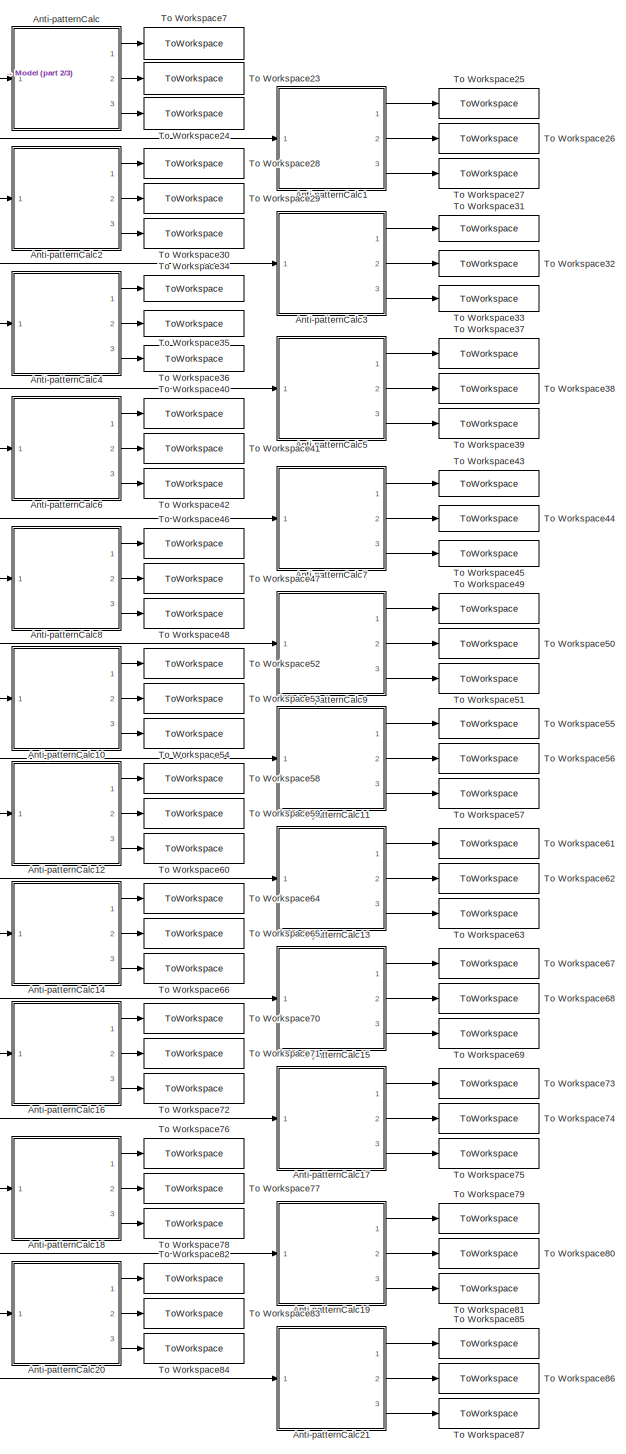
[diagram: root canvas - part 1/3, right side, full height]
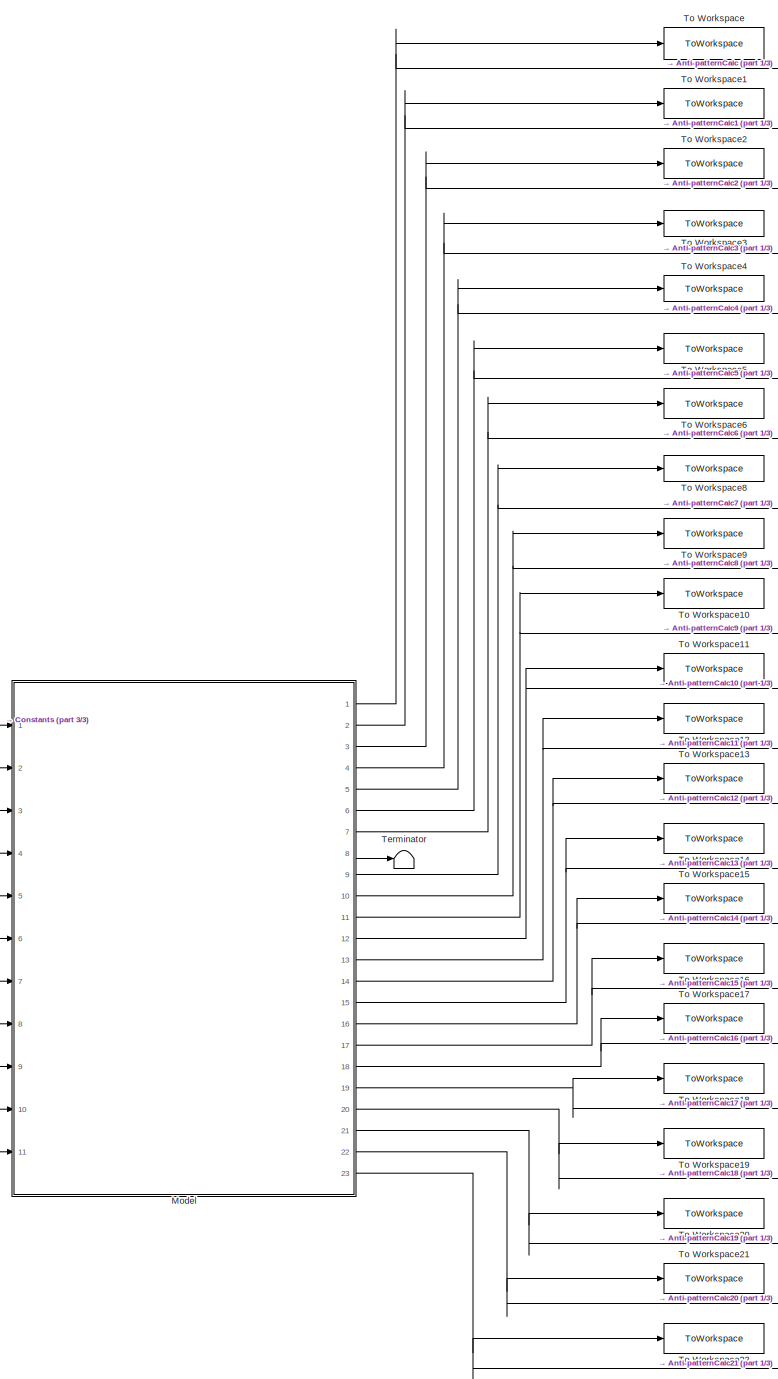
[diagram: root canvas - part 2/3, center side, full height]
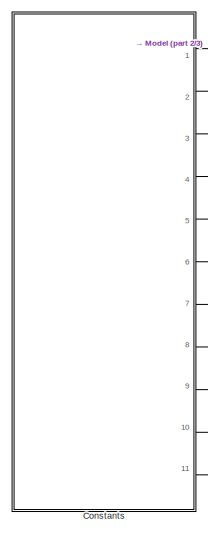
[diagram: root canvas - part 3/3, middle left region]
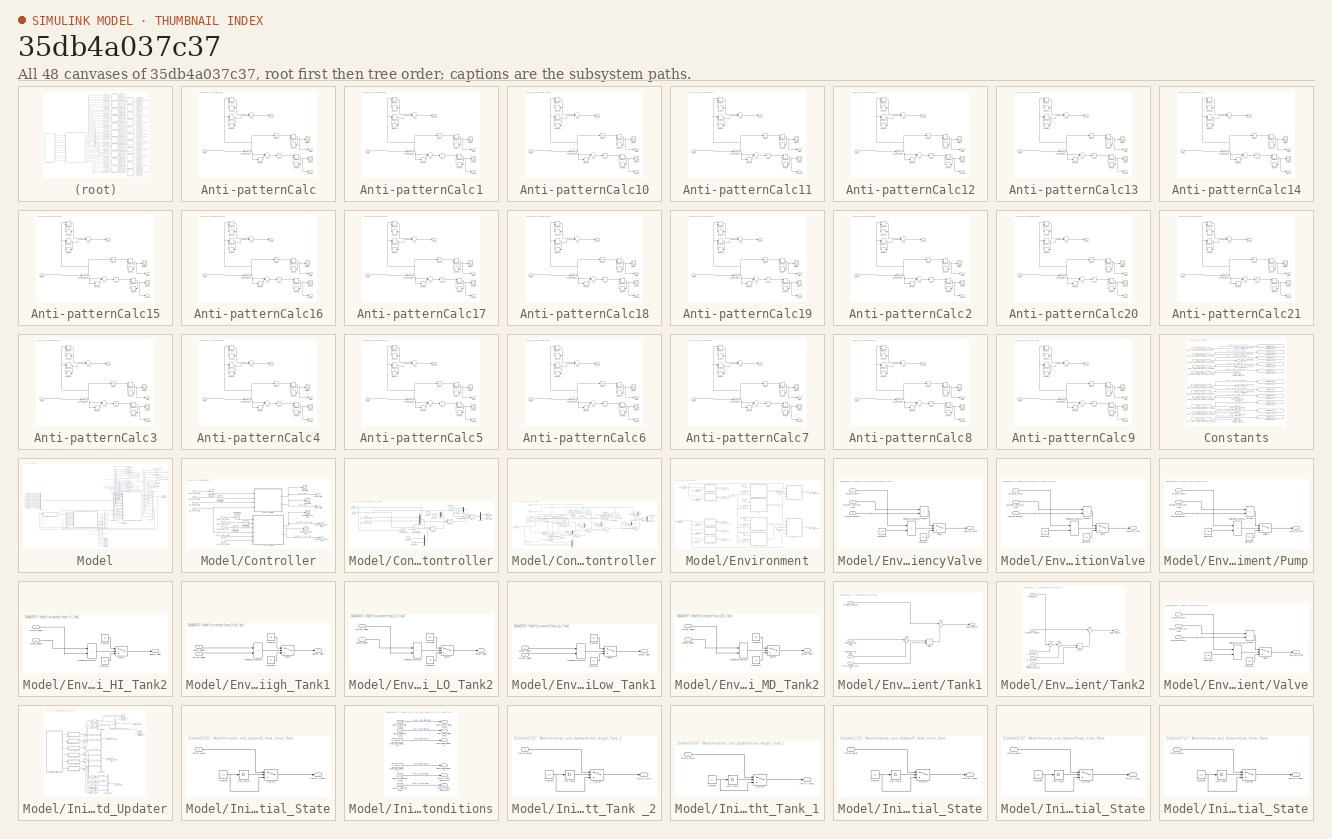
[diagram: thumbnail index - all 48 canvases of the model, root first then tree order]
MODEL slx_35db4a037c37
KIND model
CONFIG AbsTol = auto
CONFIG EnableMultiTasking = on
CONFIG FixedStep = 0.1
CONFIG MaxStep = auto
CONFIG MinStep = auto
CONFIG RelTol = 1e-3
CONFIG SampleTimeConstraint = Unconstrained
CONFIG Solver = FixedStepAuto
CONFIG SolverName = FixedStepAuto
CONFIG StartTime = 0.0
CONFIG StopTime = simTime
WORKSPACE source: MAT-file member
WORKSPACE F = [0 0]
BLOCK [SubSystem] Anti-patternCalc
  Ports = [1, 3]
  RequestExecContextInheritance = off
  Variant = off
BLOCK [Abs] Anti-patternCalc/Abs2
  SaturateOnIntegerOverflow = off
BLOCK [Abs] Anti-patternCalc/Abs3
  SaturateOnIntegerOverflow = off
BLOCK [Sum] Anti-patternCalc/Add1
  InputSameDT = off
  Inputs = +-
  OutDataTypeStr = Inherit: Inherit via internal rule
  Ports = [2, 1]
  SaturateOnIntegerOverflow = off
BLOCK [Sum] Anti-patternCalc/Add2
  InputSameDT = off
  Inputs = +-
  OutDataTypeStr = Inherit: Inherit via internal rule
  Ports = [2, 1]
  SaturateOnIntegerOverflow = off
BLOCK [Outport] Anti-patternCalc/Derivative
  IconDisplay = Port number
  Port = 2
BLOCK [Outport] Anti-patternCalc/Infinite
  IconDisplay = Port number
BLOCK [Scope] Anti-patternCalc/Infinite1
  NumInputPorts = 1
  Ports = [1]
  ScopeSpecificationString = Simulink.scopes.TimeScopeBlockCfg('CurrentConfiguration', extmgr.ConfigurationSet(extmgr.Configuration('Core','General UI',true),extmgr.Configuration('Core','Source UI',true),extmgr.Configuration('Sources','WiredSimulink',true,'DataLoggingVariableName','ScopeData2','DataLoggingSaveFormat','StructureWithTime','DataLoggingDecimation','1','DataLoggingDecimateData',true),extmgr.Configuration('Visuals'...<+1591ch>  <repeated x22 — deduplicated; at blocks: Infinite1>
BLOCK [Outport] Anti-patternCalc/MaxMin
  IconDisplay = Port number
  Port = 3
BLOCK [Memory] Anti-patternCalc/Memory3
BLOCK [Memory] Anti-patternCalc/Memory4
BLOCK [Memory] Anti-patternCalc/Memory5
BLOCK [Memory] Anti-patternCalc/Memory6
BLOCK [Memory] Anti-patternCalc/Memory7
BLOCK [MinMax] Anti-patternCalc/MinMax2
  Function = max
  InputSameDT = off
  Inputs = 2
  Ports = [2, 1]
  SaturateOnIntegerOverflow = off
BLOCK [MinMax] Anti-patternCalc/MinMax3
  Function = max
  InputSameDT = off
  Inputs = 2
  Ports = [2, 1]
  SaturateOnIntegerOverflow = off
BLOCK [MinMax] Anti-patternCalc/MinMax4
  Function = max
  InputSameDT = off
  Inputs = 2
  Ports = [2, 1]
  SaturateOnIntegerOverflow = off
BLOCK [MinMax] Anti-patternCalc/MinMax5
  InputSameDT = off
  Inputs = 2
  Ports = [2, 1]
  SaturateOnIntegerOverflow = off
BLOCK [Inport] Anti-patternCalc/OutSig
  IconDisplay = Port number
BLOCK [RateTransition] Anti-patternCalc/Rate Transition3
BLOCK [Scope] Anti-patternCalc/derive1
  NumInputPorts = 1
  Ports = [1]
  ScopeSpecificationString = Simulink.scopes.TimeScopeBlockCfg('CurrentConfiguration', extmgr.ConfigurationSet(extmgr.Configuration('Core','General UI',true),extmgr.Configuration('Core','Source UI',true),extmgr.Configuration('Sources','WiredSimulink',true,'DataLoggingVariableName','ScopeData4','DataLoggingSaveFormat','StructureWithTime','DataLoggingDecimation','1','DataLoggingDecimateData',true),extmgr.Configuration('Visuals'...<+1700ch>  <repeated x22 — deduplicated; at blocks: derive1>
BLOCK [SubSystem] Anti-patternCalc1
  Ports = [1, 3]
  RequestExecContextInheritance = off
  Variant = off
BLOCK [Abs] Anti-patternCalc1/Abs2
  SaturateOnIntegerOverflow = off
BLOCK [Abs] Anti-patternCalc1/Abs3
  SaturateOnIntegerOverflow = off
BLOCK [Sum] Anti-patternCalc1/Add1
  InputSameDT = off
  Inputs = +-
  OutDataTypeStr = Inherit: Inherit via internal rule
  Ports = [2, 1]
  SaturateOnIntegerOverflow = off
BLOCK [Sum] Anti-patternCalc1/Add2
  InputSameDT = off
  Inputs = +-
  OutDataTypeStr = Inherit: Inherit via internal rule
  Ports = [2, 1]
  SaturateOnIntegerOverflow = off
BLOCK [Outport] Anti-patternCalc1/Derivative
  IconDisplay = Port number
  Port = 2
BLOCK [Outport] Anti-patternCalc1/Infinite
  IconDisplay = Port number
BLOCK [Scope] Anti-patternCalc1/Infinite1
  NumInputPorts = 1
  Ports = [1]
BLOCK [Outport] Anti-patternCalc1/MaxMin
  IconDisplay = Port number
  Port = 3
BLOCK [Memory] Anti-patternCalc1/Memory3
BLOCK [Memory] Anti-patternCalc1/Memory4
BLOCK [Memory] Anti-patternCalc1/Memory5
BLOCK [Memory] Anti-patternCalc1/Memory6
BLOCK [Memory] Anti-patternCalc1/Memory7
BLOCK [MinMax] Anti-patternCalc1/MinMax2
  Function = max
  InputSameDT = off
  Inputs = 2
  Ports = [2, 1]
  SaturateOnIntegerOverflow = off
BLOCK [MinMax] Anti-patternCalc1/MinMax3
  Function = max
  InputSameDT = off
  Inputs = 2
  Ports = [2, 1]
  SaturateOnIntegerOverflow = off
BLOCK [MinMax] Anti-patternCalc1/MinMax4
  Function = max
  InputSameDT = off
  Inputs = 2
  Ports = [2, 1]
  SaturateOnIntegerOverflow = off
BLOCK [MinMax] Anti-patternCalc1/MinMax5
  InputSameDT = off
  Inputs = 2
  Ports = [2, 1]
  SaturateOnIntegerOverflow = off
BLOCK [Inport] Anti-patternCalc1/OutSig
  IconDisplay = Port number
BLOCK [RateTransition] Anti-patternCalc1/Rate Transition3
BLOCK [Scope] Anti-patternCalc1/derive1
  NumInputPorts = 1
  Ports = [1]
BLOCK [SubSystem] Anti-patternCalc10
  Ports = [1, 3]
  RequestExecContextInheritance = off
  Variant = off
BLOCK [Abs] Anti-patternCalc10/Abs2
  SaturateOnIntegerOverflow = off
BLOCK [Abs] Anti-patternCalc10/Abs3
  SaturateOnIntegerOverflow = off
BLOCK [Sum] Anti-patternCalc10/Add1
  InputSameDT = off
  Inputs = +-
  OutDataTypeStr = Inherit: Inherit via internal rule
  Ports = [2, 1]
  SaturateOnIntegerOverflow = off
BLOCK [Sum] Anti-patternCalc10/Add2
  InputSameDT = off
  Inputs = +-
  OutDataTypeStr = Inherit: Inherit via internal rule
  Ports = [2, 1]
  SaturateOnIntegerOverflow = off
BLOCK [Outport] Anti-patternCalc10/Derivative
  IconDisplay = Port number
  Port = 2
BLOCK [Outport] Anti-patternCalc10/Infinite
  IconDisplay = Port number
BLOCK [Scope] Anti-patternCalc10/Infinite1
  NumInputPorts = 1
  Ports = [1]
BLOCK [Outport] Anti-patternCalc10/MaxMin
  IconDisplay = Port number
  Port = 3
BLOCK [Memory] Anti-patternCalc10/Memory3
BLOCK [Memory] Anti-patternCalc10/Memory4
BLOCK [Memory] Anti-patternCalc10/Memory5
BLOCK [Memory] Anti-patternCalc10/Memory6
BLOCK [Memory] Anti-patternCalc10/Memory7
BLOCK [MinMax] Anti-patternCalc10/MinMax2
  Function = max
  InputSameDT = off
  Inputs = 2
  Ports = [2, 1]
  SaturateOnIntegerOverflow = off
BLOCK [MinMax] Anti-patternCalc10/MinMax3
  Function = max
  InputSameDT = off
  Inputs = 2
  Ports = [2, 1]
  SaturateOnIntegerOverflow = off
BLOCK [MinMax] Anti-patternCalc10/MinMax4
  Function = max
  InputSameDT = off
  Inputs = 2
  Ports = [2, 1]
  SaturateOnIntegerOverflow = off
BLOCK [MinMax] Anti-patternCalc10/MinMax5
  InputSameDT = off
  Inputs = 2
  Ports = [2, 1]
  SaturateOnIntegerOverflow = off
BLOCK [Inport] Anti-patternCalc10/OutSig
  IconDisplay = Port number
BLOCK [RateTransition] Anti-patternCalc10/Rate Transition3
BLOCK [Scope] Anti-patternCalc10/derive1
  NumInputPorts = 1
  Ports = [1]
BLOCK [SubSystem] Anti-patternCalc11
  Ports = [1, 3]
  RequestExecContextInheritance = off
  Variant = off
BLOCK [Abs] Anti-patternCalc11/Abs2
  SaturateOnIntegerOverflow = off
BLOCK [Abs] Anti-patternCalc11/Abs3
  SaturateOnIntegerOverflow = off
BLOCK [Sum] Anti-patternCalc11/Add1
  InputSameDT = off
  Inputs = +-
  OutDataTypeStr = Inherit: Inherit via internal rule
  Ports = [2, 1]
  SaturateOnIntegerOverflow = off
BLOCK [Sum] Anti-patternCalc11/Add2
  InputSameDT = off
  Inputs = +-
  OutDataTypeStr = Inherit: Inherit via internal rule
  Ports = [2, 1]
  SaturateOnIntegerOverflow = off
BLOCK [Outport] Anti-patternCalc11/Derivative
  IconDisplay = Port number
  Port = 2
BLOCK [Outport] Anti-patternCalc11/Infinite
  IconDisplay = Port number
BLOCK [Scope] Anti-patternCalc11/Infinite1
  NumInputPorts = 1
  Ports = [1]
BLOCK [Outport] Anti-patternCalc11/MaxMin
  IconDisplay = Port number
  Port = 3
BLOCK [Memory] Anti-patternCalc11/Memory3
BLOCK [Memory] Anti-patternCalc11/Memory4
BLOCK [Memory] Anti-patternCalc11/Memory5
BLOCK [Memory] Anti-patternCalc11/Memory6
BLOCK [Memory] Anti-patternCalc11/Memory7
BLOCK [MinMax] Anti-patternCalc11/MinMax2
  Function = max
  InputSameDT = off
  Inputs = 2
  Ports = [2, 1]
  SaturateOnIntegerOverflow = off
BLOCK [MinMax] Anti-patternCalc11/MinMax3
  Function = max
  InputSameDT = off
  Inputs = 2
  Ports = [2, 1]
  SaturateOnIntegerOverflow = off
BLOCK [MinMax] Anti-patternCalc11/MinMax4
  Function = max
  InputSameDT = off
  Inputs = 2
  Ports = [2, 1]
  SaturateOnIntegerOverflow = off
BLOCK [MinMax] Anti-patternCalc11/MinMax5
  InputSameDT = off
  Inputs = 2
  Ports = [2, 1]
  SaturateOnIntegerOverflow = off
BLOCK [Inport] Anti-patternCalc11/OutSig
  IconDisplay = Port number
BLOCK [RateTransition] Anti-patternCalc11/Rate Transition3
BLOCK [Scope] Anti-patternCalc11/derive1
  NumInputPorts = 1
  Ports = [1]
BLOCK [SubSystem] Anti-patternCalc12
  Ports = [1, 3]
  RequestExecContextInheritance = off
  Variant = off
BLOCK [Abs] Anti-patternCalc12/Abs2
  SaturateOnIntegerOverflow = off
BLOCK [Abs] Anti-patternCalc12/Abs3
  SaturateOnIntegerOverflow = off
BLOCK [Sum] Anti-patternCalc12/Add1
  InputSameDT = off
  Inputs = +-
  OutDataTypeStr = Inherit: Inherit via internal rule
  Ports = [2, 1]
  SaturateOnIntegerOverflow = off
BLOCK [Sum] Anti-patternCalc12/Add2
  InputSameDT = off
  Inputs = +-
  OutDataTypeStr = Inherit: Inherit via internal rule
  Ports = [2, 1]
  SaturateOnIntegerOverflow = off
BLOCK [Outport] Anti-patternCalc12/Derivative
  IconDisplay = Port number
  Port = 2
BLOCK [Outport] Anti-patternCalc12/Infinite
  IconDisplay = Port number
BLOCK [Scope] Anti-patternCalc12/Infinite1
  NumInputPorts = 1
  Ports = [1]
BLOCK [Outport] Anti-patternCalc12/MaxMin
  IconDisplay = Port number
  Port = 3
BLOCK [Memory] Anti-patternCalc12/Memory3
BLOCK [Memory] Anti-patternCalc12/Memory4
BLOCK [Memory] Anti-patternCalc12/Memory5
BLOCK [Memory] Anti-patternCalc12/Memory6
BLOCK [Memory] Anti-patternCalc12/Memory7
BLOCK [MinMax] Anti-patternCalc12/MinMax2
  Function = max
  InputSameDT = off
  Inputs = 2
  Ports = [2, 1]
  SaturateOnIntegerOverflow = off
BLOCK [MinMax] Anti-patternCalc12/MinMax3
  Function = max
  InputSameDT = off
  Inputs = 2
  Ports = [2, 1]
  SaturateOnIntegerOverflow = off
BLOCK [MinMax] Anti-patternCalc12/MinMax4
  Function = max
  InputSameDT = off
  Inputs = 2
  Ports = [2, 1]
  SaturateOnIntegerOverflow = off
BLOCK [MinMax] Anti-patternCalc12/MinMax5
  InputSameDT = off
  Inputs = 2
  Ports = [2, 1]
  SaturateOnIntegerOverflow = off
BLOCK [Inport] Anti-patternCalc12/OutSig
  IconDisplay = Port number
BLOCK [RateTransition] Anti-patternCalc12/Rate Transition3
BLOCK [Scope] Anti-patternCalc12/derive1
  NumInputPorts = 1
  Ports = [1]
BLOCK [SubSystem] Anti-patternCalc13
  Ports = [1, 3]
  RequestExecContextInheritance = off
  Variant = off
BLOCK [Abs] Anti-patternCalc13/Abs2
  SaturateOnIntegerOverflow = off
BLOCK [Abs] Anti-patternCalc13/Abs3
  SaturateOnIntegerOverflow = off
BLOCK [Sum] Anti-patternCalc13/Add1
  InputSameDT = off
  Inputs = +-
  OutDataTypeStr = Inherit: Inherit via internal rule
  Ports = [2, 1]
  SaturateOnIntegerOverflow = off
BLOCK [Sum] Anti-patternCalc13/Add2
  InputSameDT = off
  Inputs = +-
  OutDataTypeStr = Inherit: Inherit via internal rule
  Ports = [2, 1]
  SaturateOnIntegerOverflow = off
BLOCK [Outport] Anti-patternCalc13/Derivative
  IconDisplay = Port number
  Port = 2
BLOCK [Outport] Anti-patternCalc13/Infinite
  IconDisplay = Port number
BLOCK [Scope] Anti-patternCalc13/Infinite1
  NumInputPorts = 1
  Ports = [1]
BLOCK [Outport] Anti-patternCalc13/MaxMin
  IconDisplay = Port number
  Port = 3
BLOCK [Memory] Anti-patternCalc13/Memory3
BLOCK [Memory] Anti-patternCalc13/Memory4
BLOCK [Memory] Anti-patternCalc13/Memory5
BLOCK [Memory] Anti-patternCalc13/Memory6
BLOCK [Memory] Anti-patternCalc13/Memory7
BLOCK [MinMax] Anti-patternCalc13/MinMax2
  Function = max
  InputSameDT = off
  Inputs = 2
  Ports = [2, 1]
  SaturateOnIntegerOverflow = off
BLOCK [MinMax] Anti-patternCalc13/MinMax3
  Function = max
  InputSameDT = off
  Inputs = 2
  Ports = [2, 1]
  SaturateOnIntegerOverflow = off
BLOCK [MinMax] Anti-patternCalc13/MinMax4
  Function = max
  InputSameDT = off
  Inputs = 2
  Ports = [2, 1]
  SaturateOnIntegerOverflow = off
BLOCK [MinMax] Anti-patternCalc13/MinMax5
  InputSameDT = off
  Inputs = 2
  Ports = [2, 1]
  SaturateOnIntegerOverflow = off
BLOCK [Inport] Anti-patternCalc13/OutSig
  IconDisplay = Port number
BLOCK [RateTransition] Anti-patternCalc13/Rate Transition3
BLOCK [Scope] Anti-patternCalc13/derive1
  NumInputPorts = 1
  Ports = [1]
BLOCK [SubSystem] Anti-patternCalc14
  Ports = [1, 3]
  RequestExecContextInheritance = off
  Variant = off
BLOCK [Abs] Anti-patternCalc14/Abs2
  SaturateOnIntegerOverflow = off
BLOCK [Abs] Anti-patternCalc14/Abs3
  SaturateOnIntegerOverflow = off
BLOCK [Sum] Anti-patternCalc14/Add1
  InputSameDT = off
  Inputs = +-
  OutDataTypeStr = Inherit: Inherit via internal rule
  Ports = [2, 1]
  SaturateOnIntegerOverflow = off
BLOCK [Sum] Anti-patternCalc14/Add2
  InputSameDT = off
  Inputs = +-
  OutDataTypeStr = Inherit: Inherit via internal rule
  Ports = [2, 1]
  SaturateOnIntegerOverflow = off
BLOCK [Outport] Anti-patternCalc14/Derivative
  IconDisplay = Port number
  Port = 2
BLOCK [Outport] Anti-patternCalc14/Infinite
  IconDisplay = Port number
BLOCK [Scope] Anti-patternCalc14/Infinite1
  NumInputPorts = 1
  Ports = [1]
BLOCK [Outport] Anti-patternCalc14/MaxMin
  IconDisplay = Port number
  Port = 3
BLOCK [Memory] Anti-patternCalc14/Memory3
BLOCK [Memory] Anti-patternCalc14/Memory4
BLOCK [Memory] Anti-patternCalc14/Memory5
BLOCK [Memory] Anti-patternCalc14/Memory6
BLOCK [Memory] Anti-patternCalc14/Memory7
BLOCK [MinMax] Anti-patternCalc14/MinMax2
  Function = max
  InputSameDT = off
  Inputs = 2
  Ports = [2, 1]
  SaturateOnIntegerOverflow = off
BLOCK [MinMax] Anti-patternCalc14/MinMax3
  Function = max
  InputSameDT = off
  Inputs = 2
  Ports = [2, 1]
  SaturateOnIntegerOverflow = off
BLOCK [MinMax] Anti-patternCalc14/MinMax4
  Function = max
  InputSameDT = off
  Inputs = 2
  Ports = [2, 1]
  SaturateOnIntegerOverflow = off
BLOCK [MinMax] Anti-patternCalc14/MinMax5
  InputSameDT = off
  Inputs = 2
  Ports = [2, 1]
  SaturateOnIntegerOverflow = off
BLOCK [Inport] Anti-patternCalc14/OutSig
  IconDisplay = Port number
BLOCK [RateTransition] Anti-patternCalc14/Rate Transition3
BLOCK [Scope] Anti-patternCalc14/derive1
  NumInputPorts = 1
  Ports = [1]
BLOCK [SubSystem] Anti-patternCalc15
  Ports = [1, 3]
  RequestExecContextInheritance = off
  Variant = off
BLOCK [Abs] Anti-patternCalc15/Abs2
  SaturateOnIntegerOverflow = off
BLOCK [Abs] Anti-patternCalc15/Abs3
  SaturateOnIntegerOverflow = off
BLOCK [Sum] Anti-patternCalc15/Add1
  InputSameDT = off
  Inputs = +-
  OutDataTypeStr = Inherit: Inherit via internal rule
  Ports = [2, 1]
  SaturateOnIntegerOverflow = off
BLOCK [Sum] Anti-patternCalc15/Add2
  InputSameDT = off
  Inputs = +-
  OutDataTypeStr = Inherit: Inherit via internal rule
  Ports = [2, 1]
  SaturateOnIntegerOverflow = off
BLOCK [Outport] Anti-patternCalc15/Derivative
  IconDisplay = Port number
  Port = 2
BLOCK [Outport] Anti-patternCalc15/Infinite
  IconDisplay = Port number
BLOCK [Scope] Anti-patternCalc15/Infinite1
  NumInputPorts = 1
  Ports = [1]
BLOCK [Outport] Anti-patternCalc15/MaxMin
  IconDisplay = Port number
  Port = 3
BLOCK [Memory] Anti-patternCalc15/Memory3
BLOCK [Memory] Anti-patternCalc15/Memory4
BLOCK [Memory] Anti-patternCalc15/Memory5
BLOCK [Memory] Anti-patternCalc15/Memory6
BLOCK [Memory] Anti-patternCalc15/Memory7
BLOCK [MinMax] Anti-patternCalc15/MinMax2
  Function = max
  InputSameDT = off
  Inputs = 2
  Ports = [2, 1]
  SaturateOnIntegerOverflow = off
BLOCK [MinMax] Anti-patternCalc15/MinMax3
  Function = max
  InputSameDT = off
  Inputs = 2
  Ports = [2, 1]
  SaturateOnIntegerOverflow = off
BLOCK [MinMax] Anti-patternCalc15/MinMax4
  Function = max
  InputSameDT = off
  Inputs = 2
  Ports = [2, 1]
  SaturateOnIntegerOverflow = off
BLOCK [MinMax] Anti-patternCalc15/MinMax5
  InputSameDT = off
  Inputs = 2
  Ports = [2, 1]
  SaturateOnIntegerOverflow = off
BLOCK [Inport] Anti-patternCalc15/OutSig
  IconDisplay = Port number
BLOCK [RateTransition] Anti-patternCalc15/Rate Transition3
BLOCK [Scope] Anti-patternCalc15/derive1
  NumInputPorts = 1
  Ports = [1]
BLOCK [SubSystem] Anti-patternCalc16
  Ports = [1, 3]
  RequestExecContextInheritance = off
  Variant = off
BLOCK [Abs] Anti-patternCalc16/Abs2
  SaturateOnIntegerOverflow = off
BLOCK [Abs] Anti-patternCalc16/Abs3
  SaturateOnIntegerOverflow = off
BLOCK [Sum] Anti-patternCalc16/Add1
  InputSameDT = off
  Inputs = +-
  OutDataTypeStr = Inherit: Inherit via internal rule
  Ports = [2, 1]
  SaturateOnIntegerOverflow = off
BLOCK [Sum] Anti-patternCalc16/Add2
  InputSameDT = off
  Inputs = +-
  OutDataTypeStr = Inherit: Inherit via internal rule
  Ports = [2, 1]
  SaturateOnIntegerOverflow = off
BLOCK [Outport] Anti-patternCalc16/Derivative
  IconDisplay = Port number
  Port = 2
BLOCK [Outport] Anti-patternCalc16/Infinite
  IconDisplay = Port number
BLOCK [Scope] Anti-patternCalc16/Infinite1
  NumInputPorts = 1
  Ports = [1]
BLOCK [Outport] Anti-patternCalc16/MaxMin
  IconDisplay = Port number
  Port = 3
BLOCK [Memory] Anti-patternCalc16/Memory3
BLOCK [Memory] Anti-patternCalc16/Memory4
BLOCK [Memory] Anti-patternCalc16/Memory5
BLOCK [Memory] Anti-patternCalc16/Memory6
BLOCK [Memory] Anti-patternCalc16/Memory7
BLOCK [MinMax] Anti-patternCalc16/MinMax2
  Function = max
  InputSameDT = off
  Inputs = 2
  Ports = [2, 1]
  SaturateOnIntegerOverflow = off
BLOCK [MinMax] Anti-patternCalc16/MinMax3
  Function = max
  InputSameDT = off
  Inputs = 2
  Ports = [2, 1]
  SaturateOnIntegerOverflow = off
BLOCK [MinMax] Anti-patternCalc16/MinMax4
  Function = max
  InputSameDT = off
  Inputs = 2
  Ports = [2, 1]
  SaturateOnIntegerOverflow = off
BLOCK [MinMax] Anti-patternCalc16/MinMax5
  InputSameDT = off
  Inputs = 2
  Ports = [2, 1]
  SaturateOnIntegerOverflow = off
BLOCK [Inport] Anti-patternCalc16/OutSig
  IconDisplay = Port number
BLOCK [RateTransition] Anti-patternCalc16/Rate Transition3
BLOCK [Scope] Anti-patternCalc16/derive1
  NumInputPorts = 1
  Ports = [1]
BLOCK [SubSystem] Anti-patternCalc17
  Ports = [1, 3]
  RequestExecContextInheritance = off
  Variant = off
BLOCK [Abs] Anti-patternCalc17/Abs2
  SaturateOnIntegerOverflow = off
BLOCK [Abs] Anti-patternCalc17/Abs3
  SaturateOnIntegerOverflow = off
BLOCK [Sum] Anti-patternCalc17/Add1
  InputSameDT = off
  Inputs = +-
  OutDataTypeStr = Inherit: Inherit via internal rule
  Ports = [2, 1]
  SaturateOnIntegerOverflow = off
BLOCK [Sum] Anti-patternCalc17/Add2
  InputSameDT = off
  Inputs = +-
  OutDataTypeStr = Inherit: Inherit via internal rule
  Ports = [2, 1]
  SaturateOnIntegerOverflow = off
BLOCK [Outport] Anti-patternCalc17/Derivative
  IconDisplay = Port number
  Port = 2
BLOCK [Outport] Anti-patternCalc17/Infinite
  IconDisplay = Port number
BLOCK [Scope] Anti-patternCalc17/Infinite1
  NumInputPorts = 1
  Ports = [1]
BLOCK [Outport] Anti-patternCalc17/MaxMin
  IconDisplay = Port number
  Port = 3
BLOCK [Memory] Anti-patternCalc17/Memory3
BLOCK [Memory] Anti-patternCalc17/Memory4
BLOCK [Memory] Anti-patternCalc17/Memory5
BLOCK [Memory] Anti-patternCalc17/Memory6
BLOCK [Memory] Anti-patternCalc17/Memory7
BLOCK [MinMax] Anti-patternCalc17/MinMax2
  Function = max
  InputSameDT = off
  Inputs = 2
  Ports = [2, 1]
  SaturateOnIntegerOverflow = off
BLOCK [MinMax] Anti-patternCalc17/MinMax3
  Function = max
  InputSameDT = off
  Inputs = 2
  Ports = [2, 1]
  SaturateOnIntegerOverflow = off
BLOCK [MinMax] Anti-patternCalc17/MinMax4
  Function = max
  InputSameDT = off
  Inputs = 2
  Ports = [2, 1]
  SaturateOnIntegerOverflow = off
BLOCK [MinMax] Anti-patternCalc17/MinMax5
  InputSameDT = off
  Inputs = 2
  Ports = [2, 1]
  SaturateOnIntegerOverflow = off
BLOCK [Inport] Anti-patternCalc17/OutSig
  IconDisplay = Port number
BLOCK [RateTransition] Anti-patternCalc17/Rate Transition3
BLOCK [Scope] Anti-patternCalc17/derive1
  NumInputPorts = 1
  Ports = [1]
BLOCK [SubSystem] Anti-patternCalc18
  Ports = [1, 3]
  RequestExecContextInheritance = off
  Variant = off
BLOCK [Abs] Anti-patternCalc18/Abs2
  SaturateOnIntegerOverflow = off
BLOCK [Abs] Anti-patternCalc18/Abs3
  SaturateOnIntegerOverflow = off
BLOCK [Sum] Anti-patternCalc18/Add1
  InputSameDT = off
  Inputs = +-
  OutDataTypeStr = Inherit: Inherit via internal rule
  Ports = [2, 1]
  SaturateOnIntegerOverflow = off
BLOCK [Sum] Anti-patternCalc18/Add2
  InputSameDT = off
  Inputs = +-
  OutDataTypeStr = Inherit: Inherit via internal rule
  Ports = [2, 1]
  SaturateOnIntegerOverflow = off
BLOCK [Outport] Anti-patternCalc18/Derivative
  IconDisplay = Port number
  Port = 2
BLOCK [Outport] Anti-patternCalc18/Infinite
  IconDisplay = Port number
BLOCK [Scope] Anti-patternCalc18/Infinite1
  NumInputPorts = 1
  Ports = [1]
BLOCK [Outport] Anti-patternCalc18/MaxMin
  IconDisplay = Port number
  Port = 3
BLOCK [Memory] Anti-patternCalc18/Memory3
BLOCK [Memory] Anti-patternCalc18/Memory4
BLOCK [Memory] Anti-patternCalc18/Memory5
BLOCK [Memory] Anti-patternCalc18/Memory6
BLOCK [Memory] Anti-patternCalc18/Memory7
BLOCK [MinMax] Anti-patternCalc18/MinMax2
  Function = max
  InputSameDT = off
  Inputs = 2
  Ports = [2, 1]
  SaturateOnIntegerOverflow = off
BLOCK [MinMax] Anti-patternCalc18/MinMax3
  Function = max
  InputSameDT = off
  Inputs = 2
  Ports = [2, 1]
  SaturateOnIntegerOverflow = off
BLOCK [MinMax] Anti-patternCalc18/MinMax4
  Function = max
  InputSameDT = off
  Inputs = 2
  Ports = [2, 1]
  SaturateOnIntegerOverflow = off
BLOCK [MinMax] Anti-patternCalc18/MinMax5
  InputSameDT = off
  Inputs = 2
  Ports = [2, 1]
  SaturateOnIntegerOverflow = off
BLOCK [Inport] Anti-patternCalc18/OutSig
  IconDisplay = Port number
BLOCK [RateTransition] Anti-patternCalc18/Rate Transition3
BLOCK [Scope] Anti-patternCalc18/derive1
  NumInputPorts = 1
  Ports = [1]
BLOCK [SubSystem] Anti-patternCalc19
  Ports = [1, 3]
  RequestExecContextInheritance = off
  Variant = off
BLOCK [Abs] Anti-patternCalc19/Abs2
  SaturateOnIntegerOverflow = off
BLOCK [Abs] Anti-patternCalc19/Abs3
  SaturateOnIntegerOverflow = off
BLOCK [Sum] Anti-patternCalc19/Add1
  InputSameDT = off
  Inputs = +-
  OutDataTypeStr = Inherit: Inherit via internal rule
  Ports = [2, 1]
  SaturateOnIntegerOverflow = off
BLOCK [Sum] Anti-patternCalc19/Add2
  InputSameDT = off
  Inputs = +-
  OutDataTypeStr = Inherit: Inherit via internal rule
  Ports = [2, 1]
  SaturateOnIntegerOverflow = off
BLOCK [Outport] Anti-patternCalc19/Derivative
  IconDisplay = Port number
  Port = 2
BLOCK [Outport] Anti-patternCalc19/Infinite
  IconDisplay = Port number
BLOCK [Scope] Anti-patternCalc19/Infinite1
  NumInputPorts = 1
  Ports = [1]
BLOCK [Outport] Anti-patternCalc19/MaxMin
  IconDisplay = Port number
  Port = 3
BLOCK [Memory] Anti-patternCalc19/Memory3
BLOCK [Memory] Anti-patternCalc19/Memory4
BLOCK [Memory] Anti-patternCalc19/Memory5
BLOCK [Memory] Anti-patternCalc19/Memory6
BLOCK [Memory] Anti-patternCalc19/Memory7
BLOCK [MinMax] Anti-patternCalc19/MinMax2
  Function = max
  InputSameDT = off
  Inputs = 2
  Ports = [2, 1]
  SaturateOnIntegerOverflow = off
BLOCK [MinMax] Anti-patternCalc19/MinMax3
  Function = max
  InputSameDT = off
  Inputs = 2
  Ports = [2, 1]
  SaturateOnIntegerOverflow = off
BLOCK [MinMax] Anti-patternCalc19/MinMax4
  Function = max
  InputSameDT = off
  Inputs = 2
  Ports = [2, 1]
  SaturateOnIntegerOverflow = off
BLOCK [MinMax] Anti-patternCalc19/MinMax5
  InputSameDT = off
  Inputs = 2
  Ports = [2, 1]
  SaturateOnIntegerOverflow = off
BLOCK [Inport] Anti-patternCalc19/OutSig
  IconDisplay = Port number
BLOCK [RateTransition] Anti-patternCalc19/Rate Transition3
BLOCK [Scope] Anti-patternCalc19/derive1
  NumInputPorts = 1
  Ports = [1]
BLOCK [SubSystem] Anti-patternCalc2
  Ports = [1, 3]
  RequestExecContextInheritance = off
  Variant = off
BLOCK [Abs] Anti-patternCalc2/Abs2
  SaturateOnIntegerOverflow = off
BLOCK [Abs] Anti-patternCalc2/Abs3
  SaturateOnIntegerOverflow = off
BLOCK [Sum] Anti-patternCalc2/Add1
  InputSameDT = off
  Inputs = +-
  OutDataTypeStr = Inherit: Inherit via internal rule
  Ports = [2, 1]
  SaturateOnIntegerOverflow = off
BLOCK [Sum] Anti-patternCalc2/Add2
  InputSameDT = off
  Inputs = +-
  OutDataTypeStr = Inherit: Inherit via internal rule
  Ports = [2, 1]
  SaturateOnIntegerOverflow = off
BLOCK [Outport] Anti-patternCalc2/Derivative
  IconDisplay = Port number
  Port = 2
BLOCK [Outport] Anti-patternCalc2/Infinite
  IconDisplay = Port number
BLOCK [Scope] Anti-patternCalc2/Infinite1
  NumInputPorts = 1
  Ports = [1]
BLOCK [Outport] Anti-patternCalc2/MaxMin
  IconDisplay = Port number
  Port = 3
BLOCK [Memory] Anti-patternCalc2/Memory3
BLOCK [Memory] Anti-patternCalc2/Memory4
BLOCK [Memory] Anti-patternCalc2/Memory5
BLOCK [Memory] Anti-patternCalc2/Memory6
BLOCK [Memory] Anti-patternCalc2/Memory7
BLOCK [MinMax] Anti-patternCalc2/MinMax2
  Function = max
  InputSameDT = off
  Inputs = 2
  Ports = [2, 1]
  SaturateOnIntegerOverflow = off
BLOCK [MinMax] Anti-patternCalc2/MinMax3
  Function = max
  InputSameDT = off
  Inputs = 2
  Ports = [2, 1]
  SaturateOnIntegerOverflow = off
BLOCK [MinMax] Anti-patternCalc2/MinMax4
  Function = max
  InputSameDT = off
  Inputs = 2
  Ports = [2, 1]
  SaturateOnIntegerOverflow = off
BLOCK [MinMax] Anti-patternCalc2/MinMax5
  InputSameDT = off
  Inputs = 2
  Ports = [2, 1]
  SaturateOnIntegerOverflow = off
BLOCK [Inport] Anti-patternCalc2/OutSig
  IconDisplay = Port number
BLOCK [RateTransition] Anti-patternCalc2/Rate Transition3
BLOCK [Scope] Anti-patternCalc2/derive1
  NumInputPorts = 1
  Ports = [1]
BLOCK [SubSystem] Anti-patternCalc20
  Ports = [1, 3]
  RequestExecContextInheritance = off
  Variant = off
BLOCK [Abs] Anti-patternCalc20/Abs2
  SaturateOnIntegerOverflow = off
BLOCK [Abs] Anti-patternCalc20/Abs3
  SaturateOnIntegerOverflow = off
BLOCK [Sum] Anti-patternCalc20/Add1
  InputSameDT = off
  Inputs = +-
  OutDataTypeStr = Inherit: Inherit via internal rule
  Ports = [2, 1]
  SaturateOnIntegerOverflow = off
BLOCK [Sum] Anti-patternCalc20/Add2
  InputSameDT = off
  Inputs = +-
  OutDataTypeStr = Inherit: Inherit via internal rule
  Ports = [2, 1]
  SaturateOnIntegerOverflow = off
BLOCK [Outport] Anti-patternCalc20/Derivative
  IconDisplay = Port number
  Port = 2
BLOCK [Outport] Anti-patternCalc20/Infinite
  IconDisplay = Port number
BLOCK [Scope] Anti-patternCalc20/Infinite1
  NumInputPorts = 1
  Ports = [1]
BLOCK [Outport] Anti-patternCalc20/MaxMin
  IconDisplay = Port number
  Port = 3
BLOCK [Memory] Anti-patternCalc20/Memory3
BLOCK [Memory] Anti-patternCalc20/Memory4
BLOCK [Memory] Anti-patternCalc20/Memory5
BLOCK [Memory] Anti-patternCalc20/Memory6
BLOCK [Memory] Anti-patternCalc20/Memory7
BLOCK [MinMax] Anti-patternCalc20/MinMax2
  Function = max
  InputSameDT = off
  Inputs = 2
  Ports = [2, 1]
  SaturateOnIntegerOverflow = off
BLOCK [MinMax] Anti-patternCalc20/MinMax3
  Function = max
  InputSameDT = off
  Inputs = 2
  Ports = [2, 1]
  SaturateOnIntegerOverflow = off
BLOCK [MinMax] Anti-patternCalc20/MinMax4
  Function = max
  InputSameDT = off
  Inputs = 2
  Ports = [2, 1]
  SaturateOnIntegerOverflow = off
BLOCK [MinMax] Anti-patternCalc20/MinMax5
  InputSameDT = off
  Inputs = 2
  Ports = [2, 1]
  SaturateOnIntegerOverflow = off
BLOCK [Inport] Anti-patternCalc20/OutSig
  IconDisplay = Port number
BLOCK [RateTransition] Anti-patternCalc20/Rate Transition3
BLOCK [Scope] Anti-patternCalc20/derive1
  NumInputPorts = 1
  Ports = [1]
BLOCK [SubSystem] Anti-patternCalc21
  Ports = [1, 3]
  RequestExecContextInheritance = off
  Variant = off
BLOCK [Abs] Anti-patternCalc21/Abs2
  SaturateOnIntegerOverflow = off
BLOCK [Abs] Anti-patternCalc21/Abs3
  SaturateOnIntegerOverflow = off
BLOCK [Sum] Anti-patternCalc21/Add1
  InputSameDT = off
  Inputs = +-
  OutDataTypeStr = Inherit: Inherit via internal rule
  Ports = [2, 1]
  SaturateOnIntegerOverflow = off
BLOCK [Sum] Anti-patternCalc21/Add2
  InputSameDT = off
  Inputs = +-
  OutDataTypeStr = Inherit: Inherit via internal rule
  Ports = [2, 1]
  SaturateOnIntegerOverflow = off
BLOCK [Outport] Anti-patternCalc21/Derivative
  IconDisplay = Port number
  Port = 2
BLOCK [Outport] Anti-patternCalc21/Infinite
  IconDisplay = Port number
BLOCK [Scope] Anti-patternCalc21/Infinite1
  NumInputPorts = 1
  Ports = [1]
BLOCK [Outport] Anti-patternCalc21/MaxMin
  IconDisplay = Port number
  Port = 3
BLOCK [Memory] Anti-patternCalc21/Memory3
BLOCK [Memory] Anti-patternCalc21/Memory4
BLOCK [Memory] Anti-patternCalc21/Memory5
BLOCK [Memory] Anti-patternCalc21/Memory6
BLOCK [Memory] Anti-patternCalc21/Memory7
BLOCK [MinMax] Anti-patternCalc21/MinMax2
  Function = max
  InputSameDT = off
  Inputs = 2
  Ports = [2, 1]
  SaturateOnIntegerOverflow = off
BLOCK [MinMax] Anti-patternCalc21/MinMax3
  Function = max
  InputSameDT = off
  Inputs = 2
  Ports = [2, 1]
  SaturateOnIntegerOverflow = off
BLOCK [MinMax] Anti-patternCalc21/MinMax4
  Function = max
  InputSameDT = off
  Inputs = 2
  Ports = [2, 1]
  SaturateOnIntegerOverflow = off
BLOCK [MinMax] Anti-patternCalc21/MinMax5
  InputSameDT = off
  Inputs = 2
  Ports = [2, 1]
  SaturateOnIntegerOverflow = off
BLOCK [Inport] Anti-patternCalc21/OutSig
  IconDisplay = Port number
BLOCK [RateTransition] Anti-patternCalc21/Rate Transition3
BLOCK [Scope] Anti-patternCalc21/derive1
  NumInputPorts = 1
  Ports = [1]
BLOCK [SubSystem] Anti-patternCalc3
  Ports = [1, 3]
  RequestExecContextInheritance = off
  Variant = off
BLOCK [Abs] Anti-patternCalc3/Abs2
  SaturateOnIntegerOverflow = off
BLOCK [Abs] Anti-patternCalc3/Abs3
  SaturateOnIntegerOverflow = off
BLOCK [Sum] Anti-patternCalc3/Add1
  InputSameDT = off
  Inputs = +-
  OutDataTypeStr = Inherit: Inherit via internal rule
  Ports = [2, 1]
  SaturateOnIntegerOverflow = off
BLOCK [Sum] Anti-patternCalc3/Add2
  InputSameDT = off
  Inputs = +-
  OutDataTypeStr = Inherit: Inherit via internal rule
  Ports = [2, 1]
  SaturateOnIntegerOverflow = off
BLOCK [Outport] Anti-patternCalc3/Derivative
  IconDisplay = Port number
  Port = 2
BLOCK [Outport] Anti-patternCalc3/Infinite
  IconDisplay = Port number
BLOCK [Scope] Anti-patternCalc3/Infinite1
  NumInputPorts = 1
  Ports = [1]
BLOCK [Outport] Anti-patternCalc3/MaxMin
  IconDisplay = Port number
  Port = 3
BLOCK [Memory] Anti-patternCalc3/Memory3
BLOCK [Memory] Anti-patternCalc3/Memory4
BLOCK [Memory] Anti-patternCalc3/Memory5
BLOCK [Memory] Anti-patternCalc3/Memory6
BLOCK [Memory] Anti-patternCalc3/Memory7
BLOCK [MinMax] Anti-patternCalc3/MinMax2
  Function = max
  InputSameDT = off
  Inputs = 2
  Ports = [2, 1]
  SaturateOnIntegerOverflow = off
BLOCK [MinMax] Anti-patternCalc3/MinMax3
  Function = max
  InputSameDT = off
  Inputs = 2
  Ports = [2, 1]
  SaturateOnIntegerOverflow = off
BLOCK [MinMax] Anti-patternCalc3/MinMax4
  Function = max
  InputSameDT = off
  Inputs = 2
  Ports = [2, 1]
  SaturateOnIntegerOverflow = off
BLOCK [MinMax] Anti-patternCalc3/MinMax5
  InputSameDT = off
  Inputs = 2
  Ports = [2, 1]
  SaturateOnIntegerOverflow = off
BLOCK [Inport] Anti-patternCalc3/OutSig
  IconDisplay = Port number
BLOCK [RateTransition] Anti-patternCalc3/Rate Transition3
BLOCK [Scope] Anti-patternCalc3/derive1
  NumInputPorts = 1
  Ports = [1]
BLOCK [SubSystem] Anti-patternCalc4
  Ports = [1, 3]
  RequestExecContextInheritance = off
  Variant = off
BLOCK [Abs] Anti-patternCalc4/Abs2
  SaturateOnIntegerOverflow = off
BLOCK [Abs] Anti-patternCalc4/Abs3
  SaturateOnIntegerOverflow = off
BLOCK [Sum] Anti-patternCalc4/Add1
  InputSameDT = off
  Inputs = +-
  OutDataTypeStr = Inherit: Inherit via internal rule
  Ports = [2, 1]
  SaturateOnIntegerOverflow = off
BLOCK [Sum] Anti-patternCalc4/Add2
  InputSameDT = off
  Inputs = +-
  OutDataTypeStr = Inherit: Inherit via internal rule
  Ports = [2, 1]
  SaturateOnIntegerOverflow = off
BLOCK [Outport] Anti-patternCalc4/Derivative
  IconDisplay = Port number
  Port = 2
BLOCK [Outport] Anti-patternCalc4/Infinite
  IconDisplay = Port number
BLOCK [Scope] Anti-patternCalc4/Infinite1
  NumInputPorts = 1
  Ports = [1]
BLOCK [Outport] Anti-patternCalc4/MaxMin
  IconDisplay = Port number
  Port = 3
BLOCK [Memory] Anti-patternCalc4/Memory3
BLOCK [Memory] Anti-patternCalc4/Memory4
BLOCK [Memory] Anti-patternCalc4/Memory5
BLOCK [Memory] Anti-patternCalc4/Memory6
BLOCK [Memory] Anti-patternCalc4/Memory7
BLOCK [MinMax] Anti-patternCalc4/MinMax2
  Function = max
  InputSameDT = off
  Inputs = 2
  Ports = [2, 1]
  SaturateOnIntegerOverflow = off
BLOCK [MinMax] Anti-patternCalc4/MinMax3
  Function = max
  InputSameDT = off
  Inputs = 2
  Ports = [2, 1]
  SaturateOnIntegerOverflow = off
BLOCK [MinMax] Anti-patternCalc4/MinMax4
  Function = max
  InputSameDT = off
  Inputs = 2
  Ports = [2, 1]
  SaturateOnIntegerOverflow = off
BLOCK [MinMax] Anti-patternCalc4/MinMax5
  InputSameDT = off
  Inputs = 2
  Ports = [2, 1]
  SaturateOnIntegerOverflow = off
BLOCK [Inport] Anti-patternCalc4/OutSig
  IconDisplay = Port number
BLOCK [RateTransition] Anti-patternCalc4/Rate Transition3
BLOCK [Scope] Anti-patternCalc4/derive1
  NumInputPorts = 1
  Ports = [1]
BLOCK [SubSystem] Anti-patternCalc5
  Ports = [1, 3]
  RequestExecContextInheritance = off
  Variant = off
BLOCK [Abs] Anti-patternCalc5/Abs2
  SaturateOnIntegerOverflow = off
BLOCK [Abs] Anti-patternCalc5/Abs3
  SaturateOnIntegerOverflow = off
BLOCK [Sum] Anti-patternCalc5/Add1
  InputSameDT = off
  Inputs = +-
  OutDataTypeStr = Inherit: Inherit via internal rule
  Ports = [2, 1]
  SaturateOnIntegerOverflow = off
BLOCK [Sum] Anti-patternCalc5/Add2
  InputSameDT = off
  Inputs = +-
  OutDataTypeStr = Inherit: Inherit via internal rule
  Ports = [2, 1]
  SaturateOnIntegerOverflow = off
BLOCK [Outport] Anti-patternCalc5/Derivative
  IconDisplay = Port number
  Port = 2
BLOCK [Outport] Anti-patternCalc5/Infinite
  IconDisplay = Port number
BLOCK [Scope] Anti-patternCalc5/Infinite1
  NumInputPorts = 1
  Ports = [1]
BLOCK [Outport] Anti-patternCalc5/MaxMin
  IconDisplay = Port number
  Port = 3
BLOCK [Memory] Anti-patternCalc5/Memory3
BLOCK [Memory] Anti-patternCalc5/Memory4
BLOCK [Memory] Anti-patternCalc5/Memory5
BLOCK [Memory] Anti-patternCalc5/Memory6
BLOCK [Memory] Anti-patternCalc5/Memory7
BLOCK [MinMax] Anti-patternCalc5/MinMax2
  Function = max
  InputSameDT = off
  Inputs = 2
  Ports = [2, 1]
  SaturateOnIntegerOverflow = off
BLOCK [MinMax] Anti-patternCalc5/MinMax3
  Function = max
  InputSameDT = off
  Inputs = 2
  Ports = [2, 1]
  SaturateOnIntegerOverflow = off
BLOCK [MinMax] Anti-patternCalc5/MinMax4
  Function = max
  InputSameDT = off
  Inputs = 2
  Ports = [2, 1]
  SaturateOnIntegerOverflow = off
BLOCK [MinMax] Anti-patternCalc5/MinMax5
  InputSameDT = off
  Inputs = 2
  Ports = [2, 1]
  SaturateOnIntegerOverflow = off
BLOCK [Inport] Anti-patternCalc5/OutSig
  IconDisplay = Port number
BLOCK [RateTransition] Anti-patternCalc5/Rate Transition3
BLOCK [Scope] Anti-patternCalc5/derive1
  NumInputPorts = 1
  Ports = [1]
BLOCK [SubSystem] Anti-patternCalc6
  Ports = [1, 3]
  RequestExecContextInheritance = off
  Variant = off
BLOCK [Abs] Anti-patternCalc6/Abs2
  SaturateOnIntegerOverflow = off
BLOCK [Abs] Anti-patternCalc6/Abs3
  SaturateOnIntegerOverflow = off
BLOCK [Sum] Anti-patternCalc6/Add1
  InputSameDT = off
  Inputs = +-
  OutDataTypeStr = Inherit: Inherit via internal rule
  Ports = [2, 1]
  SaturateOnIntegerOverflow = off
BLOCK [Sum] Anti-patternCalc6/Add2
  InputSameDT = off
  Inputs = +-
  OutDataTypeStr = Inherit: Inherit via internal rule
  Ports = [2, 1]
  SaturateOnIntegerOverflow = off
BLOCK [Outport] Anti-patternCalc6/Derivative
  IconDisplay = Port number
  Port = 2
BLOCK [Outport] Anti-patternCalc6/Infinite
  IconDisplay = Port number
BLOCK [Scope] Anti-patternCalc6/Infinite1
  NumInputPorts = 1
  Ports = [1]
BLOCK [Outport] Anti-patternCalc6/MaxMin
  IconDisplay = Port number
  Port = 3
BLOCK [Memory] Anti-patternCalc6/Memory3
BLOCK [Memory] Anti-patternCalc6/Memory4
BLOCK [Memory] Anti-patternCalc6/Memory5
BLOCK [Memory] Anti-patternCalc6/Memory6
BLOCK [Memory] Anti-patternCalc6/Memory7
BLOCK [MinMax] Anti-patternCalc6/MinMax2
  Function = max
  InputSameDT = off
  Inputs = 2
  Ports = [2, 1]
  SaturateOnIntegerOverflow = off
BLOCK [MinMax] Anti-patternCalc6/MinMax3
  Function = max
  InputSameDT = off
  Inputs = 2
  Ports = [2, 1]
  SaturateOnIntegerOverflow = off
BLOCK [MinMax] Anti-patternCalc6/MinMax4
  Function = max
  InputSameDT = off
  Inputs = 2
  Ports = [2, 1]
  SaturateOnIntegerOverflow = off
BLOCK [MinMax] Anti-patternCalc6/MinMax5
  InputSameDT = off
  Inputs = 2
  Ports = [2, 1]
  SaturateOnIntegerOverflow = off
BLOCK [Inport] Anti-patternCalc6/OutSig
  IconDisplay = Port number
BLOCK [RateTransition] Anti-patternCalc6/Rate Transition3
BLOCK [Scope] Anti-patternCalc6/derive1
  NumInputPorts = 1
  Ports = [1]
BLOCK [SubSystem] Anti-patternCalc7
  Ports = [1, 3]
  RequestExecContextInheritance = off
  Variant = off
BLOCK [Abs] Anti-patternCalc7/Abs2
  SaturateOnIntegerOverflow = off
BLOCK [Abs] Anti-patternCalc7/Abs3
  SaturateOnIntegerOverflow = off
BLOCK [Sum] Anti-patternCalc7/Add1
  InputSameDT = off
  Inputs = +-
  OutDataTypeStr = Inherit: Inherit via internal rule
  Ports = [2, 1]
  SaturateOnIntegerOverflow = off
BLOCK [Sum] Anti-patternCalc7/Add2
  InputSameDT = off
  Inputs = +-
  OutDataTypeStr = Inherit: Inherit via internal rule
  Ports = [2, 1]
  SaturateOnIntegerOverflow = off
BLOCK [Outport] Anti-patternCalc7/Derivative
  IconDisplay = Port number
  Port = 2
BLOCK [Outport] Anti-patternCalc7/Infinite
  IconDisplay = Port number
BLOCK [Scope] Anti-patternCalc7/Infinite1
  NumInputPorts = 1
  Ports = [1]
BLOCK [Outport] Anti-patternCalc7/MaxMin
  IconDisplay = Port number
  Port = 3
BLOCK [Memory] Anti-patternCalc7/Memory3
BLOCK [Memory] Anti-patternCalc7/Memory4
BLOCK [Memory] Anti-patternCalc7/Memory5
BLOCK [Memory] Anti-patternCalc7/Memory6
BLOCK [Memory] Anti-patternCalc7/Memory7
BLOCK [MinMax] Anti-patternCalc7/MinMax2
  Function = max
  InputSameDT = off
  Inputs = 2
  Ports = [2, 1]
  SaturateOnIntegerOverflow = off
BLOCK [MinMax] Anti-patternCalc7/MinMax3
  Function = max
  InputSameDT = off
  Inputs = 2
  Ports = [2, 1]
  SaturateOnIntegerOverflow = off
BLOCK [MinMax] Anti-patternCalc7/MinMax4
  Function = max
  InputSameDT = off
  Inputs = 2
  Ports = [2, 1]
  SaturateOnIntegerOverflow = off
BLOCK [MinMax] Anti-patternCalc7/MinMax5
  InputSameDT = off
  Inputs = 2
  Ports = [2, 1]
  SaturateOnIntegerOverflow = off
BLOCK [Inport] Anti-patternCalc7/OutSig
  IconDisplay = Port number
BLOCK [RateTransition] Anti-patternCalc7/Rate Transition3
BLOCK [Scope] Anti-patternCalc7/derive1
  NumInputPorts = 1
  Ports = [1]
BLOCK [SubSystem] Anti-patternCalc8
  Ports = [1, 3]
  RequestExecContextInheritance = off
  Variant = off
BLOCK [Abs] Anti-patternCalc8/Abs2
  SaturateOnIntegerOverflow = off
BLOCK [Abs] Anti-patternCalc8/Abs3
  SaturateOnIntegerOverflow = off
BLOCK [Sum] Anti-patternCalc8/Add1
  InputSameDT = off
  Inputs = +-
  OutDataTypeStr = Inherit: Inherit via internal rule
  Ports = [2, 1]
  SaturateOnIntegerOverflow = off
BLOCK [Sum] Anti-patternCalc8/Add2
  InputSameDT = off
  Inputs = +-
  OutDataTypeStr = Inherit: Inherit via internal rule
  Ports = [2, 1]
  SaturateOnIntegerOverflow = off
BLOCK [Outport] Anti-patternCalc8/Derivative
  IconDisplay = Port number
  Port = 2
BLOCK [Outport] Anti-patternCalc8/Infinite
  IconDisplay = Port number
BLOCK [Scope] Anti-patternCalc8/Infinite1
  NumInputPorts = 1
  Ports = [1]
BLOCK [Outport] Anti-patternCalc8/MaxMin
  IconDisplay = Port number
  Port = 3
BLOCK [Memory] Anti-patternCalc8/Memory3
BLOCK [Memory] Anti-patternCalc8/Memory4
BLOCK [Memory] Anti-patternCalc8/Memory5
BLOCK [Memory] Anti-patternCalc8/Memory6
BLOCK [Memory] Anti-patternCalc8/Memory7
BLOCK [MinMax] Anti-patternCalc8/MinMax2
  Function = max
  InputSameDT = off
  Inputs = 2
  Ports = [2, 1]
  SaturateOnIntegerOverflow = off
BLOCK [MinMax] Anti-patternCalc8/MinMax3
  Function = max
  InputSameDT = off
  Inputs = 2
  Ports = [2, 1]
  SaturateOnIntegerOverflow = off
BLOCK [MinMax] Anti-patternCalc8/MinMax4
  Function = max
  InputSameDT = off
  Inputs = 2
  Ports = [2, 1]
  SaturateOnIntegerOverflow = off
BLOCK [MinMax] Anti-patternCalc8/MinMax5
  InputSameDT = off
  Inputs = 2
  Ports = [2, 1]
  SaturateOnIntegerOverflow = off
BLOCK [Inport] Anti-patternCalc8/OutSig
  IconDisplay = Port number
BLOCK [RateTransition] Anti-patternCalc8/Rate Transition3
BLOCK [Scope] Anti-patternCalc8/derive1
  NumInputPorts = 1
  Ports = [1]
BLOCK [SubSystem] Anti-patternCalc9
  Ports = [1, 3]
  RequestExecContextInheritance = off
  Variant = off
BLOCK [Abs] Anti-patternCalc9/Abs2
  SaturateOnIntegerOverflow = off
BLOCK [Abs] Anti-patternCalc9/Abs3
  SaturateOnIntegerOverflow = off
BLOCK [Sum] Anti-patternCalc9/Add1
  InputSameDT = off
  Inputs = +-
  OutDataTypeStr = Inherit: Inherit via internal rule
  Ports = [2, 1]
  SaturateOnIntegerOverflow = off
BLOCK [Sum] Anti-patternCalc9/Add2
  InputSameDT = off
  Inputs = +-
  OutDataTypeStr = Inherit: Inherit via internal rule
  Ports = [2, 1]
  SaturateOnIntegerOverflow = off
BLOCK [Outport] Anti-patternCalc9/Derivative
  IconDisplay = Port number
  Port = 2
BLOCK [Outport] Anti-patternCalc9/Infinite
  IconDisplay = Port number
BLOCK [Scope] Anti-patternCalc9/Infinite1
  NumInputPorts = 1
  Ports = [1]
BLOCK [Outport] Anti-patternCalc9/MaxMin
  IconDisplay = Port number
  Port = 3
BLOCK [Memory] Anti-patternCalc9/Memory3
BLOCK [Memory] Anti-patternCalc9/Memory4
BLOCK [Memory] Anti-patternCalc9/Memory5
BLOCK [Memory] Anti-patternCalc9/Memory6
BLOCK [Memory] Anti-patternCalc9/Memory7
BLOCK [MinMax] Anti-patternCalc9/MinMax2
  Function = max
  InputSameDT = off
  Inputs = 2
  Ports = [2, 1]
  SaturateOnIntegerOverflow = off
BLOCK [MinMax] Anti-patternCalc9/MinMax3
  Function = max
  InputSameDT = off
  Inputs = 2
  Ports = [2, 1]
  SaturateOnIntegerOverflow = off
BLOCK [MinMax] Anti-patternCalc9/MinMax4
  Function = max
  InputSameDT = off
  Inputs = 2
  Ports = [2, 1]
  SaturateOnIntegerOverflow = off
BLOCK [MinMax] Anti-patternCalc9/MinMax5
  InputSameDT = off
  Inputs = 2
  Ports = [2, 1]
  SaturateOnIntegerOverflow = off
BLOCK [Inport] Anti-patternCalc9/OutSig
  IconDisplay = Port number
BLOCK [RateTransition] Anti-patternCalc9/Rate Transition3
BLOCK [Scope] Anti-patternCalc9/derive1
  NumInputPorts = 1
  Ports = [1]
BLOCK [SubSystem] Constants
  Ports = [0, 11]
  RequestExecContextInheritance = off
  Variant = off
BLOCK [ToWorkspace] Constants/To Workspace
  FixptAsFi = on
  MaxDataPoints = inf
  Ports = [1]
  SampleTime = -1
  Save2DSignal = 3-D array (concatenate along third dimension)
  VariableName = tank1_sensor_hi_height_m
BLOCK [ToWorkspace] Constants/To Workspace1
  FixptAsFi = on
  MaxDataPoints = inf
  Ports = [1]
  SampleTime = -1
  Save2DSignal = 3-D array (concatenate along third dimension)
  VariableName = tank1_sensor_lo_height_m
BLOCK [ToWorkspace] Constants/To Workspace10
  FixptAsFi = on
  MaxDataPoints = inf
  Ports = [1]
  SampleTime = -1
  Save2DSignal = 3-D array (concatenate along third dimension)
  VariableName = tank2_cross_section_area_m2
BLOCK [ToWorkspace] Constants/To Workspace2
  FixptAsFi = on
  MaxDataPoints = inf
  Ports = [1]
  SampleTime = -1
  Save2DSignal = 3-D array (concatenate along third dimension)
  VariableName = tank1_pump_flow_rate_m3s
BLOCK [ToWorkspace] Constants/To Workspace3
  FixptAsFi = on
  MaxDataPoints = inf
  Ports = [1]
  SampleTime = -1
  Save2DSignal = 3-D array (concatenate along third dimension)
  VariableName = tank1_valve_flow_rate_m3s
BLOCK [ToWorkspace] Constants/To Workspace4
  FixptAsFi = on
  MaxDataPoints = inf
  Ports = [1]
  SampleTime = -1
  Save2DSignal = 3-D array (concatenate along third dimension)
  VariableName = tank1_cross_section_area_m2
BLOCK [ToWorkspace] Constants/To Workspace5
  FixptAsFi = on
  MaxDataPoints = inf
  Ports = [1]
  SampleTime = -1
  Save2DSignal = 3-D array (concatenate along third dimension)
  VariableName = tank2_sensor_hi_height_m
BLOCK [ToWorkspace] Constants/To Workspace6
  FixptAsFi = on
  MaxDataPoints = inf
  Ports = [1]
  SampleTime = -1
  Save2DSignal = 3-D array (concatenate along third dimension)
  VariableName = tank2_sensor_md_height_m
BLOCK [ToWorkspace] Constants/To Workspace7
  FixptAsFi = on
  MaxDataPoints = inf
  Ports = [1]
  SampleTime = -1
  Save2DSignal = 3-D array (concatenate along third dimension)
  VariableName = tank2_sensor_lo_height_m
BLOCK [ToWorkspace] Constants/To Workspace8
  FixptAsFi = on
  MaxDataPoints = inf
  Ports = [1]
  SampleTime = -1
  Save2DSignal = 3-D array (concatenate along third dimension)
  VariableName = tank2_p_valve_flow_rate_m3s
BLOCK [ToWorkspace] Constants/To Workspace9
  FixptAsFi = on
  MaxDataPoints = inf
  Ports = [1]
  SampleTime = -1
  Save2DSignal = 3-D array (concatenate along third dimension)
  VariableName = tank2_e_valve_flow_rate_m3s
BLOCK [Outport] Constants/tank1_cross_section_area_m2
  IconDisplay = Port number
  Port = 5
BLOCK [Constant] Constants/tank1_cross_section_area_m2_constant
  Value = tank1_cross_section_area_m2_in
BLOCK [Outport] Constants/tank1_pump_flow_rate_m3s
  IconDisplay = Port number
  Port = 3
BLOCK [Constant] Constants/tank1_pump_flow_rate_m3s_constant
  Value = tank1_pump_flow_rate_m3s_in
BLOCK [Outport] Constants/tank1_sensor_hi_height_m
  IconDisplay = Port number
BLOCK [Constant] Constants/tank1_sensor_hi_height_m_constant
  Value = tank1_sensor_hi_height_m_in
BLOCK [Outport] Constants/tank1_sensor_lo_height_m
  IconDisplay = Port number
  Port = 2
BLOCK [Constant] Constants/tank1_sensor_lo_height_m_constant
  Value = tank1_sensor_lo_height_m_in
BLOCK [Outport] Constants/tank1_valve_flow_rate_m3s
  IconDisplay = Port number
  Port = 4
BLOCK [Constant] Constants/tank1_valve_flow_rate_m3s_constant
  Value = tank1_valve_flow_rate_m3s_in
BLOCK [Outport] Constants/tank2_cross_section_area_m2
  IconDisplay = Port number
  Port = 11
BLOCK [Constant] Constants/tank2_cross_section_area_m2_constant
  Value = tank2_cross_section_area_m2_in
BLOCK [Outport] Constants/tank2_e_valve_flow_rate_m3s
  IconDisplay = Port number
  Port = 10
BLOCK [Constant] Constants/tank2_e_valve_flow_rate_m3s_constant
  Value = tank2_e_valve_flow_rate_m3s_in
BLOCK [Outport] Constants/tank2_p_valve_flow_rate_m3s
  IconDisplay = Port number
  Port = 9
BLOCK [Constant] Constants/tank2_p_valve_flow_rate_m3s_constant
  Value = tank2_p_valve_flow_rate_m3s_in
BLOCK [Outport] Constants/tank2_sensor_hi_height_m
  IconDisplay = Port number
  Port = 6
BLOCK [Constant] Constants/tank2_sensor_hi_height_m_constant
  Value = tank2_sensor_hi_height_m_in
BLOCK [Outport] Constants/tank2_sensor_lo_height_m
  IconDisplay = Port number
  Port = 8
BLOCK [Constant] Constants/tank2_sensor_lo_height_m_constant
  Value = tank2_sensor_lo_height_m_in
BLOCK [Outport] Constants/tank2_sensor_md_height_m
  IconDisplay = Port number
  Port = 7
BLOCK [Constant] Constants/tank2_sensor_md_height_m_constant
  Value = tank2_sensor_md_height_m_in
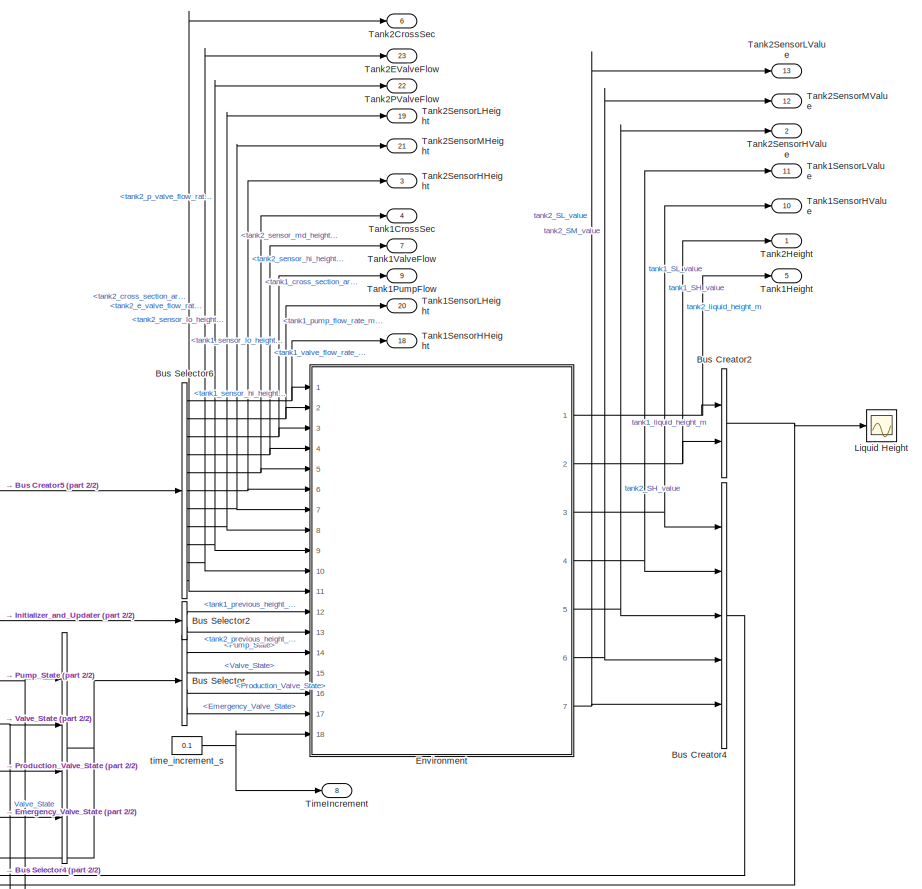
[diagram: Model - part 1/2, right side, full height]
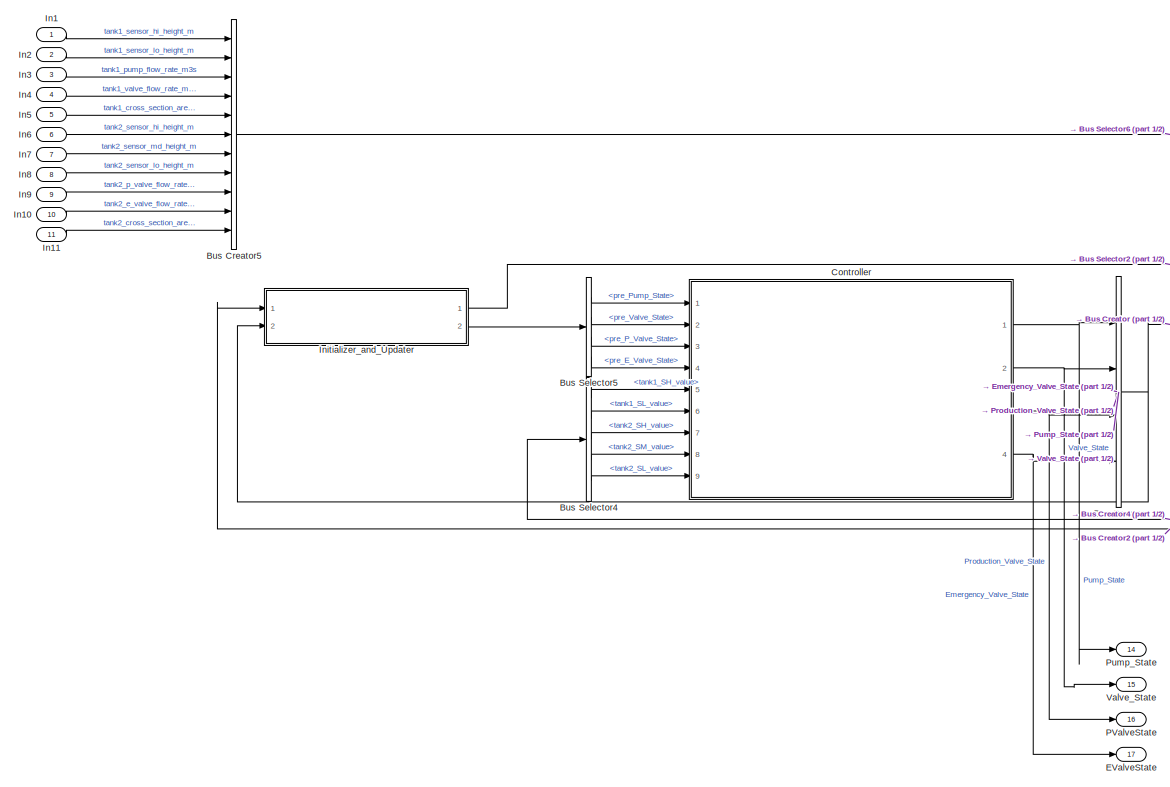
[diagram: Model - part 2/2, middle left region]
BLOCK [SubSystem] Model
  Ports = [11, 23]
  RequestExecContextInheritance = off
  Variant = off
BLOCK [BusCreator] Model/Bus Creator
  DisplayOption = bar
  InheritFromInputs = on
  Inputs = 4
  Ports = [4, 1]
BLOCK [BusCreator] Model/Bus Creator2
  DisplayOption = bar
  InheritFromInputs = on
  Inputs = 'tank1_liquid_height_m','tank2_liquid_height_m'
  Ports = [2, 1]
BLOCK [BusCreator] Model/Bus Creator4
  DisplayOption = bar
  InheritFromInputs = on
  Inputs = 'tank1_SH_value','tank1_SL_value','tank2_SH_value','tank2_SM_value','tank2_SL_value'
  Ports = [5, 1]
BLOCK [BusCreator] Model/Bus Creator5
  DisplayOption = bar
  InheritFromInputs = on
  Inputs = 'tank1_sensor_hi_height_m','tank1_sensor_lo_height_m','tank1_pump_flow_rate_m3s','tank1_valve_flow_rate_m3s','tank1_cross_section_area_m2','tank2_sensor_hi_height_m','tank2_sensor_md_height_m','tank2_sensor_lo_height_m','tank2_p_valve_flow_rate_m3s','tank2_e_valve_flow_rate_m3s','tank2_cross_section_area_m2'
  Ports = [11, 1]
BLOCK [BusSelector] Model/Bus Selector
  OutputAsBus = off
  OutputSignals = Pump_State,Valve_State,Production_Valve_State,Emergency_Valve_State
  Ports = [1, 4]
BLOCK [BusSelector] Model/Bus Selector2
  OutputAsBus = off
  OutputSignals = tank1_previous_height_m,tank2_previous_height_m
  Ports = [1, 2]
BLOCK [BusSelector] Model/Bus Selector4
  OutputAsBus = off
  OutputSignals = tank1_SH_value,tank1_SL_value,tank2_SH_value,tank2_SM_value,tank2_SL_value
  Ports = [1, 5]
BLOCK [BusSelector] Model/Bus Selector5
  OutputAsBus = off
  OutputSignals = pre_Pump_State,pre_Valve_State,pre_P_Valve_State,pre_E_Valve_State
  Ports = [1, 4]
BLOCK [BusSelector] Model/Bus Selector6
  OutputAsBus = off
  OutputSignals = tank1_sensor_hi_height_m,tank1_sensor_lo_height_m,tank1_pump_flow_rate_m3s,tank1_valve_flow_rate_m3s,tank1_cross_section_area_m2,tank2_sensor_hi_height_m,tank2_sensor_md_height_m,tank2_sensor_lo_height_m,tank2_p_valve_flow_rate_m3s,tank2_e_valve_flow_rate_m3s,tank2_cross_section_area_m2
  Ports = [1, 11]
BLOCK [SubSystem] Model/Controller
  Ports = [9, 4]
  RequestExecContextInheritance = off
  Variant = off
BLOCK [Reference] Model/Controller/Compare To Constant  REF=simulink/Logic and Bit
Operations/Compare
To Constant
  Ports = [1, 1]
  SourceBlock = simulink/Logic and Bit\nOperations/Compare\nTo Constant
  SourceProductBaseCode = SL
  SourceProductName = Simulink
  SourceType = Compare To Constant
BLOCK [Reference] Model/Controller/Compare To Constant1  REF=simulink/Logic and Bit
Operations/Compare
To Constant
  Ports = [1, 1]
  SourceBlock = simulink/Logic and Bit\nOperations/Compare\nTo Constant
  SourceProductBaseCode = SL
  SourceProductName = Simulink
  SourceType = Compare To Constant
BLOCK [Reference] Model/Controller/Compare To Constant4  REF=simulink/Logic and Bit
Operations/Compare
To Constant
  Ports = [1, 1]
  SourceBlock = simulink/Logic and Bit\nOperations/Compare\nTo Constant
  SourceProductBaseCode = SL
  SourceProductName = Simulink
  SourceType = Compare To Constant
BLOCK [Reference] Model/Controller/Compare To Constant5  REF=simulink/Logic and Bit
Operations/Compare
To Constant
  Ports = [1, 1]
  SourceBlock = simulink/Logic and Bit\nOperations/Compare\nTo Constant
  SourceProductBaseCode = SL
  SourceProductName = Simulink
  SourceType = Compare To Constant
BLOCK [Reference] Model/Controller/Compare To Constant6  REF=simulink/Logic and Bit
Operations/Compare
To Constant
  Ports = [1, 1]
  SourceBlock = simulink/Logic and Bit\nOperations/Compare\nTo Constant
  SourceProductBaseCode = SL
  SourceProductName = Simulink
  SourceType = Compare To Constant
BLOCK [Scope] Model/Controller/Emergency Valve State
  NumInputPorts = 1
  Ports = [1]
  ScopeSpecificationString = Simulink.scopes.TimeScopeBlockCfg('CurrentConfiguration', extmgr.ConfigurationSet(extmgr.Configuration('Core','General UI',true),extmgr.Configuration('Core','Source UI',true),extmgr.Configuration('Sources','WiredSimulink',true,'DataLoggingVariableName','ScopeData3','DataLoggingSaveFormat','StructureWithTime','DataLoggingLimitDataPoints',true,'DataLoggingDecimation','1','DataLoggingDecimateData',tr...<+911ch>
BLOCK [Outport] Model/Controller/Emergency_Valve_State
  IconDisplay = Port number
  Port = 4
BLOCK [Scope] Model/Controller/Production Valve State
  NumInputPorts = 1
  Ports = [1]
  ScopeSpecificationString = Simulink.scopes.TimeScopeBlockCfg('CurrentConfiguration', extmgr.ConfigurationSet(extmgr.Configuration('Core','General UI',true),extmgr.Configuration('Core','Source UI',true),extmgr.Configuration('Sources','WiredSimulink',true,'DataLoggingVariableName','ScopeData2','DataLoggingSaveFormat','StructureWithTime','DataLoggingLimitDataPoints',true,'DataLoggingDecimation','1','DataLoggingDecimateData',tr...<+913ch>
BLOCK [Outport] Model/Controller/Production_Valve_State
  IconDisplay = Port number
  Port = 3
BLOCK [Scope] Model/Controller/Pump State 
  NumInputPorts = 1
  Ports = [1]
  ScopeSpecificationString = Simulink.scopes.TimeScopeBlockCfg('CurrentConfiguration', extmgr.ConfigurationSet(extmgr.Configuration('Core','General UI',true),extmgr.Configuration('Core','Source UI',true),extmgr.Configuration('Sources','WiredSimulink',true,'DataLoggingVariableName','ScopeData4','DataLoggingSaveFormat','StructureWithTime','DataLoggingLimitDataPoints',true,'DataLoggingDecimation','1','DataLoggingDecimateData',tr...<+1673ch>
BLOCK [Outport] Model/Controller/Pump_State
  IconDisplay = Port number
BLOCK [SubSystem] Model/Controller/Tank1_Controller
  Ports = [4, 2]
  RequestExecContextInheritance = off
  Variant = off
BLOCK [Constant] Model/Controller/Tank1_Controller/Constant
  Value = 0.0
BLOCK [Constant] Model/Controller/Tank1_Controller/Constant1
  Value = 1.0
BLOCK [Constant] Model/Controller/Tank1_Controller/Constant2
  Value = 1.0
BLOCK [Constant] Model/Controller/Tank1_Controller/Constant3
  Value = 0.0
BLOCK [Constant] Model/Controller/Tank1_Controller/Constant4
  Value = -1.0
BLOCK [Constant] Model/Controller/Tank1_Controller/Constant5
  Value = -1.0
BLOCK [Demux] Model/Controller/Tank1_Controller/Demux
  DisplayOption = bar
  Outputs = 2
  Ports = [1, 2]
BLOCK [Logic] Model/Controller/Tank1_Controller/Logical Operator
  AllPortsSameDT = off
  Operator = NOT
  OutDataTypeStr = boolean
  Ports = [1, 1]
BLOCK [Logic] Model/Controller/Tank1_Controller/Logical Operator1
  AllPortsSameDT = off
  OutDataTypeStr = boolean
  Ports = [2, 1]
BLOCK [Logic] Model/Controller/Tank1_Controller/Logical Operator2
  AllPortsSameDT = off
  Operator = NOT
  OutDataTypeStr = boolean
  Ports = [1, 1]
BLOCK [Mux] Model/Controller/Tank1_Controller/Mux
  DisplayOption = bar
  Inputs = 2
  Ports = [2, 1]
BLOCK [Mux] Model/Controller/Tank1_Controller/Mux1
  DisplayOption = bar
  Inputs = 2
  Ports = [2, 1]
BLOCK [Mux] Model/Controller/Tank1_Controller/Mux2
  DisplayOption = bar
  Inputs = 2
  Ports = [2, 1]
BLOCK [Mux] Model/Controller/Tank1_Controller/Mux3
  DisplayOption = bar
  Inputs = 2
  Ports = [2, 1]
BLOCK [Outport] Model/Controller/Tank1_Controller/Pump_State
  IconDisplay = Port number
BLOCK [Inport] Model/Controller/Tank1_Controller/SH_Input
  IconDisplay = Port number
BLOCK [Inport] Model/Controller/Tank1_Controller/SL_Input
  IconDisplay = Port number
  Port = 2
BLOCK [Switch] Model/Controller/Tank1_Controller/Switch
  Criteria = u2 ~= 0
  InputSameDT = off
  SaturateOnIntegerOverflow = off
BLOCK [Switch] Model/Controller/Tank1_Controller/Switch2
  Criteria = u2 ~= 0
  InputSameDT = off
  SaturateOnIntegerOverflow = off
BLOCK [Switch] Model/Controller/Tank1_Controller/Switch3
  Criteria = u2 ~= 0
  InputSameDT = off
  SaturateOnIntegerOverflow = off
BLOCK [Outport] Model/Controller/Tank1_Controller/Valve_State
  IconDisplay = Port number
  Port = 2
BLOCK [Inport] Model/Controller/Tank1_Controller/prev_Pump_State
  IconDisplay = Port number
  Port = 3
BLOCK [Inport] Model/Controller/Tank1_Controller/prev_Valve_State
  IconDisplay = Port number
  Port = 4
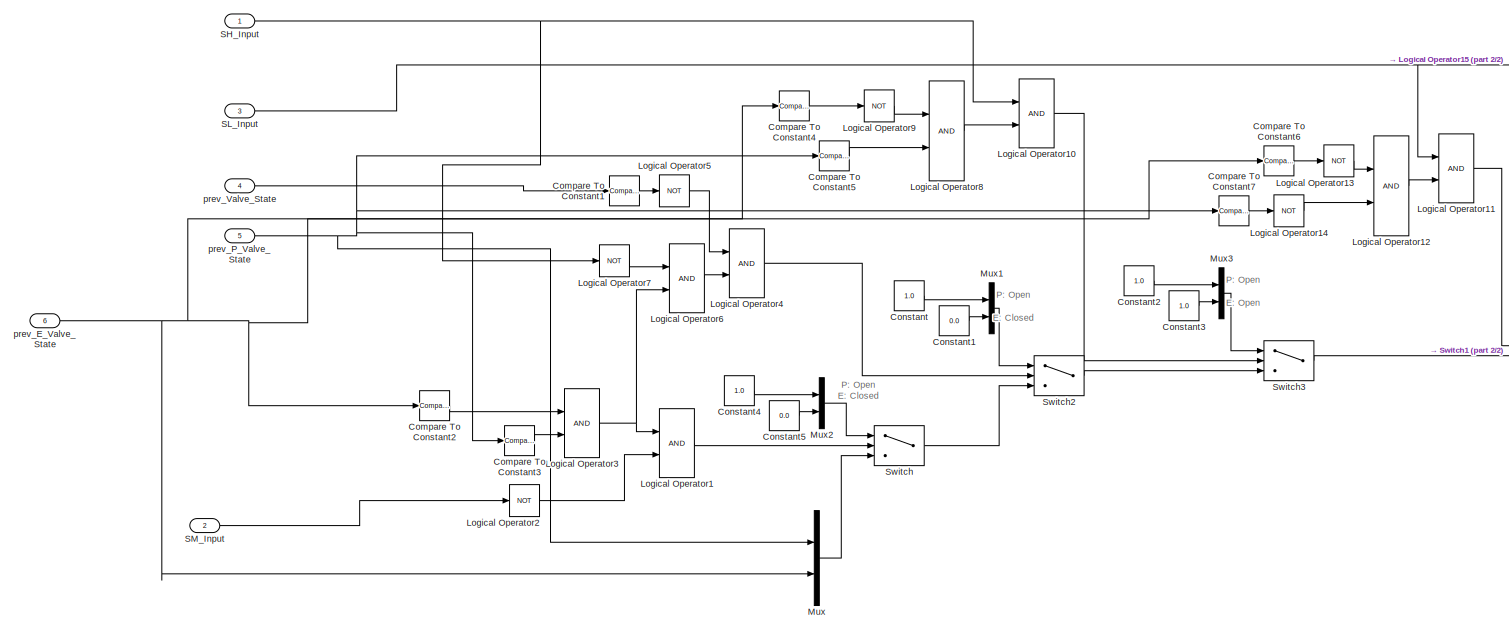
[diagram: Model/Controller/Tank2_Controller - part 1/2, most of the canvas]
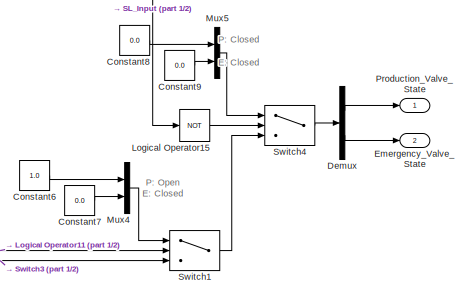
[diagram: Model/Controller/Tank2_Controller - part 2/2, middle right region]
BLOCK [SubSystem] Model/Controller/Tank2_Controller
  Ports = [6, 2]
  RequestExecContextInheritance = off
  Variant = off
BLOCK [Reference] Model/Controller/Tank2_Controller/Compare To Constant1  REF=simulink/Logic and Bit
Operations/Compare
To Constant
  Ports = [1, 1]
  SourceBlock = simulink/Logic and Bit\nOperations/Compare\nTo Constant
  SourceProductBaseCode = SL
  SourceProductName = Simulink
  SourceType = Compare To Constant
BLOCK [Reference] Model/Controller/Tank2_Controller/Compare To Constant2  REF=simulink/Logic and Bit
Operations/Compare
To Constant
  Ports = [1, 1]
  SourceBlock = simulink/Logic and Bit\nOperations/Compare\nTo Constant
  SourceProductBaseCode = SL
  SourceProductName = Simulink
  SourceType = Compare To Constant
BLOCK [Reference] Model/Controller/Tank2_Controller/Compare To Constant3  REF=simulink/Logic and Bit
Operations/Compare
To Constant
  Ports = [1, 1]
  SourceBlock = simulink/Logic and Bit\nOperations/Compare\nTo Constant
  SourceProductBaseCode = SL
  SourceProductName = Simulink
  SourceType = Compare To Constant
BLOCK [Reference] Model/Controller/Tank2_Controller/Compare To Constant4  REF=simulink/Logic and Bit
Operations/Compare
To Constant
  Ports = [1, 1]
  SourceBlock = simulink/Logic and Bit\nOperations/Compare\nTo Constant
  SourceProductBaseCode = SL
  SourceProductName = Simulink
  SourceType = Compare To Constant
BLOCK [Reference] Model/Controller/Tank2_Controller/Compare To Constant5  REF=simulink/Logic and Bit
Operations/Compare
To Constant
  Ports = [1, 1]
  SourceBlock = simulink/Logic and Bit\nOperations/Compare\nTo Constant
  SourceProductBaseCode = SL
  SourceProductName = Simulink
  SourceType = Compare To Constant
BLOCK [Reference] Model/Controller/Tank2_Controller/Compare To Constant6  REF=simulink/Logic and Bit
Operations/Compare
To Constant
  Ports = [1, 1]
  SourceBlock = simulink/Logic and Bit\nOperations/Compare\nTo Constant
  SourceProductBaseCode = SL
  SourceProductName = Simulink
  SourceType = Compare To Constant
BLOCK [Reference] Model/Controller/Tank2_Controller/Compare To Constant7  REF=simulink/Logic and Bit
Operations/Compare
To Constant
  Ports = [1, 1]
  SourceBlock = simulink/Logic and Bit\nOperations/Compare\nTo Constant
  SourceProductBaseCode = SL
  SourceProductName = Simulink
  SourceType = Compare To Constant
BLOCK [Constant] Model/Controller/Tank2_Controller/Constant
  Value = 1.0
BLOCK [Constant] Model/Controller/Tank2_Controller/Constant1
  Value = 0.0
BLOCK [Constant] Model/Controller/Tank2_Controller/Constant2
  Value = 1.0
BLOCK [Constant] Model/Controller/Tank2_Controller/Constant3
  Value = 1.0
BLOCK [Constant] Model/Controller/Tank2_Controller/Constant4
  Value = 1.0
BLOCK [Constant] Model/Controller/Tank2_Controller/Constant5
  Value = 0.0
BLOCK [Constant] Model/Controller/Tank2_Controller/Constant6
  Value = 1.0
BLOCK [Constant] Model/Controller/Tank2_Controller/Constant7
  Value = 0.0
BLOCK [Constant] Model/Controller/Tank2_Controller/Constant8
  Value = 0.0
BLOCK [Constant] Model/Controller/Tank2_Controller/Constant9
  Value = 0.0
BLOCK [Demux] Model/Controller/Tank2_Controller/Demux
  DisplayOption = bar
  Outputs = 2
  Ports = [1, 2]
BLOCK [Outport] Model/Controller/Tank2_Controller/Emergency_Valve_State
  IconDisplay = Port number
  Port = 2
BLOCK [Logic] Model/Controller/Tank2_Controller/Logical Operator1
  AllPortsSameDT = off
  OutDataTypeStr = boolean
  Ports = [2, 1]
BLOCK [Logic] Model/Controller/Tank2_Controller/Logical Operator10
  AllPortsSameDT = off
  OutDataTypeStr = boolean
  Ports = [2, 1]
BLOCK [Logic] Model/Controller/Tank2_Controller/Logical Operator11
  AllPortsSameDT = off
  OutDataTypeStr = boolean
  Ports = [2, 1]
BLOCK [Logic] Model/Controller/Tank2_Controller/Logical Operator12
  AllPortsSameDT = off
  OutDataTypeStr = boolean
  Ports = [2, 1]
BLOCK [Logic] Model/Controller/Tank2_Controller/Logical Operator13
  AllPortsSameDT = off
  Operator = NOT
  OutDataTypeStr = boolean
  Ports = [1, 1]
BLOCK [Logic] Model/Controller/Tank2_Controller/Logical Operator14
  AllPortsSameDT = off
  Operator = NOT
  OutDataTypeStr = boolean
  Ports = [1, 1]
BLOCK [Logic] Model/Controller/Tank2_Controller/Logical Operator15
  AllPortsSameDT = off
  Operator = NOT
  OutDataTypeStr = boolean
  Ports = [1, 1]
BLOCK [Logic] Model/Controller/Tank2_Controller/Logical Operator2
  AllPortsSameDT = off
  Operator = NOT
  OutDataTypeStr = boolean
  Ports = [1, 1]
BLOCK [Logic] Model/Controller/Tank2_Controller/Logical Operator3
  AllPortsSameDT = off
  OutDataTypeStr = boolean
  Ports = [2, 1]
BLOCK [Logic] Model/Controller/Tank2_Controller/Logical Operator4
  AllPortsSameDT = off
  OutDataTypeStr = boolean
  Ports = [2, 1]
BLOCK [Logic] Model/Controller/Tank2_Controller/Logical Operator5
  AllPortsSameDT = off
  Operator = NOT
  OutDataTypeStr = boolean
  Ports = [1, 1]
BLOCK [Logic] Model/Controller/Tank2_Controller/Logical Operator6
  AllPortsSameDT = off
  OutDataTypeStr = boolean
  Ports = [2, 1]
BLOCK [Logic] Model/Controller/Tank2_Controller/Logical Operator7
  AllPortsSameDT = off
  Operator = NOT
  OutDataTypeStr = boolean
  Ports = [1, 1]
BLOCK [Logic] Model/Controller/Tank2_Controller/Logical Operator8
  AllPortsSameDT = off
  OutDataTypeStr = boolean
  Ports = [2, 1]
BLOCK [Logic] Model/Controller/Tank2_Controller/Logical Operator9
  AllPortsSameDT = off
  Operator = NOT
  OutDataTypeStr = boolean
  Ports = [1, 1]
BLOCK [Mux] Model/Controller/Tank2_Controller/Mux
  DisplayOption = bar
  Inputs = 2
  Ports = [2, 1]
BLOCK [Mux] Model/Controller/Tank2_Controller/Mux1
  DisplayOption = bar
  Inputs = 2
  Ports = [2, 1]
BLOCK [Mux] Model/Controller/Tank2_Controller/Mux2
  DisplayOption = bar
  Inputs = 2
  Ports = [2, 1]
BLOCK [Mux] Model/Controller/Tank2_Controller/Mux3
  DisplayOption = bar
  Inputs = 2
  Ports = [2, 1]
BLOCK [Mux] Model/Controller/Tank2_Controller/Mux4
  DisplayOption = bar
  Inputs = 2
  Ports = [2, 1]
BLOCK [Mux] Model/Controller/Tank2_Controller/Mux5
  DisplayOption = bar
  Inputs = 2
  Ports = [2, 1]
BLOCK [Outport] Model/Controller/Tank2_Controller/Production_Valve_State
  IconDisplay = Port number
BLOCK [Inport] Model/Controller/Tank2_Controller/SH_Input
  IconDisplay = Port number
BLOCK [Inport] Model/Controller/Tank2_Controller/SL_Input
  IconDisplay = Port number
  Port = 3
BLOCK [Inport] Model/Controller/Tank2_Controller/SM_Input
  IconDisplay = Port number
  Port = 2
BLOCK [Switch] Model/Controller/Tank2_Controller/Switch
  Criteria = u2 ~= 0
  InputSameDT = off
  SaturateOnIntegerOverflow = off
BLOCK [Switch] Model/Controller/Tank2_Controller/Switch1
  Criteria = u2 ~= 0
  InputSameDT = off
  SaturateOnIntegerOverflow = off
BLOCK [Switch] Model/Controller/Tank2_Controller/Switch2
  Criteria = u2 ~= 0
  InputSameDT = off
  SaturateOnIntegerOverflow = off
BLOCK [Switch] Model/Controller/Tank2_Controller/Switch3
  Criteria = u2 ~= 0
  InputSameDT = off
  SaturateOnIntegerOverflow = off
BLOCK [Switch] Model/Controller/Tank2_Controller/Switch4
  Criteria = u2 ~= 0
  InputSameDT = off
  SaturateOnIntegerOverflow = off
BLOCK [Inport] Model/Controller/Tank2_Controller/prev_E_Valve_State
  IconDisplay = Port number
  Port = 6
BLOCK [Inport] Model/Controller/Tank2_Controller/prev_P_Valve_State
  IconDisplay = Port number
  Port = 5
BLOCK [Inport] Model/Controller/Tank2_Controller/prev_Valve_State
  IconDisplay = Port number
  Port = 4
BLOCK [Scope] Model/Controller/Valve State
  NumInputPorts = 1
  Ports = [1]
  ScopeSpecificationString = Simulink.scopes.TimeScopeBlockCfg('CurrentConfiguration', extmgr.ConfigurationSet(extmgr.Configuration('Core','General UI',true),extmgr.Configuration('Core','Source UI',true),extmgr.Configuration('Sources','WiredSimulink',true,'DataLoggingVariableName','ScopeData1','DataLoggingSaveFormat','StructureWithTime','DataLoggingLimitDataPoints',true,'DataLoggingDecimation','1','DataLoggingDecimateData',tr...<+1672ch>
BLOCK [Outport] Model/Controller/Valve_State
  IconDisplay = Port number
  Port = 2
BLOCK [Inport] Model/Controller/pre_E_Valve_State
  IconDisplay = Port number
  Port = 4
BLOCK [Inport] Model/Controller/pre_P_Valve_State
  IconDisplay = Port number
  Port = 3
BLOCK [Inport] Model/Controller/pre_Pump_State
  IconDisplay = Port number
BLOCK [Inport] Model/Controller/pre_Valve_State
  IconDisplay = Port number
  Port = 2
BLOCK [Inport] Model/Controller/tank1_SH_value
  IconDisplay = Port number
  Port = 5
BLOCK [Inport] Model/Controller/tank1_SL_value
  IconDisplay = Port number
  Port = 6
BLOCK [Inport] Model/Controller/tank2_SH_value
  IconDisplay = Port number
  Port = 7
BLOCK [Inport] Model/Controller/tank2_SL_value
  IconDisplay = Port number
  Port = 9
BLOCK [Inport] Model/Controller/tank2_SM_value
  IconDisplay = Port number
  Port = 8
BLOCK [Outport] Model/EValveState
  IconDisplay = Port number
  Port = 17
BLOCK [SubSystem] Model/Environment
  Ports = [18, 7]
  RequestExecContextInheritance = off
  Variant = off
BLOCK [SubSystem] Model/Environment/EmergencyValve
  Ports = [3, 1]
  RequestExecContextInheritance = off
  Variant = off
BLOCK [Inport] Model/Environment/EmergencyValve/Actuator_State
  IconDisplay = Port number
BLOCK [Constant] Model/Environment/EmergencyValve/Constant1
  Value = 0.0
BLOCK [Constant] Model/Environment/EmergencyValve/Constant2
  Value = 0.5
BLOCK [Product] Model/Environment/EmergencyValve/Product
  InputSameDT = off
  OutDataTypeStr = Inherit: Inherit via internal rule
  Ports = [2, 1]
  RndMeth = Floor
  SaturateOnIntegerOverflow = off
BLOCK [RelationalOperator] Model/Environment/EmergencyValve/Relational Operator
  InputSameDT = off
  Operator = >
  OutDataTypeStr = boolean
  Ports = [2, 1]
BLOCK [Switch] Model/Environment/EmergencyValve/Switch
  Criteria = u2 ~= 0
  InputSameDT = off
  SaturateOnIntegerOverflow = off
BLOCK [Inport] Model/Environment/EmergencyValve/actuator_flow_rate_m3s
  IconDisplay = Port number
  Port = 2
BLOCK [Outport] Model/Environment/EmergencyValve/flow_rate_m3dt
  IconDisplay = Port number
BLOCK [Inport] Model/Environment/EmergencyValve/time_increment1
  IconDisplay = Port number
  Port = 3
BLOCK [Inport] Model/Environment/Emergency_Valve_State
  IconDisplay = Port number
  Port = 17
BLOCK [SubSystem] Model/Environment/ProductionValve
  Ports = [3, 1]
  RequestExecContextInheritance = off
  Variant = off
BLOCK [Inport] Model/Environment/ProductionValve/Actuator_State
  IconDisplay = Port number
BLOCK [Constant] Model/Environment/ProductionValve/Constant1
  Value = 0.0
BLOCK [Constant] Model/Environment/ProductionValve/Constant2
  Value = 0.5
BLOCK [Product] Model/Environment/ProductionValve/Product
  InputSameDT = off
  OutDataTypeStr = Inherit: Inherit via internal rule
  Ports = [2, 1]
  RndMeth = Floor
  SaturateOnIntegerOverflow = off
BLOCK [RelationalOperator] Model/Environment/ProductionValve/Relational Operator
  InputSameDT = off
  Operator = >
  OutDataTypeStr = boolean
  Ports = [2, 1]
BLOCK [Switch] Model/Environment/ProductionValve/Switch
  Criteria = u2 ~= 0
  InputSameDT = off
  SaturateOnIntegerOverflow = off
BLOCK [Inport] Model/Environment/ProductionValve/actuator_flow_rate_m3s
  IconDisplay = Port number
  Port = 2
BLOCK [Outport] Model/Environment/ProductionValve/flow_rate_m3dt
  IconDisplay = Port number
BLOCK [Inport] Model/Environment/ProductionValve/time_increment1
  IconDisplay = Port number
  Port = 3
BLOCK [Inport] Model/Environment/Production_Valve_State
  IconDisplay = Port number
  Port = 16
BLOCK [SubSystem] Model/Environment/Pump
  Ports = [3, 1]
  RequestExecContextInheritance = off
  Variant = off
BLOCK [Inport] Model/Environment/Pump/Actuator_State
  IconDisplay = Port number
BLOCK [Constant] Model/Environment/Pump/Constant1
  Value = 0.0
BLOCK [Constant] Model/Environment/Pump/Constant2
  Value = 0.5
BLOCK [Product] Model/Environment/Pump/Product
  InputSameDT = off
  OutDataTypeStr = Inherit: Inherit via internal rule
  Ports = [2, 1]
  RndMeth = Floor
  SaturateOnIntegerOverflow = off
BLOCK [RelationalOperator] Model/Environment/Pump/Relational Operator
  InputSameDT = off
  Operator = >
  OutDataTypeStr = boolean
  Ports = [2, 1]
BLOCK [Switch] Model/Environment/Pump/Switch
  Criteria = u2 ~= 0
  InputSameDT = off
  SaturateOnIntegerOverflow = off
BLOCK [Inport] Model/Environment/Pump/actuator_flow_rate_m3s
  IconDisplay = Port number
  Port = 2
BLOCK [Outport] Model/Environment/Pump/flow_rate_m3dt
  IconDisplay = Port number
BLOCK [Inport] Model/Environment/Pump/time_increment1
  IconDisplay = Port number
  Port = 3
BLOCK [Inport] Model/Environment/Pump_State
  IconDisplay = Port number
  Port = 14
BLOCK [SubSystem] Model/Environment/Sensor_HI_Tank2
  Ports = [2, 1]
  RequestExecContextInheritance = off
  Variant = off
BLOCK [Constant] Model/Environment/Sensor_HI_Tank2/Constant
  Value = 0.0
BLOCK [Constant] Model/Environment/Sensor_HI_Tank2/Constant1
  Value = 1.0
BLOCK [RelationalOperator] Model/Environment/Sensor_HI_Tank2/Relational Operator
  InputSameDT = off
  Operator = >
  OutDataTypeStr = boolean
  Ports = [2, 1]
BLOCK [Outport] Model/Environment/Sensor_HI_Tank2/Sensor Value
  IconDisplay = Port number
BLOCK [Switch] Model/Environment/Sensor_HI_Tank2/Switch
  Criteria = u2 ~= 0
  InputSameDT = off
  SaturateOnIntegerOverflow = off
BLOCK [Inport] Model/Environment/Sensor_HI_Tank2/current_height
  IconDisplay = Port number
BLOCK [Inport] Model/Environment/Sensor_HI_Tank2/sensor_height
  IconDisplay = Port number
  Port = 2
BLOCK [SubSystem] Model/Environment/Sensor_High_Tank1
  Ports = [2, 1]
  RequestExecContextInheritance = off
  Variant = off
BLOCK [Constant] Model/Environment/Sensor_High_Tank1/Constant
  Value = 0.0
BLOCK [Constant] Model/Environment/Sensor_High_Tank1/Constant1
  Value = 1.0
BLOCK [RelationalOperator] Model/Environment/Sensor_High_Tank1/Relational Operator
  InputSameDT = off
  Operator = >
  OutDataTypeStr = boolean
  Ports = [2, 1]
BLOCK [Outport] Model/Environment/Sensor_High_Tank1/Sensor Value
  IconDisplay = Port number
BLOCK [Switch] Model/Environment/Sensor_High_Tank1/Switch
  Criteria = u2 ~= 0
  InputSameDT = off
  SaturateOnIntegerOverflow = off
BLOCK [Inport] Model/Environment/Sensor_High_Tank1/current_height
  IconDisplay = Port number
BLOCK [Inport] Model/Environment/Sensor_High_Tank1/sensor_height
  IconDisplay = Port number
  Port = 2
BLOCK [SubSystem] Model/Environment/Sensor_LO_Tank2
  Ports = [2, 1]
  RequestExecContextInheritance = off
  Variant = off
BLOCK [Constant] Model/Environment/Sensor_LO_Tank2/Constant
  Value = 0.0
BLOCK [Constant] Model/Environment/Sensor_LO_Tank2/Constant1
  Value = 1.0
BLOCK [RelationalOperator] Model/Environment/Sensor_LO_Tank2/Relational Operator
  InputSameDT = off
  Operator = >
  OutDataTypeStr = boolean
  Ports = [2, 1]
BLOCK [Outport] Model/Environment/Sensor_LO_Tank2/Sensor Value
  IconDisplay = Port number
BLOCK [Switch] Model/Environment/Sensor_LO_Tank2/Switch
  Criteria = u2 ~= 0
  InputSameDT = off
  SaturateOnIntegerOverflow = off
BLOCK [Inport] Model/Environment/Sensor_LO_Tank2/current_height
  IconDisplay = Port number
BLOCK [Inport] Model/Environment/Sensor_LO_Tank2/sensor_height
  IconDisplay = Port number
  Port = 2
BLOCK [SubSystem] Model/Environment/Sensor_Low_Tank1
  Ports = [2, 1]
  RequestExecContextInheritance = off
  Variant = off
BLOCK [Constant] Model/Environment/Sensor_Low_Tank1/Constant
  Value = 0.0
BLOCK [Constant] Model/Environment/Sensor_Low_Tank1/Constant1
  Value = 1.0
BLOCK [RelationalOperator] Model/Environment/Sensor_Low_Tank1/Relational Operator
  InputSameDT = off
  Operator = >
  OutDataTypeStr = boolean
  Ports = [2, 1]
BLOCK [Outport] Model/Environment/Sensor_Low_Tank1/Sensor Value
  IconDisplay = Port number
BLOCK [Switch] Model/Environment/Sensor_Low_Tank1/Switch
  Criteria = u2 ~= 0
  InputSameDT = off
  SaturateOnIntegerOverflow = off
BLOCK [Inport] Model/Environment/Sensor_Low_Tank1/current_height
  IconDisplay = Port number
BLOCK [Inport] Model/Environment/Sensor_Low_Tank1/sensor_height
  IconDisplay = Port number
  Port = 2
BLOCK [SubSystem] Model/Environment/Sensor_MD_Tank2
  Ports = [2, 1]
  RequestExecContextInheritance = off
  Variant = off
BLOCK [Constant] Model/Environment/Sensor_MD_Tank2/Constant
  Value = 0.0
BLOCK [Constant] Model/Environment/Sensor_MD_Tank2/Constant1
  Value = 1.0
BLOCK [RelationalOperator] Model/Environment/Sensor_MD_Tank2/Relational Operator
  InputSameDT = off
  Operator = >
  OutDataTypeStr = boolean
  Ports = [2, 1]
BLOCK [Outport] Model/Environment/Sensor_MD_Tank2/Sensor Value
  IconDisplay = Port number
BLOCK [Switch] Model/Environment/Sensor_MD_Tank2/Switch
  Criteria = u2 ~= 0
  InputSameDT = off
  SaturateOnIntegerOverflow = off
BLOCK [Inport] Model/Environment/Sensor_MD_Tank2/current_height
  IconDisplay = Port number
BLOCK [Inport] Model/Environment/Sensor_MD_Tank2/sensor_height
  IconDisplay = Port number
  Port = 2
BLOCK [SubSystem] Model/Environment/Tank1
  Ports = [4, 1]
  RequestExecContextInheritance = off
  Variant = off
BLOCK [Product] Model/Environment/Tank1/Divide
  InputSameDT = off
  Inputs = */
  OutDataTypeStr = Inherit: Inherit via internal rule
  Ports = [2, 1]
  RndMeth = Floor
  SaturateOnIntegerOverflow = off
BLOCK [Sum] Model/Environment/Tank1/Sum
  IconShape = round
  InputSameDT = off
  Inputs = |++
  OutDataTypeStr = Inherit: Inherit via internal rule
  Ports = [2, 1]
  SaturateOnIntegerOverflow = off
BLOCK [Sum] Model/Environment/Tank1/Sum1
  IconShape = round
  InputSameDT = off
  Inputs = |+-
  OutDataTypeStr = Inherit: Inherit via internal rule
  Ports = [2, 1]
  SaturateOnIntegerOverflow = off
BLOCK [Inport] Model/Environment/Tank1/cross_section_area_m2
  IconDisplay = Port number
  Port = 3
BLOCK [Outport] Model/Environment/Tank1/liquid_height_m
  IconDisplay = Port number
BLOCK [Inport] Model/Environment/Tank1/previous_height_m
  IconDisplay = Port number
BLOCK [Inport] Model/Environment/Tank1/pump_flow_rate_m3dt
  IconDisplay = Port number
  Port = 2
BLOCK [Inport] Model/Environment/Tank1/valve_flow_rate_m3dt
  IconDisplay = Port number
  Port = 4
BLOCK [SubSystem] Model/Environment/Tank2
  Ports = [5, 1]
  RequestExecContextInheritance = off
  Variant = off
BLOCK [Product] Model/Environment/Tank2/Divide
  InputSameDT = off
  Inputs = */
  OutDataTypeStr = Inherit: Inherit via internal rule
  Ports = [2, 1]
  RndMeth = Floor
  SaturateOnIntegerOverflow = off
BLOCK [Sum] Model/Environment/Tank2/Sum
  IconShape = round
  InputSameDT = off
  Inputs = |++
  OutDataTypeStr = Inherit: Inherit via internal rule
  Ports = [2, 1]
  SaturateOnIntegerOverflow = off
BLOCK [Sum] Model/Environment/Tank2/Sum1
  IconShape = round
  InputSameDT = off
  Inputs = |+-
  OutDataTypeStr = Inherit: Inherit via internal rule
  Ports = [2, 1]
  SaturateOnIntegerOverflow = off
BLOCK [Sum] Model/Environment/Tank2/Sum2
  IconShape = round
  InputSameDT = off
  Inputs = |+-
  OutDataTypeStr = Inherit: Inherit via internal rule
  Ports = [2, 1]
  SaturateOnIntegerOverflow = off
BLOCK [Inport] Model/Environment/Tank2/e_valve_flow_m
  IconDisplay = Port number
  Port = 3
BLOCK [Outport] Model/Environment/Tank2/liquid_height_m
  IconDisplay = Port number
BLOCK [Inport] Model/Environment/Tank2/p_valve_flow_m
  IconDisplay = Port number
  Port = 2
BLOCK [Inport] Model/Environment/Tank2/previous_height_m
  IconDisplay = Port number
  Port = 5
BLOCK [Inport] Model/Environment/Tank2/tank2_cross_sectional_area_m2
  IconDisplay = Port number
  Port = 4
BLOCK [Inport] Model/Environment/Tank2/valve_flow_m
  IconDisplay = Port number
BLOCK [SubSystem] Model/Environment/Valve
  Ports = [3, 1]
  RequestExecContextInheritance = off
  Variant = off
BLOCK [Inport] Model/Environment/Valve/Actuator_State
  IconDisplay = Port number
BLOCK [Constant] Model/Environment/Valve/Constant1
  Value = 0.0
BLOCK [Constant] Model/Environment/Valve/Constant2
  Value = 0.5
BLOCK [Product] Model/Environment/Valve/Product
  InputSameDT = off
  OutDataTypeStr = Inherit: Inherit via internal rule
  Ports = [2, 1]
  RndMeth = Floor
  SaturateOnIntegerOverflow = off
BLOCK [RelationalOperator] Model/Environment/Valve/Relational Operator
  InputSameDT = off
  Operator = >
  OutDataTypeStr = boolean
  Ports = [2, 1]
BLOCK [Switch] Model/Environment/Valve/Switch
  Criteria = u2 ~= 0
  InputSameDT = off
  SaturateOnIntegerOverflow = off
BLOCK [Inport] Model/Environment/Valve/actuator_flow_rate_m3s
  IconDisplay = Port number
  Port = 2
BLOCK [Outport] Model/Environment/Valve/flow_rate_m3dt
  IconDisplay = Port number
BLOCK [Inport] Model/Environment/Valve/time_increment1
  IconDisplay = Port number
  Port = 3
BLOCK [Inport] Model/Environment/Valve_State
  IconDisplay = Port number
  Port = 15
BLOCK [Outport] Model/Environment/tank1_SH_value
  IconDisplay = Port number
  Port = 3
BLOCK [Outport] Model/Environment/tank1_SL_value
  IconDisplay = Port number
  Port = 4
BLOCK [Inport] Model/Environment/tank1_cross_section_area_m2
  IconDisplay = Port number
  Port = 5
BLOCK [Outport] Model/Environment/tank1_liquid_height_m
  IconDisplay = Port number
BLOCK [Inport] Model/Environment/tank1_previous_height_m
  IconDisplay = Port number
  Port = 12
BLOCK [Inport] Model/Environment/tank1_pump_flow_rate_m3s
  IconDisplay = Port number
  Port = 3
BLOCK [Inport] Model/Environment/tank1_sensor_hi_height_m
  IconDisplay = Port number
BLOCK [Inport] Model/Environment/tank1_sensor_lo_height_m
  IconDisplay = Port number
  Port = 2
BLOCK [Inport] Model/Environment/tank1_valve_flow_rate_m3s
  IconDisplay = Port number
  Port = 4
BLOCK [Outport] Model/Environment/tank2_SH_value
  IconDisplay = Port number
  Port = 5
BLOCK [Outport] Model/Environment/tank2_SL_value
  IconDisplay = Port number
  Port = 7
BLOCK [Outport] Model/Environment/tank2_SM_value
  IconDisplay = Port number
  Port = 6
BLOCK [Inport] Model/Environment/tank2_cross_section_area_m2
  IconDisplay = Port number
  Port = 11
BLOCK [Inport] Model/Environment/tank2_e_valve_flow_rate_m3s
  IconDisplay = Port number
  Port = 10
BLOCK [Outport] Model/Environment/tank2_liquid_height_m
  IconDisplay = Port number
  Port = 2
BLOCK [Inport] Model/Environment/tank2_p_valve_flow_rate_m3s
  IconDisplay = Port number
  Port = 9
BLOCK [Inport] Model/Environment/tank2_previous_height_m
  IconDisplay = Port number
  Port = 13
BLOCK [Inport] Model/Environment/tank2_sensor_hi_height_m
  IconDisplay = Port number
  Port = 6
BLOCK [Inport] Model/Environment/tank2_sensor_lo_height_m
  IconDisplay = Port number
  Port = 8
BLOCK [Inport] Model/Environment/tank2_sensor_md_height_m
  IconDisplay = Port number
  Port = 7
BLOCK [Inport] Model/Environment/time_increment
  IconDisplay = Port number
  Port = 18
BLOCK [Inport] Model/In1
  IconDisplay = Port number
BLOCK [Inport] Model/In10
  IconDisplay = Port number
  Port = 10
BLOCK [Inport] Model/In11
  IconDisplay = Port number
  Port = 11
BLOCK [Inport] Model/In2
  IconDisplay = Port number
  Port = 2
BLOCK [Inport] Model/In3
  IconDisplay = Port number
  Port = 3
BLOCK [Inport] Model/In4
  IconDisplay = Port number
  Port = 4
BLOCK [Inport] Model/In5
  IconDisplay = Port number
  Port = 5
BLOCK [Inport] Model/In6
  IconDisplay = Port number
  Port = 6
BLOCK [Inport] Model/In7
  IconDisplay = Port number
  Port = 7
BLOCK [Inport] Model/In8
  IconDisplay = Port number
  Port = 8
BLOCK [Inport] Model/In9
  IconDisplay = Port number
  Port = 9
BLOCK [SubSystem] Model/Initializer_and_Updater
  Ports = [2, 2]
  RequestExecContextInheritance = off
  Variant = off
BLOCK [BusCreator] Model/Initializer_and_Updater/Bus Creator1
  DisplayOption = bar
  InheritFromInputs = on
  Inputs = 'pre_Pump_State','pre_Valve_State','pre_P_Valve_State','pre_E_Valve_State'
  Ports = [4, 1]
BLOCK [BusCreator] Model/Initializer_and_Updater/Bus Creator3
  DisplayOption = bar
  InheritFromInputs = on
  Inputs = 'tank1_previous_height_m','tank2_previous_height_m'
  Ports = [2, 1]
BLOCK [BusSelector] Model/Initializer_and_Updater/Bus Selector1
  OutputAsBus = off
  OutputSignals = Pump_State,Valve_State,Production_Valve_State,Emergency_Valve_State
  Ports = [1, 4]
BLOCK [BusSelector] Model/Initializer_and_Updater/Bus Selector3
  OutputAsBus = off
  OutputSignals = tank1_liquid_height_m,tank2_liquid_height_m
  Ports = [1, 2]
BLOCK [SubSystem] Model/Initializer_and_Updater/E_Valve_Initial_State
  Ports = [1, 1]
  RequestExecContextInheritance = off
  Variant = off
BLOCK [Constant] Model/Initializer_and_Updater/E_Valve_Initial_State/Constant
  Value = 0.0
BLOCK [Outport] Model/Initializer_and_Updater/E_Valve_Initial_State/Initial Value
  IconDisplay = Port number
BLOCK [Switch] Model/Initializer_and_Updater/E_Valve_Initial_State/Switch
  Criteria = u2 > Threshold
  InputSameDT = off
  SaturateOnIntegerOverflow = off
BLOCK [UnitDelay] Model/Initializer_and_Updater/E_Valve_Initial_State/Unit Delay
  InitialCondition = 1
  InputProcessing = Elements as channels (sample based)
  SampleTime = -1
BLOCK [Inport] Model/Initializer_and_Updater/E_Valve_Initial_State/initial_value
  IconDisplay = Port number
BLOCK [Delay] Model/Initializer_and_Updater/Emergency_Valve_State_Delay
  DelayLength = 1
  InitialCondition = 0
  InputPortMap = u0
  Ports = [1, 1]
BLOCK [SubSystem] Model/Initializer_and_Updater/Initial Conditions
  Ports = [0, 6]
  RequestExecContextInheritance = off
  Variant = off
BLOCK [Constant] Model/Initializer_and_Updater/Initial Conditions/tank1_init_height_m
  Value = 0.046027
BLOCK [Outport] Model/Initializer_and_Updater/Initial Conditions/tank1_initial_height_m
  IconDisplay = Port number
BLOCK [Constant] Model/Initializer_and_Updater/Initial Conditions/tank1_pump_init_state
  Value = 0.0
BLOCK [Outport] Model/Initializer_and_Updater/Initial Conditions/tank1_pump_initial_state
  IconDisplay = Port number
  Port = 3
BLOCK [Constant] Model/Initializer_and_Updater/Initial Conditions/tank1_valve_init_state
  Value = 0.0
BLOCK [Outport] Model/Initializer_and_Updater/Initial Conditions/tank1_valve_initial_state
  IconDisplay = Port number
  Port = 4
BLOCK [Constant] Model/Initializer_and_Updater/Initial Conditions/tank2_e_valve_init_state
  Value = 0.0
BLOCK [Outport] Model/Initializer_and_Updater/Initial Conditions/tank2_e_valve_initial_state
  IconDisplay = Port number
  Port = 6
BLOCK [Constant] Model/Initializer_and_Updater/Initial Conditions/tank2_init_height_m
  Value = 0.89943
BLOCK [Outport] Model/Initializer_and_Updater/Initial Conditions/tank2_initial_height_m
  IconDisplay = Port number
  Port = 2
BLOCK [Constant] Model/Initializer_and_Updater/Initial Conditions/tank2_p_valve_init_state
  Value = 0.0
BLOCK [Outport] Model/Initializer_and_Updater/Initial Conditions/tank2_p_valve_initial_state
  IconDisplay = Port number
  Port = 5
BLOCK [SubSystem] Model/Initializer_and_Updater/Initial_Height_Tank _2
  Ports = [1, 1]
  RequestExecContextInheritance = off
  Variant = off
BLOCK [Constant] Model/Initializer_and_Updater/Initial_Height_Tank _2/Constant
  Value = 0.0
BLOCK [Outport] Model/Initializer_and_Updater/Initial_Height_Tank _2/Initial Value
  IconDisplay = Port number
BLOCK [Switch] Model/Initializer_and_Updater/Initial_Height_Tank _2/Switch
  Criteria = u2 > Threshold
  InputSameDT = off
  SaturateOnIntegerOverflow = off
BLOCK [UnitDelay] Model/Initializer_and_Updater/Initial_Height_Tank _2/Unit Delay
  InitialCondition = 1
  InputProcessing = Elements as channels (sample based)
  SampleTime = -1
BLOCK [Inport] Model/Initializer_and_Updater/Initial_Height_Tank _2/initial_value
  IconDisplay = Port number
BLOCK [SubSystem] Model/Initializer_and_Updater/Initial_Height_Tank_1
  Ports = [1, 1]
  RequestExecContextInheritance = off
  Variant = off
BLOCK [Constant] Model/Initializer_and_Updater/Initial_Height_Tank_1/Constant
  Value = 0.0
BLOCK [Outport] Model/Initializer_and_Updater/Initial_Height_Tank_1/Initial Value
  IconDisplay = Port number
BLOCK [Switch] Model/Initializer_and_Updater/Initial_Height_Tank_1/Switch
  Criteria = u2 > Threshold
  InputSameDT = off
  SaturateOnIntegerOverflow = off
BLOCK [UnitDelay] Model/Initializer_and_Updater/Initial_Height_Tank_1/Unit Delay
  InitialCondition = 1
  InputProcessing = Elements as channels (sample based)
  SampleTime = -1
BLOCK [Inport] Model/Initializer_and_Updater/Initial_Height_Tank_1/initial_value
  IconDisplay = Port number
BLOCK [Delay] Model/Initializer_and_Updater/Liquid_Height_Delay_Tank1
  DelayLength = 1
  InitialCondition = 0
  InputPortMap = u0
  Ports = [1, 1]
BLOCK [Delay] Model/Initializer_and_Updater/Liquid_Height_Delay_Tank2
  DelayLength = 1
  InitialCondition = 0
  InputPortMap = u0
  Ports = [1, 1]
BLOCK [SubSystem] Model/Initializer_and_Updater/P_Valve_Initial_State
  Ports = [1, 1]
  RequestExecContextInheritance = off
  Variant = off
BLOCK [Constant] Model/Initializer_and_Updater/P_Valve_Initial_State/Constant
  Value = 0.0
BLOCK [Outport] Model/Initializer_and_Updater/P_Valve_Initial_State/Initial Value
  IconDisplay = Port number
BLOCK [Switch] Model/Initializer_and_Updater/P_Valve_Initial_State/Switch
  Criteria = u2 > Threshold
  InputSameDT = off
  SaturateOnIntegerOverflow = off
BLOCK [UnitDelay] Model/Initializer_and_Updater/P_Valve_Initial_State/Unit Delay
  InitialCondition = 1
  InputProcessing = Elements as channels (sample based)
  SampleTime = -1
BLOCK [Inport] Model/Initializer_and_Updater/P_Valve_Initial_State/initial_value
  IconDisplay = Port number
BLOCK [Delay] Model/Initializer_and_Updater/Production_Valve_State_Delay
  DelayLength = 1
  InitialCondition = 0
  InputPortMap = u0
  Ports = [1, 1]
BLOCK [SubSystem] Model/Initializer_and_Updater/Pump_Initial_State
  Ports = [1, 1]
  RequestExecContextInheritance = off
  Variant = off
BLOCK [Constant] Model/Initializer_and_Updater/Pump_Initial_State/Constant
  Value = 0.0
BLOCK [Outport] Model/Initializer_and_Updater/Pump_Initial_State/Initial Value
  IconDisplay = Port number
BLOCK [Switch] Model/Initializer_and_Updater/Pump_Initial_State/Switch
  Criteria = u2 > Threshold
  InputSameDT = off
  SaturateOnIntegerOverflow = off
BLOCK [UnitDelay] Model/Initializer_and_Updater/Pump_Initial_State/Unit Delay
  InitialCondition = 1
  InputProcessing = Elements as channels (sample based)
  SampleTime = -1
BLOCK [Inport] Model/Initializer_and_Updater/Pump_Initial_State/initial_value
  IconDisplay = Port number
BLOCK [Delay] Model/Initializer_and_Updater/Pump_State_Delay
  DelayLength = 1
  InitialCondition = 0
  InputPortMap = u0
  Ports = [1, 1]
BLOCK [Scope] Model/Initializer_and_Updater/Scope for Tank1 Height 
  NumInputPorts = 1
  Ports = [1]
  ScopeSpecificationString = Simulink.scopes.TimeScopeBlockCfg('CurrentConfiguration', extmgr.ConfigurationSet(extmgr.Configuration('Core','General UI',true),extmgr.Configuration('Core','Source UI',true),extmgr.Configuration('Sources','WiredSimulink',true,'DataLoggingVariableName','ScopeData7'),extmgr.Configuration('Visuals','Time Domain',true,'SerializedDisplays',{struct('MinYLimReal','1.55412','MaxYLimReal','5.40412','YLabe...<+1409ch>
BLOCK [Scope] Model/Initializer_and_Updater/Scope for Tank2 Height
  NumInputPorts = 1
  Ports = [1]
  ScopeSpecificationString = Simulink.scopes.TimeScopeBlockCfg('CurrentConfiguration', extmgr.ConfigurationSet(extmgr.Configuration('Core','General UI',true),extmgr.Configuration('Core','Source UI',true),extmgr.Configuration('Sources','WiredSimulink',true,'DataLoggingVariableName','ScopeData6'),extmgr.Configuration('Visuals','Time Domain',true,'SerializedDisplays',{struct('MinYLimReal','0.43362','MaxYLimReal','3.28675','YLabe...<+1406ch>
BLOCK [Sum] Model/Initializer_and_Updater/Sum
  IconShape = round
  InputSameDT = off
  Inputs = |++
  OutDataTypeStr = Inherit: Inherit via internal rule
  Ports = [2, 1]
  SaturateOnIntegerOverflow = off
BLOCK [Sum] Model/Initializer_and_Updater/Sum1
  IconShape = round
  InputSameDT = off
  Inputs = |++
  OutDataTypeStr = Inherit: Inherit via internal rule
  Ports = [2, 1]
  SaturateOnIntegerOverflow = off
BLOCK [Sum] Model/Initializer_and_Updater/Sum6
  IconShape = round
  InputSameDT = off
  Inputs = |++
  OutDataTypeStr = Inherit: Inherit via internal rule
  Ports = [2, 1]
  SaturateOnIntegerOverflow = off
BLOCK [Sum] Model/Initializer_and_Updater/Sum7
  IconShape = round
  InputSameDT = off
  Inputs = |++
  OutDataTypeStr = Inherit: Inherit via internal rule
  Ports = [2, 1]
  SaturateOnIntegerOverflow = off
BLOCK [Sum] Model/Initializer_and_Updater/Sum8
  IconShape = round
  InputSameDT = off
  Inputs = |++
  OutDataTypeStr = Inherit: Inherit via internal rule
  Ports = [2, 1]
  SaturateOnIntegerOverflow = off
BLOCK [Sum] Model/Initializer_and_Updater/Sum9
  IconShape = round
  InputSameDT = off
  Inputs = |++
  OutDataTypeStr = Inherit: Inherit via internal rule
  Ports = [2, 1]
  SaturateOnIntegerOverflow = off
BLOCK [SubSystem] Model/Initializer_and_Updater/Valve_Initial_State
  Ports = [1, 1]
  RequestExecContextInheritance = off
  Variant = off
BLOCK [Constant] Model/Initializer_and_Updater/Valve_Initial_State/Constant
  Value = 0.0
BLOCK [Outport] Model/Initializer_and_Updater/Valve_Initial_State/Initial Value
  IconDisplay = Port number
BLOCK [Switch] Model/Initializer_and_Updater/Valve_Initial_State/Switch
  Criteria = u2 > Threshold
  InputSameDT = off
  SaturateOnIntegerOverflow = off
BLOCK [UnitDelay] Model/Initializer_and_Updater/Valve_Initial_State/Unit Delay
  InitialCondition = 1
  InputProcessing = Elements as channels (sample based)
  SampleTime = -1
BLOCK [Inport] Model/Initializer_and_Updater/Valve_Initial_State/initial_value
  IconDisplay = Port number
BLOCK [Delay] Model/Initializer_and_Updater/Valve_State_Delay
  DelayLength = 1
  InitialCondition = 0
  InputPortMap = u0
  Ports = [1, 1]
BLOCK [Inport] Model/Initializer_and_Updater/actuator_states
  IconDisplay = Port number
  Port = 2
BLOCK [Inport] Model/Initializer_and_Updater/liquid_height
  IconDisplay = Port number
BLOCK [Outport] Model/Initializer_and_Updater/previous_actuator_states
  IconDisplay = Port number
  Port = 2
BLOCK [Outport] Model/Initializer_and_Updater/previous_heights
  IconDisplay = Port number
BLOCK [Scope] Model/Liquid Height
  NumInputPorts = 1
  Ports = [1]
  ScopeSpecificationString = Simulink.scopes.TimeScopeBlockCfg('CurrentConfiguration', extmgr.ConfigurationSet(extmgr.Configuration('Core','General UI',true),extmgr.Configuration('Core','Source UI',true),extmgr.Configuration('Sources','WiredSimulink',true,'DataLoggingSaveFormat','StructureWithTime','DataLoggingLimitDataPoints',true,'DataLoggingDecimation','1','DataLoggingDecimateData',true),extmgr.Configuration('Visuals','Tim...<+1674ch>
BLOCK [Outport] Model/PValveState
  IconDisplay = Port number
  Port = 16
BLOCK [Outport] Model/Pump_State
  IconDisplay = Port number
  Port = 14
BLOCK [Outport] Model/Tank1CrossSec
  IconDisplay = Port number
  Port = 4
BLOCK [Outport] Model/Tank1Height
  IconDisplay = Port number
  Port = 5
BLOCK [Outport] Model/Tank1PumpFlow
  IconDisplay = Port number
  Port = 9
BLOCK [Outport] Model/Tank1SensorHHeight
  IconDisplay = Port number
  Port = 18
BLOCK [Outport] Model/Tank1SensorHValue
  IconDisplay = Port number
  Port = 10
BLOCK [Outport] Model/Tank1SensorLHeight
  IconDisplay = Port number
  Port = 20
BLOCK [Outport] Model/Tank1SensorLValue
  IconDisplay = Port number
  Port = 11
BLOCK [Outport] Model/Tank1ValveFlow
  IconDisplay = Port number
  Port = 7
BLOCK [Outport] Model/Tank2CrossSec
  IconDisplay = Port number
  Port = 6
BLOCK [Outport] Model/Tank2EValveFlow
  IconDisplay = Port number
  Port = 23
BLOCK [Outport] Model/Tank2Height
  IconDisplay = Port number
BLOCK [Outport] Model/Tank2PValveFlow
  IconDisplay = Port number
  Port = 22
BLOCK [Outport] Model/Tank2SensorHHeight
  IconDisplay = Port number
  Port = 3
BLOCK [Outport] Model/Tank2SensorHValue
  IconDisplay = Port number
  Port = 2
BLOCK [Outport] Model/Tank2SensorLHeight
  IconDisplay = Port number
  Port = 19
BLOCK [Outport] Model/Tank2SensorLValue
  IconDisplay = Port number
  Port = 13
BLOCK [Outport] Model/Tank2SensorMHeight
  IconDisplay = Port number
  Port = 21
BLOCK [Outport] Model/Tank2SensorMValue
  IconDisplay = Port number
  Port = 12
BLOCK [Outport] Model/TimeIncrement
  IconDisplay = Port number
  Port = 8
BLOCK [Outport] Model/Valve_State
  IconDisplay = Port number
  Port = 15
BLOCK [Constant] Model/time_increment_s
  Value = 0.1
BLOCK [Terminator] Terminator
BLOCK [ToWorkspace] To Workspace
  FixptAsFi = on
  MaxDataPoints = inf
  Ports = [1]
  SampleTime = -1
  Save2DSignal = 3-D array (concatenate along third dimension)
  VariableName = Tank2Height
BLOCK [ToWorkspace] To Workspace1
  FixptAsFi = on
  MaxDataPoints = inf
  Ports = [1]
  SampleTime = -1
  Save2DSignal = 3-D array (concatenate along third dimension)
  VariableName = Tank2SensorHValue
BLOCK [ToWorkspace] To Workspace10
  FixptAsFi = on
  MaxDataPoints = inf
  Ports = [1]
  SampleTime = -1
  Save2DSignal = 3-D array (concatenate along third dimension)
  VariableName = Tank1SensorLValue
BLOCK [ToWorkspace] To Workspace11
  FixptAsFi = on
  MaxDataPoints = inf
  Ports = [1]
  SampleTime = -1
  Save2DSignal = 3-D array (concatenate along third dimension)
  VariableName = Tank2SensorMValue
BLOCK [ToWorkspace] To Workspace12
  FixptAsFi = on
  MaxDataPoints = inf
  Ports = [1]
  SampleTime = -1
  Save2DSignal = 3-D array (concatenate along third dimension)
  VariableName = Tank2SensorLValue
BLOCK [ToWorkspace] To Workspace13
  FixptAsFi = on
  MaxDataPoints = inf
  Ports = [1]
  SampleTime = -1
  Save2DSignal = 3-D array (concatenate along third dimension)
  VariableName = Pump_state
BLOCK [ToWorkspace] To Workspace14
  FixptAsFi = on
  MaxDataPoints = inf
  Ports = [1]
  SampleTime = -1
  Save2DSignal = 3-D array (concatenate along third dimension)
  VariableName = Valve_state
BLOCK [ToWorkspace] To Workspace15
  FixptAsFi = on
  MaxDataPoints = inf
  Ports = [1]
  SampleTime = -1
  Save2DSignal = 3-D array (concatenate along third dimension)
  VariableName = PValve_state
BLOCK [ToWorkspace] To Workspace16
  FixptAsFi = on
  MaxDataPoints = inf
  Ports = [1]
  SampleTime = -1
  Save2DSignal = 3-D array (concatenate along third dimension)
  VariableName = EValve_state
BLOCK [ToWorkspace] To Workspace17
  FixptAsFi = on
  MaxDataPoints = inf
  Ports = [1]
  SampleTime = -1
  Save2DSignal = 3-D array (concatenate along third dimension)
  VariableName = Tank1SensorHHeight
BLOCK [ToWorkspace] To Workspace18
  FixptAsFi = on
  MaxDataPoints = inf
  Ports = [1]
  SampleTime = -1
  Save2DSignal = 3-D array (concatenate along third dimension)
  VariableName = Tank2SensorLHeight
BLOCK [ToWorkspace] To Workspace19
  FixptAsFi = on
  MaxDataPoints = inf
  Ports = [1]
  SampleTime = -1
  Save2DSignal = 3-D array (concatenate along third dimension)
  VariableName = Tank1SensorLHeight
BLOCK [ToWorkspace] To Workspace2
  FixptAsFi = on
  MaxDataPoints = inf
  Ports = [1]
  SampleTime = -1
  Save2DSignal = 3-D array (concatenate along third dimension)
  VariableName = Tank2SensorHHeight
BLOCK [ToWorkspace] To Workspace20
  FixptAsFi = on
  MaxDataPoints = inf
  Ports = [1]
  SampleTime = -1
  Save2DSignal = 3-D array (concatenate along third dimension)
  VariableName = Tank2SensorMHeight
BLOCK [ToWorkspace] To Workspace21
  FixptAsFi = on
  MaxDataPoints = inf
  Ports = [1]
  SampleTime = -1
  Save2DSignal = 3-D array (concatenate along third dimension)
  VariableName = Tank2PValveFlow
BLOCK [ToWorkspace] To Workspace22
  FixptAsFi = on
  MaxDataPoints = inf
  Ports = [1]
  SampleTime = -1
  Save2DSignal = 3-D array (concatenate along third dimension)
  VariableName = Tank2EValveFlow
BLOCK [ToWorkspace] To Workspace23
  FixptAsFi = on
  MaxDataPoints = inf
  Ports = [1]
  SampleTime = -1
  Save2DSignal = 3-D array (concatenate along third dimension)
  VariableName = Tank2Height_deriv
BLOCK [ToWorkspace] To Workspace24
  FixptAsFi = on
  MaxDataPoints = inf
  Ports = [1]
  SampleTime = -1
  Save2DSignal = 3-D array (concatenate along third dimension)
  VariableName = Tank2Height_maxmin
BLOCK [ToWorkspace] To Workspace25
  FixptAsFi = on
  MaxDataPoints = inf
  Ports = [1]
  SampleTime = -1
  Save2DSignal = 3-D array (concatenate along third dimension)
  VariableName = Tank2SensorHValue_infinite
BLOCK [ToWorkspace] To Workspace26
  FixptAsFi = on
  MaxDataPoints = inf
  Ports = [1]
  SampleTime = -1
  Save2DSignal = 3-D array (concatenate along third dimension)
  VariableName = Tank2SensorHValue_deriv
BLOCK [ToWorkspace] To Workspace27
  FixptAsFi = on
  MaxDataPoints = inf
  Ports = [1]
  SampleTime = -1
  Save2DSignal = 3-D array (concatenate along third dimension)
  VariableName = Tank2SensorHValue_maxmin
BLOCK [ToWorkspace] To Workspace28
  FixptAsFi = on
  MaxDataPoints = inf
  Ports = [1]
  SampleTime = -1
  Save2DSignal = 3-D array (concatenate along third dimension)
  VariableName = Tank2SensorHHeight_infinite
BLOCK [ToWorkspace] To Workspace29
  FixptAsFi = on
  MaxDataPoints = inf
  Ports = [1]
  SampleTime = -1
  Save2DSignal = 3-D array (concatenate along third dimension)
  VariableName = Tank2SensorHHeight_deriv
BLOCK [ToWorkspace] To Workspace3
  FixptAsFi = on
  MaxDataPoints = inf
  Ports = [1]
  SampleTime = -1
  Save2DSignal = 3-D array (concatenate along third dimension)
  VariableName = Tank1CrossSec
BLOCK [ToWorkspace] To Workspace30
  FixptAsFi = on
  MaxDataPoints = inf
  Ports = [1]
  SampleTime = -1
  Save2DSignal = 3-D array (concatenate along third dimension)
  VariableName = Tank2SensorHHeight_maxmin
BLOCK [ToWorkspace] To Workspace31
  FixptAsFi = on
  MaxDataPoints = inf
  Ports = [1]
  SampleTime = -1
  Save2DSignal = 3-D array (concatenate along third dimension)
  VariableName = Tank1CrossSec_infinite
BLOCK [ToWorkspace] To Workspace32
  FixptAsFi = on
  MaxDataPoints = inf
  Ports = [1]
  SampleTime = -1
  Save2DSignal = 3-D array (concatenate along third dimension)
  VariableName = Tank1CrossSec_deriv
BLOCK [ToWorkspace] To Workspace33
  FixptAsFi = on
  MaxDataPoints = inf
  Ports = [1]
  SampleTime = -1
  Save2DSignal = 3-D array (concatenate along third dimension)
  VariableName = Tank1CrossSec_maxmin
BLOCK [ToWorkspace] To Workspace34
  FixptAsFi = on
  MaxDataPoints = inf
  Ports = [1]
  SampleTime = -1
  Save2DSignal = 3-D array (concatenate along third dimension)
  VariableName = Tank1Height_infinite
BLOCK [ToWorkspace] To Workspace35
  FixptAsFi = on
  MaxDataPoints = inf
  Ports = [1]
  SampleTime = -1
  Save2DSignal = 3-D array (concatenate along third dimension)
  VariableName = Tank1Height_deriv
BLOCK [ToWorkspace] To Workspace36
  FixptAsFi = on
  MaxDataPoints = inf
  Ports = [1]
  SampleTime = -1
  Save2DSignal = 3-D array (concatenate along third dimension)
  VariableName = Tank1Height_maxmin
BLOCK [ToWorkspace] To Workspace37
  FixptAsFi = on
  MaxDataPoints = inf
  Ports = [1]
  SampleTime = -1
  Save2DSignal = 3-D array (concatenate along third dimension)
  VariableName = Tank2CrossSec_infinite
BLOCK [ToWorkspace] To Workspace38
  FixptAsFi = on
  MaxDataPoints = inf
  Ports = [1]
  SampleTime = -1
  Save2DSignal = 3-D array (concatenate along third dimension)
  VariableName = Tank2CrossSec_deriv
BLOCK [ToWorkspace] To Workspace39
  FixptAsFi = on
  MaxDataPoints = inf
  Ports = [1]
  SampleTime = -1
  Save2DSignal = 3-D array (concatenate along third dimension)
  VariableName = Tank2CrossSec_maxmin
BLOCK [ToWorkspace] To Workspace4
  FixptAsFi = on
  MaxDataPoints = inf
  Ports = [1]
  SampleTime = -1
  Save2DSignal = 3-D array (concatenate along third dimension)
  VariableName = Tank1Height
BLOCK [ToWorkspace] To Workspace40
  FixptAsFi = on
  MaxDataPoints = inf
  Ports = [1]
  SampleTime = -1
  Save2DSignal = 3-D array (concatenate along third dimension)
  VariableName = Tank1ValveFlow_infinite
BLOCK [ToWorkspace] To Workspace41
  FixptAsFi = on
  MaxDataPoints = inf
  Ports = [1]
  SampleTime = -1
  Save2DSignal = 3-D array (concatenate along third dimension)
  VariableName = Tank1ValveFlow_deriv
BLOCK [ToWorkspace] To Workspace42
  FixptAsFi = on
  MaxDataPoints = inf
  Ports = [1]
  SampleTime = -1
  Save2DSignal = 3-D array (concatenate along third dimension)
  VariableName = Tank1ValveFlow_maxmin
BLOCK [ToWorkspace] To Workspace43
  FixptAsFi = on
  MaxDataPoints = inf
  Ports = [1]
  SampleTime = -1
  Save2DSignal = 3-D array (concatenate along third dimension)
  VariableName = Tank1PumpFlow_infinite
BLOCK [ToWorkspace] To Workspace44
  FixptAsFi = on
  MaxDataPoints = inf
  Ports = [1]
  SampleTime = -1
  Save2DSignal = 3-D array (concatenate along third dimension)
  VariableName = Tank1PumpFlow_deriv
BLOCK [ToWorkspace] To Workspace45
  FixptAsFi = on
  MaxDataPoints = inf
  Ports = [1]
  SampleTime = -1
  Save2DSignal = 3-D array (concatenate along third dimension)
  VariableName = Tank1PumpFlow_maxmin
BLOCK [ToWorkspace] To Workspace46
  FixptAsFi = on
  MaxDataPoints = inf
  Ports = [1]
  SampleTime = -1
  Save2DSignal = 3-D array (concatenate along third dimension)
  VariableName = Tank1SensorHValue_infinite
BLOCK [ToWorkspace] To Workspace47
  FixptAsFi = on
  MaxDataPoints = inf
  Ports = [1]
  SampleTime = -1
  Save2DSignal = 3-D array (concatenate along third dimension)
  VariableName = Tank1SensorHValue_deriv
BLOCK [ToWorkspace] To Workspace48
  FixptAsFi = on
  MaxDataPoints = inf
  Ports = [1]
  SampleTime = -1
  Save2DSignal = 3-D array (concatenate along third dimension)
  VariableName = Tank1SensorHValue_maxmin
BLOCK [ToWorkspace] To Workspace49
  FixptAsFi = on
  MaxDataPoints = inf
  Ports = [1]
  SampleTime = -1
  Save2DSignal = 3-D array (concatenate along third dimension)
  VariableName = Tank1SensorLValue_infinite
BLOCK [ToWorkspace] To Workspace5
  FixptAsFi = on
  MaxDataPoints = inf
  Ports = [1]
  SampleTime = -1
  Save2DSignal = 3-D array (concatenate along third dimension)
  VariableName = Tank2CrossSec
BLOCK [ToWorkspace] To Workspace50
  FixptAsFi = on
  MaxDataPoints = inf
  Ports = [1]
  SampleTime = -1
  Save2DSignal = 3-D array (concatenate along third dimension)
  VariableName = Tank1SensorLValue_deriv
BLOCK [ToWorkspace] To Workspace51
  FixptAsFi = on
  MaxDataPoints = inf
  Ports = [1]
  SampleTime = -1
  Save2DSignal = 3-D array (concatenate along third dimension)
  VariableName = Tank1SensorLValue_maxmin
BLOCK [ToWorkspace] To Workspace52
  FixptAsFi = on
  MaxDataPoints = inf
  Ports = [1]
  SampleTime = -1
  Save2DSignal = 3-D array (concatenate along third dimension)
  VariableName = Tank2SensorMValue_infinite
BLOCK [ToWorkspace] To Workspace53
  FixptAsFi = on
  MaxDataPoints = inf
  Ports = [1]
  SampleTime = -1
  Save2DSignal = 3-D array (concatenate along third dimension)
  VariableName = Tank2SensorMValue_deriv
BLOCK [ToWorkspace] To Workspace54
  FixptAsFi = on
  MaxDataPoints = inf
  Ports = [1]
  SampleTime = -1
  Save2DSignal = 3-D array (concatenate along third dimension)
  VariableName = Tank2SensorMValue_maxmin
BLOCK [ToWorkspace] To Workspace55
  FixptAsFi = on
  MaxDataPoints = inf
  Ports = [1]
  SampleTime = -1
  Save2DSignal = 3-D array (concatenate along third dimension)
  VariableName = Tank2SensorLValue_infinite
BLOCK [ToWorkspace] To Workspace56
  FixptAsFi = on
  MaxDataPoints = inf
  Ports = [1]
  SampleTime = -1
  Save2DSignal = 3-D array (concatenate along third dimension)
  VariableName = Tank2SensorLValue_deriv
BLOCK [ToWorkspace] To Workspace57
  FixptAsFi = on
  MaxDataPoints = inf
  Ports = [1]
  SampleTime = -1
  Save2DSignal = 3-D array (concatenate along third dimension)
  VariableName = Tank2SensorLValue_maxmin
BLOCK [ToWorkspace] To Workspace58
  FixptAsFi = on
  MaxDataPoints = inf
  Ports = [1]
  SampleTime = -1
  Save2DSignal = 3-D array (concatenate along third dimension)
  VariableName = Pump_state_infinite
BLOCK [ToWorkspace] To Workspace59
  FixptAsFi = on
  MaxDataPoints = inf
  Ports = [1]
  SampleTime = -1
  Save2DSignal = 3-D array (concatenate along third dimension)
  VariableName = Pump_state_deriv
BLOCK [ToWorkspace] To Workspace6
  FixptAsFi = on
  MaxDataPoints = inf
  Ports = [1]
  SampleTime = -1
  Save2DSignal = 3-D array (concatenate along third dimension)
  VariableName = Tank1ValveFlow
BLOCK [ToWorkspace] To Workspace60
  FixptAsFi = on
  MaxDataPoints = inf
  Ports = [1]
  SampleTime = -1
  Save2DSignal = 3-D array (concatenate along third dimension)
  VariableName = Pump_state_maxmin
BLOCK [ToWorkspace] To Workspace61
  FixptAsFi = on
  MaxDataPoints = inf
  Ports = [1]
  SampleTime = -1
  Save2DSignal = 3-D array (concatenate along third dimension)
  VariableName = Valve_state_infinite
BLOCK [ToWorkspace] To Workspace62
  FixptAsFi = on
  MaxDataPoints = inf
  Ports = [1]
  SampleTime = -1
  Save2DSignal = 3-D array (concatenate along third dimension)
  VariableName = Valve_state_deriv
BLOCK [ToWorkspace] To Workspace63
  FixptAsFi = on
  MaxDataPoints = inf
  Ports = [1]
  SampleTime = -1
  Save2DSignal = 3-D array (concatenate along third dimension)
  VariableName = Valve_state_maxmin
BLOCK [ToWorkspace] To Workspace64
  FixptAsFi = on
  MaxDataPoints = inf
  Ports = [1]
  SampleTime = -1
  Save2DSignal = 3-D array (concatenate along third dimension)
  VariableName = PValve_state_infinite
BLOCK [ToWorkspace] To Workspace65
  FixptAsFi = on
  MaxDataPoints = inf
  Ports = [1]
  SampleTime = -1
  Save2DSignal = 3-D array (concatenate along third dimension)
  VariableName = PValve_state_deriv
BLOCK [ToWorkspace] To Workspace66
  FixptAsFi = on
  MaxDataPoints = inf
  Ports = [1]
  SampleTime = -1
  Save2DSignal = 3-D array (concatenate along third dimension)
  VariableName = PValve_state_maxmin
BLOCK [ToWorkspace] To Workspace67
  FixptAsFi = on
  MaxDataPoints = inf
  Ports = [1]
  SampleTime = -1
  Save2DSignal = 3-D array (concatenate along third dimension)
  VariableName = EValve_state_infinite
BLOCK [ToWorkspace] To Workspace68
  FixptAsFi = on
  MaxDataPoints = inf
  Ports = [1]
  SampleTime = -1
  Save2DSignal = 3-D array (concatenate along third dimension)
  VariableName = EValve_state_deriv
BLOCK [ToWorkspace] To Workspace69
  FixptAsFi = on
  MaxDataPoints = inf
  Ports = [1]
  SampleTime = -1
  Save2DSignal = 3-D array (concatenate along third dimension)
  VariableName = EValve_state_maxmin
BLOCK [ToWorkspace] To Workspace7
  FixptAsFi = on
  MaxDataPoints = inf
  Ports = [1]
  SampleTime = -1
  Save2DSignal = 3-D array (concatenate along third dimension)
  VariableName = Tank2Height_infinite
BLOCK [ToWorkspace] To Workspace70
  FixptAsFi = on
  MaxDataPoints = inf
  Ports = [1]
  SampleTime = -1
  Save2DSignal = 3-D array (concatenate along third dimension)
  VariableName = Tank1SensorHHeight_infinite
BLOCK [ToWorkspace] To Workspace71
  FixptAsFi = on
  MaxDataPoints = inf
  Ports = [1]
  SampleTime = -1
  Save2DSignal = 3-D array (concatenate along third dimension)
  VariableName = Tank1SensorHHeight_deriv
BLOCK [ToWorkspace] To Workspace72
  FixptAsFi = on
  MaxDataPoints = inf
  Ports = [1]
  SampleTime = -1
  Save2DSignal = 3-D array (concatenate along third dimension)
  VariableName = Tank1SensorHHeight_maxmin
BLOCK [ToWorkspace] To Workspace73
  FixptAsFi = on
  MaxDataPoints = inf
  Ports = [1]
  SampleTime = -1
  Save2DSignal = 3-D array (concatenate along third dimension)
  VariableName = Tank2SensorLHeight_infinite
BLOCK [ToWorkspace] To Workspace74
  FixptAsFi = on
  MaxDataPoints = inf
  Ports = [1]
  SampleTime = -1
  Save2DSignal = 3-D array (concatenate along third dimension)
  VariableName = Tank2SensorLHeight_deriv
BLOCK [ToWorkspace] To Workspace75
  FixptAsFi = on
  MaxDataPoints = inf
  Ports = [1]
  SampleTime = -1
  Save2DSignal = 3-D array (concatenate along third dimension)
  VariableName = Tank2SensorLHeight_maxmin
BLOCK [ToWorkspace] To Workspace76
  FixptAsFi = on
  MaxDataPoints = inf
  Ports = [1]
  SampleTime = -1
  Save2DSignal = 3-D array (concatenate along third dimension)
  VariableName = Tank1SensorLHeight_infinite
BLOCK [ToWorkspace] To Workspace77
  FixptAsFi = on
  MaxDataPoints = inf
  Ports = [1]
  SampleTime = -1
  Save2DSignal = 3-D array (concatenate along third dimension)
  VariableName = Tank1SensorLHeight_deriv
BLOCK [ToWorkspace] To Workspace78
  FixptAsFi = on
  MaxDataPoints = inf
  Ports = [1]
  SampleTime = -1
  Save2DSignal = 3-D array (concatenate along third dimension)
  VariableName = Tank1SensorLHeight_maxmin
BLOCK [ToWorkspace] To Workspace79
  FixptAsFi = on
  MaxDataPoints = inf
  Ports = [1]
  SampleTime = -1
  Save2DSignal = 3-D array (concatenate along third dimension)
  VariableName = Tank2SensorMHeight_infinite
BLOCK [ToWorkspace] To Workspace8
  FixptAsFi = on
  MaxDataPoints = inf
  Ports = [1]
  SampleTime = -1
  Save2DSignal = 3-D array (concatenate along third dimension)
  VariableName = Tank1PumpFlow
BLOCK [ToWorkspace] To Workspace80
  FixptAsFi = on
  MaxDataPoints = inf
  Ports = [1]
  SampleTime = -1
  Save2DSignal = 3-D array (concatenate along third dimension)
  VariableName = Tank2SensorMHeight_deriv
BLOCK [ToWorkspace] To Workspace81
  FixptAsFi = on
  MaxDataPoints = inf
  Ports = [1]
  SampleTime = -1
  Save2DSignal = 3-D array (concatenate along third dimension)
  VariableName = Tank2SensorMHeight_maxmin
BLOCK [ToWorkspace] To Workspace82
  FixptAsFi = on
  MaxDataPoints = inf
  Ports = [1]
  SampleTime = -1
  Save2DSignal = 3-D array (concatenate along third dimension)
  VariableName = Tank2PValveFlow_infinite
BLOCK [ToWorkspace] To Workspace83
  FixptAsFi = on
  MaxDataPoints = inf
  Ports = [1]
  SampleTime = -1
  Save2DSignal = 3-D array (concatenate along third dimension)
  VariableName = Tank2PValveFlow_deriv
BLOCK [ToWorkspace] To Workspace84
  FixptAsFi = on
  MaxDataPoints = inf
  Ports = [1]
  SampleTime = -1
  Save2DSignal = 3-D array (concatenate along third dimension)
  VariableName = Tank2PValveFlow_maxmin
BLOCK [ToWorkspace] To Workspace85
  FixptAsFi = on
  MaxDataPoints = inf
  Ports = [1]
  SampleTime = -1
  Save2DSignal = 3-D array (concatenate along third dimension)
  VariableName = Tank2EValveFlow_infinite
BLOCK [ToWorkspace] To Workspace86
  FixptAsFi = on
  MaxDataPoints = inf
  Ports = [1]
  SampleTime = -1
  Save2DSignal = 3-D array (concatenate along third dimension)
  VariableName = Tank2EValveFlow_deriv
BLOCK [ToWorkspace] To Workspace87
  FixptAsFi = on
  MaxDataPoints = inf
  Ports = [1]
  SampleTime = -1
  Save2DSignal = 3-D array (concatenate along third dimension)
  VariableName = Tank2EValveFlow_maxmin
BLOCK [ToWorkspace] To Workspace9
  FixptAsFi = on
  MaxDataPoints = inf
  Ports = [1]
  SampleTime = -1
  Save2DSignal = 3-D array (concatenate along third dimension)
  VariableName = Tank1SensorHValue
ANNOTATION Model/Controller/Tank2_Controller: P: Closed E: Closed
ANNOTATION Model/Controller/Tank2_Controller: P: Open E: Closed
ANNOTATION Model/Controller/Tank2_Controller: P: Open E: Open
LINE Anti-patternCalc/Abs2:1 -> Anti-patternCalc/MinMax2:1
LINE Anti-patternCalc/Abs3:1 -> Anti-patternCalc/MinMax3:1
LINE Anti-patternCalc/Add1:1 -> Anti-patternCalc/Abs2:1
LINE Anti-patternCalc/Add2:1 -> Anti-patternCalc/MaxMin:1
LINE Anti-patternCalc/Memory3:1 -> Anti-patternCalc/MinMax2:2
LINE Anti-patternCalc/Memory4:1 -> Anti-patternCalc/MinMax3:2
LINE Anti-patternCalc/Memory5:1 -> Anti-patternCalc/Add1:2
LINE Anti-patternCalc/Memory6:1 -> Anti-patternCalc/MinMax4:2
LINE Anti-patternCalc/Memory7:1 -> Anti-patternCalc/MinMax5:2
NET Anti-patternCalc/MinMax2:1 -> Anti-patternCalc/Derivative:1, Anti-patternCalc/Memory3:1, Anti-patternCalc/derive1:1
NET Anti-patternCalc/MinMax3:1 -> Anti-patternCalc/Infinite1:1, Anti-patternCalc/Infinite:1, Anti-patternCalc/Memory4:1
NET Anti-patternCalc/MinMax4:1 -> Anti-patternCalc/Add2:1, Anti-patternCalc/Memory6:1
NET Anti-patternCalc/MinMax5:1 -> Anti-patternCalc/Add2:2, Anti-patternCalc/Memory7:1
LINE Anti-patternCalc/OutSig:1 -> Anti-patternCalc/Rate Transition3:1
NET Anti-patternCalc/Rate Transition3:1 -> Anti-patternCalc/Abs3:1, Anti-patternCalc/Add1:1, Anti-patternCalc/Memory5:1, Anti-patternCalc/MinMax4:1, Anti-patternCalc/MinMax5:1
LINE Anti-patternCalc1/Abs2:1 -> Anti-patternCalc1/MinMax2:1
LINE Anti-patternCalc1/Abs3:1 -> Anti-patternCalc1/MinMax3:1
LINE Anti-patternCalc1/Add1:1 -> Anti-patternCalc1/Abs2:1
LINE Anti-patternCalc1/Add2:1 -> Anti-patternCalc1/MaxMin:1
LINE Anti-patternCalc1/Memory3:1 -> Anti-patternCalc1/MinMax2:2
LINE Anti-patternCalc1/Memory4:1 -> Anti-patternCalc1/MinMax3:2
LINE Anti-patternCalc1/Memory5:1 -> Anti-patternCalc1/Add1:2
LINE Anti-patternCalc1/Memory6:1 -> Anti-patternCalc1/MinMax4:2
LINE Anti-patternCalc1/Memory7:1 -> Anti-patternCalc1/MinMax5:2
NET Anti-patternCalc1/MinMax2:1 -> Anti-patternCalc1/Derivative:1, Anti-patternCalc1/Memory3:1, Anti-patternCalc1/derive1:1
NET Anti-patternCalc1/MinMax3:1 -> Anti-patternCalc1/Infinite1:1, Anti-patternCalc1/Infinite:1, Anti-patternCalc1/Memory4:1
NET Anti-patternCalc1/MinMax4:1 -> Anti-patternCalc1/Add2:1, Anti-patternCalc1/Memory6:1
NET Anti-patternCalc1/MinMax5:1 -> Anti-patternCalc1/Add2:2, Anti-patternCalc1/Memory7:1
LINE Anti-patternCalc1/OutSig:1 -> Anti-patternCalc1/Rate Transition3:1
NET Anti-patternCalc1/Rate Transition3:1 -> Anti-patternCalc1/Abs3:1, Anti-patternCalc1/Add1:1, Anti-patternCalc1/Memory5:1, Anti-patternCalc1/MinMax4:1, Anti-patternCalc1/MinMax5:1
LINE Anti-patternCalc10/Abs2:1 -> Anti-patternCalc10/MinMax2:1
LINE Anti-patternCalc10/Abs3:1 -> Anti-patternCalc10/MinMax3:1
LINE Anti-patternCalc10/Add1:1 -> Anti-patternCalc10/Abs2:1
LINE Anti-patternCalc10/Add2:1 -> Anti-patternCalc10/MaxMin:1
LINE Anti-patternCalc10/Memory3:1 -> Anti-patternCalc10/MinMax2:2
LINE Anti-patternCalc10/Memory4:1 -> Anti-patternCalc10/MinMax3:2
LINE Anti-patternCalc10/Memory5:1 -> Anti-patternCalc10/Add1:2
LINE Anti-patternCalc10/Memory6:1 -> Anti-patternCalc10/MinMax4:2
LINE Anti-patternCalc10/Memory7:1 -> Anti-patternCalc10/MinMax5:2
NET Anti-patternCalc10/MinMax2:1 -> Anti-patternCalc10/Derivative:1, Anti-patternCalc10/Memory3:1, Anti-patternCalc10/derive1:1
NET Anti-patternCalc10/MinMax3:1 -> Anti-patternCalc10/Infinite1:1, Anti-patternCalc10/Infinite:1, Anti-patternCalc10/Memory4:1
NET Anti-patternCalc10/MinMax4:1 -> Anti-patternCalc10/Add2:1, Anti-patternCalc10/Memory6:1
NET Anti-patternCalc10/MinMax5:1 -> Anti-patternCalc10/Add2:2, Anti-patternCalc10/Memory7:1
LINE Anti-patternCalc10/OutSig:1 -> Anti-patternCalc10/Rate Transition3:1
NET Anti-patternCalc10/Rate Transition3:1 -> Anti-patternCalc10/Abs3:1, Anti-patternCalc10/Add1:1, Anti-patternCalc10/Memory5:1, Anti-patternCalc10/MinMax4:1, Anti-patternCalc10/MinMax5:1
LINE Anti-patternCalc10:1 -> To Workspace52:1
LINE Anti-patternCalc10:2 -> To Workspace53:1
LINE Anti-patternCalc10:3 -> To Workspace54:1
LINE Anti-patternCalc11/Abs2:1 -> Anti-patternCalc11/MinMax2:1
LINE Anti-patternCalc11/Abs3:1 -> Anti-patternCalc11/MinMax3:1
LINE Anti-patternCalc11/Add1:1 -> Anti-patternCalc11/Abs2:1
LINE Anti-patternCalc11/Add2:1 -> Anti-patternCalc11/MaxMin:1
LINE Anti-patternCalc11/Memory3:1 -> Anti-patternCalc11/MinMax2:2
LINE Anti-patternCalc11/Memory4:1 -> Anti-patternCalc11/MinMax3:2
LINE Anti-patternCalc11/Memory5:1 -> Anti-patternCalc11/Add1:2
LINE Anti-patternCalc11/Memory6:1 -> Anti-patternCalc11/MinMax4:2
LINE Anti-patternCalc11/Memory7:1 -> Anti-patternCalc11/MinMax5:2
NET Anti-patternCalc11/MinMax2:1 -> Anti-patternCalc11/Derivative:1, Anti-patternCalc11/Memory3:1, Anti-patternCalc11/derive1:1
NET Anti-patternCalc11/MinMax3:1 -> Anti-patternCalc11/Infinite1:1, Anti-patternCalc11/Infinite:1, Anti-patternCalc11/Memory4:1
NET Anti-patternCalc11/MinMax4:1 -> Anti-patternCalc11/Add2:1, Anti-patternCalc11/Memory6:1
NET Anti-patternCalc11/MinMax5:1 -> Anti-patternCalc11/Add2:2, Anti-patternCalc11/Memory7:1
LINE Anti-patternCalc11/OutSig:1 -> Anti-patternCalc11/Rate Transition3:1
NET Anti-patternCalc11/Rate Transition3:1 -> Anti-patternCalc11/Abs3:1, Anti-patternCalc11/Add1:1, Anti-patternCalc11/Memory5:1, Anti-patternCalc11/MinMax4:1, Anti-patternCalc11/MinMax5:1
LINE Anti-patternCalc11:1 -> To Workspace55:1
LINE Anti-patternCalc11:2 -> To Workspace56:1
LINE Anti-patternCalc11:3 -> To Workspace57:1
LINE Anti-patternCalc12/Abs2:1 -> Anti-patternCalc12/MinMax2:1
LINE Anti-patternCalc12/Abs3:1 -> Anti-patternCalc12/MinMax3:1
LINE Anti-patternCalc12/Add1:1 -> Anti-patternCalc12/Abs2:1
LINE Anti-patternCalc12/Add2:1 -> Anti-patternCalc12/MaxMin:1
LINE Anti-patternCalc12/Memory3:1 -> Anti-patternCalc12/MinMax2:2
LINE Anti-patternCalc12/Memory4:1 -> Anti-patternCalc12/MinMax3:2
LINE Anti-patternCalc12/Memory5:1 -> Anti-patternCalc12/Add1:2
LINE Anti-patternCalc12/Memory6:1 -> Anti-patternCalc12/MinMax4:2
LINE Anti-patternCalc12/Memory7:1 -> Anti-patternCalc12/MinMax5:2
NET Anti-patternCalc12/MinMax2:1 -> Anti-patternCalc12/Derivative:1, Anti-patternCalc12/Memory3:1, Anti-patternCalc12/derive1:1
NET Anti-patternCalc12/MinMax3:1 -> Anti-patternCalc12/Infinite1:1, Anti-patternCalc12/Infinite:1, Anti-patternCalc12/Memory4:1
NET Anti-patternCalc12/MinMax4:1 -> Anti-patternCalc12/Add2:1, Anti-patternCalc12/Memory6:1
NET Anti-patternCalc12/MinMax5:1 -> Anti-patternCalc12/Add2:2, Anti-patternCalc12/Memory7:1
LINE Anti-patternCalc12/OutSig:1 -> Anti-patternCalc12/Rate Transition3:1
NET Anti-patternCalc12/Rate Transition3:1 -> Anti-patternCalc12/Abs3:1, Anti-patternCalc12/Add1:1, Anti-patternCalc12/Memory5:1, Anti-patternCalc12/MinMax4:1, Anti-patternCalc12/MinMax5:1
LINE Anti-patternCalc12:1 -> To Workspace58:1
LINE Anti-patternCalc12:2 -> To Workspace59:1
LINE Anti-patternCalc12:3 -> To Workspace60:1
LINE Anti-patternCalc13/Abs2:1 -> Anti-patternCalc13/MinMax2:1
LINE Anti-patternCalc13/Abs3:1 -> Anti-patternCalc13/MinMax3:1
LINE Anti-patternCalc13/Add1:1 -> Anti-patternCalc13/Abs2:1
LINE Anti-patternCalc13/Add2:1 -> Anti-patternCalc13/MaxMin:1
LINE Anti-patternCalc13/Memory3:1 -> Anti-patternCalc13/MinMax2:2
LINE Anti-patternCalc13/Memory4:1 -> Anti-patternCalc13/MinMax3:2
LINE Anti-patternCalc13/Memory5:1 -> Anti-patternCalc13/Add1:2
LINE Anti-patternCalc13/Memory6:1 -> Anti-patternCalc13/MinMax4:2
LINE Anti-patternCalc13/Memory7:1 -> Anti-patternCalc13/MinMax5:2
NET Anti-patternCalc13/MinMax2:1 -> Anti-patternCalc13/Derivative:1, Anti-patternCalc13/Memory3:1, Anti-patternCalc13/derive1:1
NET Anti-patternCalc13/MinMax3:1 -> Anti-patternCalc13/Infinite1:1, Anti-patternCalc13/Infinite:1, Anti-patternCalc13/Memory4:1
NET Anti-patternCalc13/MinMax4:1 -> Anti-patternCalc13/Add2:1, Anti-patternCalc13/Memory6:1
NET Anti-patternCalc13/MinMax5:1 -> Anti-patternCalc13/Add2:2, Anti-patternCalc13/Memory7:1
LINE Anti-patternCalc13/OutSig:1 -> Anti-patternCalc13/Rate Transition3:1
NET Anti-patternCalc13/Rate Transition3:1 -> Anti-patternCalc13/Abs3:1, Anti-patternCalc13/Add1:1, Anti-patternCalc13/Memory5:1, Anti-patternCalc13/MinMax4:1, Anti-patternCalc13/MinMax5:1
LINE Anti-patternCalc13:1 -> To Workspace61:1
LINE Anti-patternCalc13:2 -> To Workspace62:1
LINE Anti-patternCalc13:3 -> To Workspace63:1
LINE Anti-patternCalc14/Abs2:1 -> Anti-patternCalc14/MinMax2:1
LINE Anti-patternCalc14/Abs3:1 -> Anti-patternCalc14/MinMax3:1
LINE Anti-patternCalc14/Add1:1 -> Anti-patternCalc14/Abs2:1
LINE Anti-patternCalc14/Add2:1 -> Anti-patternCalc14/MaxMin:1
LINE Anti-patternCalc14/Memory3:1 -> Anti-patternCalc14/MinMax2:2
LINE Anti-patternCalc14/Memory4:1 -> Anti-patternCalc14/MinMax3:2
LINE Anti-patternCalc14/Memory5:1 -> Anti-patternCalc14/Add1:2
LINE Anti-patternCalc14/Memory6:1 -> Anti-patternCalc14/MinMax4:2
LINE Anti-patternCalc14/Memory7:1 -> Anti-patternCalc14/MinMax5:2
NET Anti-patternCalc14/MinMax2:1 -> Anti-patternCalc14/Derivative:1, Anti-patternCalc14/Memory3:1, Anti-patternCalc14/derive1:1
NET Anti-patternCalc14/MinMax3:1 -> Anti-patternCalc14/Infinite1:1, Anti-patternCalc14/Infinite:1, Anti-patternCalc14/Memory4:1
NET Anti-patternCalc14/MinMax4:1 -> Anti-patternCalc14/Add2:1, Anti-patternCalc14/Memory6:1
NET Anti-patternCalc14/MinMax5:1 -> Anti-patternCalc14/Add2:2, Anti-patternCalc14/Memory7:1
LINE Anti-patternCalc14/OutSig:1 -> Anti-patternCalc14/Rate Transition3:1
NET Anti-patternCalc14/Rate Transition3:1 -> Anti-patternCalc14/Abs3:1, Anti-patternCalc14/Add1:1, Anti-patternCalc14/Memory5:1, Anti-patternCalc14/MinMax4:1, Anti-patternCalc14/MinMax5:1
LINE Anti-patternCalc14:1 -> To Workspace64:1
LINE Anti-patternCalc14:2 -> To Workspace65:1
LINE Anti-patternCalc14:3 -> To Workspace66:1
LINE Anti-patternCalc15/Abs2:1 -> Anti-patternCalc15/MinMax2:1
LINE Anti-patternCalc15/Abs3:1 -> Anti-patternCalc15/MinMax3:1
LINE Anti-patternCalc15/Add1:1 -> Anti-patternCalc15/Abs2:1
LINE Anti-patternCalc15/Add2:1 -> Anti-patternCalc15/MaxMin:1
LINE Anti-patternCalc15/Memory3:1 -> Anti-patternCalc15/MinMax2:2
LINE Anti-patternCalc15/Memory4:1 -> Anti-patternCalc15/MinMax3:2
LINE Anti-patternCalc15/Memory5:1 -> Anti-patternCalc15/Add1:2
LINE Anti-patternCalc15/Memory6:1 -> Anti-patternCalc15/MinMax4:2
LINE Anti-patternCalc15/Memory7:1 -> Anti-patternCalc15/MinMax5:2
NET Anti-patternCalc15/MinMax2:1 -> Anti-patternCalc15/Derivative:1, Anti-patternCalc15/Memory3:1, Anti-patternCalc15/derive1:1
NET Anti-patternCalc15/MinMax3:1 -> Anti-patternCalc15/Infinite1:1, Anti-patternCalc15/Infinite:1, Anti-patternCalc15/Memory4:1
NET Anti-patternCalc15/MinMax4:1 -> Anti-patternCalc15/Add2:1, Anti-patternCalc15/Memory6:1
NET Anti-patternCalc15/MinMax5:1 -> Anti-patternCalc15/Add2:2, Anti-patternCalc15/Memory7:1
LINE Anti-patternCalc15/OutSig:1 -> Anti-patternCalc15/Rate Transition3:1
NET Anti-patternCalc15/Rate Transition3:1 -> Anti-patternCalc15/Abs3:1, Anti-patternCalc15/Add1:1, Anti-patternCalc15/Memory5:1, Anti-patternCalc15/MinMax4:1, Anti-patternCalc15/MinMax5:1
LINE Anti-patternCalc15:1 -> To Workspace67:1
LINE Anti-patternCalc15:2 -> To Workspace68:1
LINE Anti-patternCalc15:3 -> To Workspace69:1
LINE Anti-patternCalc16/Abs2:1 -> Anti-patternCalc16/MinMax2:1
LINE Anti-patternCalc16/Abs3:1 -> Anti-patternCalc16/MinMax3:1
LINE Anti-patternCalc16/Add1:1 -> Anti-patternCalc16/Abs2:1
LINE Anti-patternCalc16/Add2:1 -> Anti-patternCalc16/MaxMin:1
LINE Anti-patternCalc16/Memory3:1 -> Anti-patternCalc16/MinMax2:2
LINE Anti-patternCalc16/Memory4:1 -> Anti-patternCalc16/MinMax3:2
LINE Anti-patternCalc16/Memory5:1 -> Anti-patternCalc16/Add1:2
LINE Anti-patternCalc16/Memory6:1 -> Anti-patternCalc16/MinMax4:2
LINE Anti-patternCalc16/Memory7:1 -> Anti-patternCalc16/MinMax5:2
NET Anti-patternCalc16/MinMax2:1 -> Anti-patternCalc16/Derivative:1, Anti-patternCalc16/Memory3:1, Anti-patternCalc16/derive1:1
NET Anti-patternCalc16/MinMax3:1 -> Anti-patternCalc16/Infinite1:1, Anti-patternCalc16/Infinite:1, Anti-patternCalc16/Memory4:1
NET Anti-patternCalc16/MinMax4:1 -> Anti-patternCalc16/Add2:1, Anti-patternCalc16/Memory6:1
NET Anti-patternCalc16/MinMax5:1 -> Anti-patternCalc16/Add2:2, Anti-patternCalc16/Memory7:1
LINE Anti-patternCalc16/OutSig:1 -> Anti-patternCalc16/Rate Transition3:1
NET Anti-patternCalc16/Rate Transition3:1 -> Anti-patternCalc16/Abs3:1, Anti-patternCalc16/Add1:1, Anti-patternCalc16/Memory5:1, Anti-patternCalc16/MinMax4:1, Anti-patternCalc16/MinMax5:1
LINE Anti-patternCalc16:1 -> To Workspace70:1
LINE Anti-patternCalc16:2 -> To Workspace71:1
LINE Anti-patternCalc16:3 -> To Workspace72:1
LINE Anti-patternCalc17/Abs2:1 -> Anti-patternCalc17/MinMax2:1
LINE Anti-patternCalc17/Abs3:1 -> Anti-patternCalc17/MinMax3:1
LINE Anti-patternCalc17/Add1:1 -> Anti-patternCalc17/Abs2:1
LINE Anti-patternCalc17/Add2:1 -> Anti-patternCalc17/MaxMin:1
LINE Anti-patternCalc17/Memory3:1 -> Anti-patternCalc17/MinMax2:2
LINE Anti-patternCalc17/Memory4:1 -> Anti-patternCalc17/MinMax3:2
LINE Anti-patternCalc17/Memory5:1 -> Anti-patternCalc17/Add1:2
LINE Anti-patternCalc17/Memory6:1 -> Anti-patternCalc17/MinMax4:2
LINE Anti-patternCalc17/Memory7:1 -> Anti-patternCalc17/MinMax5:2
NET Anti-patternCalc17/MinMax2:1 -> Anti-patternCalc17/Derivative:1, Anti-patternCalc17/Memory3:1, Anti-patternCalc17/derive1:1
NET Anti-patternCalc17/MinMax3:1 -> Anti-patternCalc17/Infinite1:1, Anti-patternCalc17/Infinite:1, Anti-patternCalc17/Memory4:1
NET Anti-patternCalc17/MinMax4:1 -> Anti-patternCalc17/Add2:1, Anti-patternCalc17/Memory6:1
NET Anti-patternCalc17/MinMax5:1 -> Anti-patternCalc17/Add2:2, Anti-patternCalc17/Memory7:1
LINE Anti-patternCalc17/OutSig:1 -> Anti-patternCalc17/Rate Transition3:1
NET Anti-patternCalc17/Rate Transition3:1 -> Anti-patternCalc17/Abs3:1, Anti-patternCalc17/Add1:1, Anti-patternCalc17/Memory5:1, Anti-patternCalc17/MinMax4:1, Anti-patternCalc17/MinMax5:1
LINE Anti-patternCalc17:1 -> To Workspace73:1
LINE Anti-patternCalc17:2 -> To Workspace74:1
LINE Anti-patternCalc17:3 -> To Workspace75:1
LINE Anti-patternCalc18/Abs2:1 -> Anti-patternCalc18/MinMax2:1
LINE Anti-patternCalc18/Abs3:1 -> Anti-patternCalc18/MinMax3:1
LINE Anti-patternCalc18/Add1:1 -> Anti-patternCalc18/Abs2:1
LINE Anti-patternCalc18/Add2:1 -> Anti-patternCalc18/MaxMin:1
LINE Anti-patternCalc18/Memory3:1 -> Anti-patternCalc18/MinMax2:2
LINE Anti-patternCalc18/Memory4:1 -> Anti-patternCalc18/MinMax3:2
LINE Anti-patternCalc18/Memory5:1 -> Anti-patternCalc18/Add1:2
LINE Anti-patternCalc18/Memory6:1 -> Anti-patternCalc18/MinMax4:2
LINE Anti-patternCalc18/Memory7:1 -> Anti-patternCalc18/MinMax5:2
NET Anti-patternCalc18/MinMax2:1 -> Anti-patternCalc18/Derivative:1, Anti-patternCalc18/Memory3:1, Anti-patternCalc18/derive1:1
NET Anti-patternCalc18/MinMax3:1 -> Anti-patternCalc18/Infinite1:1, Anti-patternCalc18/Infinite:1, Anti-patternCalc18/Memory4:1
NET Anti-patternCalc18/MinMax4:1 -> Anti-patternCalc18/Add2:1, Anti-patternCalc18/Memory6:1
NET Anti-patternCalc18/MinMax5:1 -> Anti-patternCalc18/Add2:2, Anti-patternCalc18/Memory7:1
LINE Anti-patternCalc18/OutSig:1 -> Anti-patternCalc18/Rate Transition3:1
NET Anti-patternCalc18/Rate Transition3:1 -> Anti-patternCalc18/Abs3:1, Anti-patternCalc18/Add1:1, Anti-patternCalc18/Memory5:1, Anti-patternCalc18/MinMax4:1, Anti-patternCalc18/MinMax5:1
LINE Anti-patternCalc18:1 -> To Workspace76:1
LINE Anti-patternCalc18:2 -> To Workspace77:1
LINE Anti-patternCalc18:3 -> To Workspace78:1
LINE Anti-patternCalc19/Abs2:1 -> Anti-patternCalc19/MinMax2:1
LINE Anti-patternCalc19/Abs3:1 -> Anti-patternCalc19/MinMax3:1
LINE Anti-patternCalc19/Add1:1 -> Anti-patternCalc19/Abs2:1
LINE Anti-patternCalc19/Add2:1 -> Anti-patternCalc19/MaxMin:1
LINE Anti-patternCalc19/Memory3:1 -> Anti-patternCalc19/MinMax2:2
LINE Anti-patternCalc19/Memory4:1 -> Anti-patternCalc19/MinMax3:2
LINE Anti-patternCalc19/Memory5:1 -> Anti-patternCalc19/Add1:2
LINE Anti-patternCalc19/Memory6:1 -> Anti-patternCalc19/MinMax4:2
LINE Anti-patternCalc19/Memory7:1 -> Anti-patternCalc19/MinMax5:2
NET Anti-patternCalc19/MinMax2:1 -> Anti-patternCalc19/Derivative:1, Anti-patternCalc19/Memory3:1, Anti-patternCalc19/derive1:1
NET Anti-patternCalc19/MinMax3:1 -> Anti-patternCalc19/Infinite1:1, Anti-patternCalc19/Infinite:1, Anti-patternCalc19/Memory4:1
NET Anti-patternCalc19/MinMax4:1 -> Anti-patternCalc19/Add2:1, Anti-patternCalc19/Memory6:1
NET Anti-patternCalc19/MinMax5:1 -> Anti-patternCalc19/Add2:2, Anti-patternCalc19/Memory7:1
LINE Anti-patternCalc19/OutSig:1 -> Anti-patternCalc19/Rate Transition3:1
NET Anti-patternCalc19/Rate Transition3:1 -> Anti-patternCalc19/Abs3:1, Anti-patternCalc19/Add1:1, Anti-patternCalc19/Memory5:1, Anti-patternCalc19/MinMax4:1, Anti-patternCalc19/MinMax5:1
LINE Anti-patternCalc19:1 -> To Workspace79:1
LINE Anti-patternCalc19:2 -> To Workspace80:1
LINE Anti-patternCalc19:3 -> To Workspace81:1
LINE Anti-patternCalc1:1 -> To Workspace25:1
LINE Anti-patternCalc1:2 -> To Workspace26:1
LINE Anti-patternCalc1:3 -> To Workspace27:1
LINE Anti-patternCalc2/Abs2:1 -> Anti-patternCalc2/MinMax2:1
LINE Anti-patternCalc2/Abs3:1 -> Anti-patternCalc2/MinMax3:1
LINE Anti-patternCalc2/Add1:1 -> Anti-patternCalc2/Abs2:1
LINE Anti-patternCalc2/Add2:1 -> Anti-patternCalc2/MaxMin:1
LINE Anti-patternCalc2/Memory3:1 -> Anti-patternCalc2/MinMax2:2
LINE Anti-patternCalc2/Memory4:1 -> Anti-patternCalc2/MinMax3:2
LINE Anti-patternCalc2/Memory5:1 -> Anti-patternCalc2/Add1:2
LINE Anti-patternCalc2/Memory6:1 -> Anti-patternCalc2/MinMax4:2
LINE Anti-patternCalc2/Memory7:1 -> Anti-patternCalc2/MinMax5:2
NET Anti-patternCalc2/MinMax2:1 -> Anti-patternCalc2/Derivative:1, Anti-patternCalc2/Memory3:1, Anti-patternCalc2/derive1:1
NET Anti-patternCalc2/MinMax3:1 -> Anti-patternCalc2/Infinite1:1, Anti-patternCalc2/Infinite:1, Anti-patternCalc2/Memory4:1
NET Anti-patternCalc2/MinMax4:1 -> Anti-patternCalc2/Add2:1, Anti-patternCalc2/Memory6:1
NET Anti-patternCalc2/MinMax5:1 -> Anti-patternCalc2/Add2:2, Anti-patternCalc2/Memory7:1
LINE Anti-patternCalc2/OutSig:1 -> Anti-patternCalc2/Rate Transition3:1
NET Anti-patternCalc2/Rate Transition3:1 -> Anti-patternCalc2/Abs3:1, Anti-patternCalc2/Add1:1, Anti-patternCalc2/Memory5:1, Anti-patternCalc2/MinMax4:1, Anti-patternCalc2/MinMax5:1
LINE Anti-patternCalc20/Abs2:1 -> Anti-patternCalc20/MinMax2:1
LINE Anti-patternCalc20/Abs3:1 -> Anti-patternCalc20/MinMax3:1
LINE Anti-patternCalc20/Add1:1 -> Anti-patternCalc20/Abs2:1
LINE Anti-patternCalc20/Add2:1 -> Anti-patternCalc20/MaxMin:1
LINE Anti-patternCalc20/Memory3:1 -> Anti-patternCalc20/MinMax2:2
LINE Anti-patternCalc20/Memory4:1 -> Anti-patternCalc20/MinMax3:2
LINE Anti-patternCalc20/Memory5:1 -> Anti-patternCalc20/Add1:2
LINE Anti-patternCalc20/Memory6:1 -> Anti-patternCalc20/MinMax4:2
LINE Anti-patternCalc20/Memory7:1 -> Anti-patternCalc20/MinMax5:2
NET Anti-patternCalc20/MinMax2:1 -> Anti-patternCalc20/Derivative:1, Anti-patternCalc20/Memory3:1, Anti-patternCalc20/derive1:1
NET Anti-patternCalc20/MinMax3:1 -> Anti-patternCalc20/Infinite1:1, Anti-patternCalc20/Infinite:1, Anti-patternCalc20/Memory4:1
NET Anti-patternCalc20/MinMax4:1 -> Anti-patternCalc20/Add2:1, Anti-patternCalc20/Memory6:1
NET Anti-patternCalc20/MinMax5:1 -> Anti-patternCalc20/Add2:2, Anti-patternCalc20/Memory7:1
LINE Anti-patternCalc20/OutSig:1 -> Anti-patternCalc20/Rate Transition3:1
NET Anti-patternCalc20/Rate Transition3:1 -> Anti-patternCalc20/Abs3:1, Anti-patternCalc20/Add1:1, Anti-patternCalc20/Memory5:1, Anti-patternCalc20/MinMax4:1, Anti-patternCalc20/MinMax5:1
LINE Anti-patternCalc20:1 -> To Workspace82:1
LINE Anti-patternCalc20:2 -> To Workspace83:1
LINE Anti-patternCalc20:3 -> To Workspace84:1
LINE Anti-patternCalc21/Abs2:1 -> Anti-patternCalc21/MinMax2:1
LINE Anti-patternCalc21/Abs3:1 -> Anti-patternCalc21/MinMax3:1
LINE Anti-patternCalc21/Add1:1 -> Anti-patternCalc21/Abs2:1
LINE Anti-patternCalc21/Add2:1 -> Anti-patternCalc21/MaxMin:1
LINE Anti-patternCalc21/Memory3:1 -> Anti-patternCalc21/MinMax2:2
LINE Anti-patternCalc21/Memory4:1 -> Anti-patternCalc21/MinMax3:2
LINE Anti-patternCalc21/Memory5:1 -> Anti-patternCalc21/Add1:2
LINE Anti-patternCalc21/Memory6:1 -> Anti-patternCalc21/MinMax4:2
LINE Anti-patternCalc21/Memory7:1 -> Anti-patternCalc21/MinMax5:2
NET Anti-patternCalc21/MinMax2:1 -> Anti-patternCalc21/Derivative:1, Anti-patternCalc21/Memory3:1, Anti-patternCalc21/derive1:1
NET Anti-patternCalc21/MinMax3:1 -> Anti-patternCalc21/Infinite1:1, Anti-patternCalc21/Infinite:1, Anti-patternCalc21/Memory4:1
NET Anti-patternCalc21/MinMax4:1 -> Anti-patternCalc21/Add2:1, Anti-patternCalc21/Memory6:1
NET Anti-patternCalc21/MinMax5:1 -> Anti-patternCalc21/Add2:2, Anti-patternCalc21/Memory7:1
LINE Anti-patternCalc21/OutSig:1 -> Anti-patternCalc21/Rate Transition3:1
NET Anti-patternCalc21/Rate Transition3:1 -> Anti-patternCalc21/Abs3:1, Anti-patternCalc21/Add1:1, Anti-patternCalc21/Memory5:1, Anti-patternCalc21/MinMax4:1, Anti-patternCalc21/MinMax5:1
LINE Anti-patternCalc21:1 -> To Workspace85:1
LINE Anti-patternCalc21:2 -> To Workspace86:1
LINE Anti-patternCalc21:3 -> To Workspace87:1
LINE Anti-patternCalc2:1 -> To Workspace28:1
LINE Anti-patternCalc2:2 -> To Workspace29:1
LINE Anti-patternCalc2:3 -> To Workspace30:1
LINE Anti-patternCalc3/Abs2:1 -> Anti-patternCalc3/MinMax2:1
LINE Anti-patternCalc3/Abs3:1 -> Anti-patternCalc3/MinMax3:1
LINE Anti-patternCalc3/Add1:1 -> Anti-patternCalc3/Abs2:1
LINE Anti-patternCalc3/Add2:1 -> Anti-patternCalc3/MaxMin:1
LINE Anti-patternCalc3/Memory3:1 -> Anti-patternCalc3/MinMax2:2
LINE Anti-patternCalc3/Memory4:1 -> Anti-patternCalc3/MinMax3:2
LINE Anti-patternCalc3/Memory5:1 -> Anti-patternCalc3/Add1:2
LINE Anti-patternCalc3/Memory6:1 -> Anti-patternCalc3/MinMax4:2
LINE Anti-patternCalc3/Memory7:1 -> Anti-patternCalc3/MinMax5:2
NET Anti-patternCalc3/MinMax2:1 -> Anti-patternCalc3/Derivative:1, Anti-patternCalc3/Memory3:1, Anti-patternCalc3/derive1:1
NET Anti-patternCalc3/MinMax3:1 -> Anti-patternCalc3/Infinite1:1, Anti-patternCalc3/Infinite:1, Anti-patternCalc3/Memory4:1
NET Anti-patternCalc3/MinMax4:1 -> Anti-patternCalc3/Add2:1, Anti-patternCalc3/Memory6:1
NET Anti-patternCalc3/MinMax5:1 -> Anti-patternCalc3/Add2:2, Anti-patternCalc3/Memory7:1
LINE Anti-patternCalc3/OutSig:1 -> Anti-patternCalc3/Rate Transition3:1
NET Anti-patternCalc3/Rate Transition3:1 -> Anti-patternCalc3/Abs3:1, Anti-patternCalc3/Add1:1, Anti-patternCalc3/Memory5:1, Anti-patternCalc3/MinMax4:1, Anti-patternCalc3/MinMax5:1
LINE Anti-patternCalc3:1 -> To Workspace31:1
LINE Anti-patternCalc3:2 -> To Workspace32:1
LINE Anti-patternCalc3:3 -> To Workspace33:1
LINE Anti-patternCalc4/Abs2:1 -> Anti-patternCalc4/MinMax2:1
LINE Anti-patternCalc4/Abs3:1 -> Anti-patternCalc4/MinMax3:1
LINE Anti-patternCalc4/Add1:1 -> Anti-patternCalc4/Abs2:1
LINE Anti-patternCalc4/Add2:1 -> Anti-patternCalc4/MaxMin:1
LINE Anti-patternCalc4/Memory3:1 -> Anti-patternCalc4/MinMax2:2
LINE Anti-patternCalc4/Memory4:1 -> Anti-patternCalc4/MinMax3:2
LINE Anti-patternCalc4/Memory5:1 -> Anti-patternCalc4/Add1:2
LINE Anti-patternCalc4/Memory6:1 -> Anti-patternCalc4/MinMax4:2
LINE Anti-patternCalc4/Memory7:1 -> Anti-patternCalc4/MinMax5:2
NET Anti-patternCalc4/MinMax2:1 -> Anti-patternCalc4/Derivative:1, Anti-patternCalc4/Memory3:1, Anti-patternCalc4/derive1:1
NET Anti-patternCalc4/MinMax3:1 -> Anti-patternCalc4/Infinite1:1, Anti-patternCalc4/Infinite:1, Anti-patternCalc4/Memory4:1
NET Anti-patternCalc4/MinMax4:1 -> Anti-patternCalc4/Add2:1, Anti-patternCalc4/Memory6:1
NET Anti-patternCalc4/MinMax5:1 -> Anti-patternCalc4/Add2:2, Anti-patternCalc4/Memory7:1
LINE Anti-patternCalc4/OutSig:1 -> Anti-patternCalc4/Rate Transition3:1
NET Anti-patternCalc4/Rate Transition3:1 -> Anti-patternCalc4/Abs3:1, Anti-patternCalc4/Add1:1, Anti-patternCalc4/Memory5:1, Anti-patternCalc4/MinMax4:1, Anti-patternCalc4/MinMax5:1
LINE Anti-patternCalc4:1 -> To Workspace34:1
LINE Anti-patternCalc4:2 -> To Workspace35:1
LINE Anti-patternCalc4:3 -> To Workspace36:1
LINE Anti-patternCalc5/Abs2:1 -> Anti-patternCalc5/MinMax2:1
LINE Anti-patternCalc5/Abs3:1 -> Anti-patternCalc5/MinMax3:1
LINE Anti-patternCalc5/Add1:1 -> Anti-patternCalc5/Abs2:1
LINE Anti-patternCalc5/Add2:1 -> Anti-patternCalc5/MaxMin:1
LINE Anti-patternCalc5/Memory3:1 -> Anti-patternCalc5/MinMax2:2
LINE Anti-patternCalc5/Memory4:1 -> Anti-patternCalc5/MinMax3:2
LINE Anti-patternCalc5/Memory5:1 -> Anti-patternCalc5/Add1:2
LINE Anti-patternCalc5/Memory6:1 -> Anti-patternCalc5/MinMax4:2
LINE Anti-patternCalc5/Memory7:1 -> Anti-patternCalc5/MinMax5:2
NET Anti-patternCalc5/MinMax2:1 -> Anti-patternCalc5/Derivative:1, Anti-patternCalc5/Memory3:1, Anti-patternCalc5/derive1:1
NET Anti-patternCalc5/MinMax3:1 -> Anti-patternCalc5/Infinite1:1, Anti-patternCalc5/Infinite:1, Anti-patternCalc5/Memory4:1
NET Anti-patternCalc5/MinMax4:1 -> Anti-patternCalc5/Add2:1, Anti-patternCalc5/Memory6:1
NET Anti-patternCalc5/MinMax5:1 -> Anti-patternCalc5/Add2:2, Anti-patternCalc5/Memory7:1
LINE Anti-patternCalc5/OutSig:1 -> Anti-patternCalc5/Rate Transition3:1
NET Anti-patternCalc5/Rate Transition3:1 -> Anti-patternCalc5/Abs3:1, Anti-patternCalc5/Add1:1, Anti-patternCalc5/Memory5:1, Anti-patternCalc5/MinMax4:1, Anti-patternCalc5/MinMax5:1
LINE Anti-patternCalc5:1 -> To Workspace37:1
LINE Anti-patternCalc5:2 -> To Workspace38:1
LINE Anti-patternCalc5:3 -> To Workspace39:1
LINE Anti-patternCalc6/Abs2:1 -> Anti-patternCalc6/MinMax2:1
LINE Anti-patternCalc6/Abs3:1 -> Anti-patternCalc6/MinMax3:1
LINE Anti-patternCalc6/Add1:1 -> Anti-patternCalc6/Abs2:1
LINE Anti-patternCalc6/Add2:1 -> Anti-patternCalc6/MaxMin:1
LINE Anti-patternCalc6/Memory3:1 -> Anti-patternCalc6/MinMax2:2
LINE Anti-patternCalc6/Memory4:1 -> Anti-patternCalc6/MinMax3:2
LINE Anti-patternCalc6/Memory5:1 -> Anti-patternCalc6/Add1:2
LINE Anti-patternCalc6/Memory6:1 -> Anti-patternCalc6/MinMax4:2
LINE Anti-patternCalc6/Memory7:1 -> Anti-patternCalc6/MinMax5:2
NET Anti-patternCalc6/MinMax2:1 -> Anti-patternCalc6/Derivative:1, Anti-patternCalc6/Memory3:1, Anti-patternCalc6/derive1:1
NET Anti-patternCalc6/MinMax3:1 -> Anti-patternCalc6/Infinite1:1, Anti-patternCalc6/Infinite:1, Anti-patternCalc6/Memory4:1
NET Anti-patternCalc6/MinMax4:1 -> Anti-patternCalc6/Add2:1, Anti-patternCalc6/Memory6:1
NET Anti-patternCalc6/MinMax5:1 -> Anti-patternCalc6/Add2:2, Anti-patternCalc6/Memory7:1
LINE Anti-patternCalc6/OutSig:1 -> Anti-patternCalc6/Rate Transition3:1
NET Anti-patternCalc6/Rate Transition3:1 -> Anti-patternCalc6/Abs3:1, Anti-patternCalc6/Add1:1, Anti-patternCalc6/Memory5:1, Anti-patternCalc6/MinMax4:1, Anti-patternCalc6/MinMax5:1
LINE Anti-patternCalc6:1 -> To Workspace40:1
LINE Anti-patternCalc6:2 -> To Workspace41:1
LINE Anti-patternCalc6:3 -> To Workspace42:1
LINE Anti-patternCalc7/Abs2:1 -> Anti-patternCalc7/MinMax2:1
LINE Anti-patternCalc7/Abs3:1 -> Anti-patternCalc7/MinMax3:1
LINE Anti-patternCalc7/Add1:1 -> Anti-patternCalc7/Abs2:1
LINE Anti-patternCalc7/Add2:1 -> Anti-patternCalc7/MaxMin:1
LINE Anti-patternCalc7/Memory3:1 -> Anti-patternCalc7/MinMax2:2
LINE Anti-patternCalc7/Memory4:1 -> Anti-patternCalc7/MinMax3:2
LINE Anti-patternCalc7/Memory5:1 -> Anti-patternCalc7/Add1:2
LINE Anti-patternCalc7/Memory6:1 -> Anti-patternCalc7/MinMax4:2
LINE Anti-patternCalc7/Memory7:1 -> Anti-patternCalc7/MinMax5:2
NET Anti-patternCalc7/MinMax2:1 -> Anti-patternCalc7/Derivative:1, Anti-patternCalc7/Memory3:1, Anti-patternCalc7/derive1:1
NET Anti-patternCalc7/MinMax3:1 -> Anti-patternCalc7/Infinite1:1, Anti-patternCalc7/Infinite:1, Anti-patternCalc7/Memory4:1
NET Anti-patternCalc7/MinMax4:1 -> Anti-patternCalc7/Add2:1, Anti-patternCalc7/Memory6:1
NET Anti-patternCalc7/MinMax5:1 -> Anti-patternCalc7/Add2:2, Anti-patternCalc7/Memory7:1
LINE Anti-patternCalc7/OutSig:1 -> Anti-patternCalc7/Rate Transition3:1
NET Anti-patternCalc7/Rate Transition3:1 -> Anti-patternCalc7/Abs3:1, Anti-patternCalc7/Add1:1, Anti-patternCalc7/Memory5:1, Anti-patternCalc7/MinMax4:1, Anti-patternCalc7/MinMax5:1
LINE Anti-patternCalc7:1 -> To Workspace43:1
LINE Anti-patternCalc7:2 -> To Workspace44:1
LINE Anti-patternCalc7:3 -> To Workspace45:1
LINE Anti-patternCalc8/Abs2:1 -> Anti-patternCalc8/MinMax2:1
LINE Anti-patternCalc8/Abs3:1 -> Anti-patternCalc8/MinMax3:1
LINE Anti-patternCalc8/Add1:1 -> Anti-patternCalc8/Abs2:1
LINE Anti-patternCalc8/Add2:1 -> Anti-patternCalc8/MaxMin:1
LINE Anti-patternCalc8/Memory3:1 -> Anti-patternCalc8/MinMax2:2
LINE Anti-patternCalc8/Memory4:1 -> Anti-patternCalc8/MinMax3:2
LINE Anti-patternCalc8/Memory5:1 -> Anti-patternCalc8/Add1:2
LINE Anti-patternCalc8/Memory6:1 -> Anti-patternCalc8/MinMax4:2
LINE Anti-patternCalc8/Memory7:1 -> Anti-patternCalc8/MinMax5:2
NET Anti-patternCalc8/MinMax2:1 -> Anti-patternCalc8/Derivative:1, Anti-patternCalc8/Memory3:1, Anti-patternCalc8/derive1:1
NET Anti-patternCalc8/MinMax3:1 -> Anti-patternCalc8/Infinite1:1, Anti-patternCalc8/Infinite:1, Anti-patternCalc8/Memory4:1
NET Anti-patternCalc8/MinMax4:1 -> Anti-patternCalc8/Add2:1, Anti-patternCalc8/Memory6:1
NET Anti-patternCalc8/MinMax5:1 -> Anti-patternCalc8/Add2:2, Anti-patternCalc8/Memory7:1
LINE Anti-patternCalc8/OutSig:1 -> Anti-patternCalc8/Rate Transition3:1
NET Anti-patternCalc8/Rate Transition3:1 -> Anti-patternCalc8/Abs3:1, Anti-patternCalc8/Add1:1, Anti-patternCalc8/Memory5:1, Anti-patternCalc8/MinMax4:1, Anti-patternCalc8/MinMax5:1
LINE Anti-patternCalc8:1 -> To Workspace46:1
LINE Anti-patternCalc8:2 -> To Workspace47:1
LINE Anti-patternCalc8:3 -> To Workspace48:1
LINE Anti-patternCalc9/Abs2:1 -> Anti-patternCalc9/MinMax2:1
LINE Anti-patternCalc9/Abs3:1 -> Anti-patternCalc9/MinMax3:1
LINE Anti-patternCalc9/Add1:1 -> Anti-patternCalc9/Abs2:1
LINE Anti-patternCalc9/Add2:1 -> Anti-patternCalc9/MaxMin:1
LINE Anti-patternCalc9/Memory3:1 -> Anti-patternCalc9/MinMax2:2
LINE Anti-patternCalc9/Memory4:1 -> Anti-patternCalc9/MinMax3:2
LINE Anti-patternCalc9/Memory5:1 -> Anti-patternCalc9/Add1:2
LINE Anti-patternCalc9/Memory6:1 -> Anti-patternCalc9/MinMax4:2
LINE Anti-patternCalc9/Memory7:1 -> Anti-patternCalc9/MinMax5:2
NET Anti-patternCalc9/MinMax2:1 -> Anti-patternCalc9/Derivative:1, Anti-patternCalc9/Memory3:1, Anti-patternCalc9/derive1:1
NET Anti-patternCalc9/MinMax3:1 -> Anti-patternCalc9/Infinite1:1, Anti-patternCalc9/Infinite:1, Anti-patternCalc9/Memory4:1
NET Anti-patternCalc9/MinMax4:1 -> Anti-patternCalc9/Add2:1, Anti-patternCalc9/Memory6:1
NET Anti-patternCalc9/MinMax5:1 -> Anti-patternCalc9/Add2:2, Anti-patternCalc9/Memory7:1
LINE Anti-patternCalc9/OutSig:1 -> Anti-patternCalc9/Rate Transition3:1
NET Anti-patternCalc9/Rate Transition3:1 -> Anti-patternCalc9/Abs3:1, Anti-patternCalc9/Add1:1, Anti-patternCalc9/Memory5:1, Anti-patternCalc9/MinMax4:1, Anti-patternCalc9/MinMax5:1
LINE Anti-patternCalc9:1 -> To Workspace49:1
LINE Anti-patternCalc9:2 -> To Workspace50:1
LINE Anti-patternCalc9:3 -> To Workspace51:1
LINE Anti-patternCalc:1 -> To Workspace7:1
LINE Anti-patternCalc:2 -> To Workspace23:1
LINE Anti-patternCalc:3 -> To Workspace24:1
NET Constants/tank1_cross_section_area_m2_constant:1 -> Constants/To Workspace4:1, Constants/tank1_cross_section_area_m2:1
NET Constants/tank1_pump_flow_rate_m3s_constant:1 -> Constants/To Workspace2:1, Constants/tank1_pump_flow_rate_m3s:1
NET Constants/tank1_sensor_hi_height_m_constant:1 -> Constants/To Workspace:1, Constants/tank1_sensor_hi_height_m:1
NET Constants/tank1_sensor_lo_height_m_constant:1 -> Constants/To Workspace1:1, Constants/tank1_sensor_lo_height_m:1
NET Constants/tank1_valve_flow_rate_m3s_constant:1 -> Constants/To Workspace3:1, Constants/tank1_valve_flow_rate_m3s:1
NET Constants/tank2_cross_section_area_m2_constant:1 -> Constants/To Workspace10:1, Constants/tank2_cross_section_area_m2:1
NET Constants/tank2_e_valve_flow_rate_m3s_constant:1 -> Constants/To Workspace9:1, Constants/tank2_e_valve_flow_rate_m3s:1
NET Constants/tank2_p_valve_flow_rate_m3s_constant:1 -> Constants/To Workspace8:1, Constants/tank2_p_valve_flow_rate_m3s:1
NET Constants/tank2_sensor_hi_height_m_constant:1 -> Constants/To Workspace5:1, Constants/tank2_sensor_hi_height_m:1
NET Constants/tank2_sensor_lo_height_m_constant:1 -> Constants/To Workspace7:1, Constants/tank2_sensor_lo_height_m:1
NET Constants/tank2_sensor_md_height_m_constant:1 -> Constants/To Workspace6:1, Constants/tank2_sensor_md_height_m:1
LINE Constants:1 -> Model:1
LINE Constants:10 -> Model:10
LINE Constants:11 -> Model:11
LINE Constants:2 -> Model:2
LINE Constants:3 -> Model:3
LINE Constants:4 -> Model:4
LINE Constants:5 -> Model:5
LINE Constants:6 -> Model:6
LINE Constants:7 -> Model:7
LINE Constants:8 -> Model:8
LINE Constants:9 -> Model:9
NET Model/Bus Creator2:1 -> Model/Initializer_and_Updater:1, Model/Liquid Height:1
LINE Model/Bus Creator4:1 -> Model/Bus Selector4:1
LINE Model/Bus Creator5:1 -> Model/Bus Selector6:1
NET Model/Bus Creator:1 -> Model/Bus Selector:1, Model/Initializer_and_Updater:2
LINE Model/Bus Selector2:1 -> Model/Environment:12
LINE Model/Bus Selector2:2 -> Model/Environment:13
LINE Model/Bus Selector4:1 -> Model/Controller:5
LINE Model/Bus Selector4:2 -> Model/Controller:6
LINE Model/Bus Selector4:3 -> Model/Controller:7
LINE Model/Bus Selector4:4 -> Model/Controller:8
LINE Model/Bus Selector4:5 -> Model/Controller:9
LINE Model/Bus Selector5:1 -> Model/Controller:1
LINE Model/Bus Selector5:2 -> Model/Controller:2
LINE Model/Bus Selector5:3 -> Model/Controller:3
LINE Model/Bus Selector5:4 -> Model/Controller:4
NET Model/Bus Selector6:1 -> Model/Environment:1, Model/Tank1SensorHHeight:1
NET Model/Bus Selector6:10 -> Model/Environment:10, Model/Tank2EValveFlow:1
NET Model/Bus Selector6:11 -> Model/Environment:11, Model/Tank2CrossSec:1
NET Model/Bus Selector6:2 -> Model/Environment:2, Model/Tank1SensorLHeight:1
NET Model/Bus Selector6:3 -> Model/Environment:3, Model/Tank1PumpFlow:1
NET Model/Bus Selector6:4 -> Model/Environment:4, Model/Tank1ValveFlow:1
NET Model/Bus Selector6:5 -> Model/Environment:5, Model/Tank1CrossSec:1
NET Model/Bus Selector6:6 -> Model/Environment:6, Model/Tank2SensorHHeight:1
NET Model/Bus Selector6:7 -> Model/Environment:7, Model/Tank2SensorMHeight:1
NET Model/Bus Selector6:8 -> Model/Environment:8, Model/Tank2SensorLHeight:1
NET Model/Bus Selector6:9 -> Model/Environment:9, Model/Tank2PValveFlow:1
LINE Model/Bus Selector:1 -> Model/Environment:14
LINE Model/Bus Selector:2 -> Model/Environment:15
LINE Model/Bus Selector:3 -> Model/Environment:16
LINE Model/Bus Selector:4 -> Model/Environment:17
LINE Model/Controller/Compare To Constant1:1 -> Model/Controller/Tank1_Controller:2
LINE Model/Controller/Compare To Constant4:1 -> Model/Controller/Tank2_Controller:1
LINE Model/Controller/Compare To Constant5:1 -> Model/Controller/Tank2_Controller:2
LINE Model/Controller/Compare To Constant6:1 -> Model/Controller/Tank2_Controller:3
LINE Model/Controller/Compare To Constant:1 -> Model/Controller/Tank1_Controller:1
LINE Model/Controller/Tank1_Controller/Constant1:1 -> Model/Controller/Tank1_Controller/Mux1:2
LINE Model/Controller/Tank1_Controller/Constant2:1 -> Model/Controller/Tank1_Controller/Mux3:1
LINE Model/Controller/Tank1_Controller/Constant3:1 -> Model/Controller/Tank1_Controller/Mux3:2
LINE Model/Controller/Tank1_Controller/Constant4:1 -> Model/Controller/Tank1_Controller/Mux:1
LINE Model/Controller/Tank1_Controller/Constant5:1 -> Model/Controller/Tank1_Controller/Mux:2
LINE Model/Controller/Tank1_Controller/Constant:1 -> Model/Controller/Tank1_Controller/Mux1:1
LINE Model/Controller/Tank1_Controller/Demux:1 -> Model/Controller/Tank1_Controller/Pump_State:1
LINE Model/Controller/Tank1_Controller/Demux:2 -> Model/Controller/Tank1_Controller/Valve_State:1
LINE Model/Controller/Tank1_Controller/Logical Operator1:1 -> Model/Controller/Tank1_Controller/Switch:2
LINE Model/Controller/Tank1_Controller/Logical Operator2:1 -> Model/Controller/Tank1_Controller/Switch3:2
LINE Model/Controller/Tank1_Controller/Logical Operator:1 -> Model/Controller/Tank1_Controller/Logical Operator1:2
LINE Model/Controller/Tank1_Controller/Mux1:1 -> Model/Controller/Tank1_Controller/Switch2:1
LINE Model/Controller/Tank1_Controller/Mux2:1 -> Model/Controller/Tank1_Controller/Switch:1
LINE Model/Controller/Tank1_Controller/Mux3:1 -> Model/Controller/Tank1_Controller/Switch3:1
LINE Model/Controller/Tank1_Controller/Mux:1 -> Model/Controller/Tank1_Controller/Switch:3
NET Model/Controller/Tank1_Controller/SH_Input:1 -> Model/Controller/Tank1_Controller/Logical Operator:1, Model/Controller/Tank1_Controller/Switch2:2
NET Model/Controller/Tank1_Controller/SL_Input:1 -> Model/Controller/Tank1_Controller/Logical Operator1:1, Model/Controller/Tank1_Controller/Logical Operator2:1
LINE Model/Controller/Tank1_Controller/Switch2:1 -> Model/Controller/Tank1_Controller/Switch3:3
LINE Model/Controller/Tank1_Controller/Switch3:1 -> Model/Controller/Tank1_Controller/Demux:1
LINE Model/Controller/Tank1_Controller/Switch:1 -> Model/Controller/Tank1_Controller/Switch2:3
LINE Model/Controller/Tank1_Controller/prev_Pump_State:1 -> Model/Controller/Tank1_Controller/Mux2:1
LINE Model/Controller/Tank1_Controller/prev_Valve_State:1 -> Model/Controller/Tank1_Controller/Mux2:2
NET Model/Controller/Tank1_Controller:1 -> Model/Controller/Pump State :1, Model/Controller/Pump_State:1
NET Model/Controller/Tank1_Controller:2 -> Model/Controller/Valve State:1, Model/Controller/Valve_State:1
LINE Model/Controller/Tank2_Controller/Compare To Constant1:1 -> Model/Controller/Tank2_Controller/Logical Operator5:1
LINE Model/Controller/Tank2_Controller/Compare To Constant2:1 -> Model/Controller/Tank2_Controller/Logical Operator3:1
LINE Model/Controller/Tank2_Controller/Compare To Constant3:1 -> Model/Controller/Tank2_Controller/Logical Operator3:2
LINE Model/Controller/Tank2_Controller/Compare To Constant4:1 -> Model/Controller/Tank2_Controller/Logical Operator9:1
LINE Model/Controller/Tank2_Controller/Compare To Constant5:1 -> Model/Controller/Tank2_Controller/Logical Operator8:2
LINE Model/Controller/Tank2_Controller/Compare To Constant6:1 -> Model/Controller/Tank2_Controller/Logical Operator13:1
LINE Model/Controller/Tank2_Controller/Compare To Constant7:1 -> Model/Controller/Tank2_Controller/Logical Operator14:1
LINE Model/Controller/Tank2_Controller/Constant1:1 -> Model/Controller/Tank2_Controller/Mux1:2
LINE Model/Controller/Tank2_Controller/Constant2:1 -> Model/Controller/Tank2_Controller/Mux3:1
LINE Model/Controller/Tank2_Controller/Constant3:1 -> Model/Controller/Tank2_Controller/Mux3:2
LINE Model/Controller/Tank2_Controller/Constant4:1 -> Model/Controller/Tank2_Controller/Mux2:1
LINE Model/Controller/Tank2_Controller/Constant5:1 -> Model/Controller/Tank2_Controller/Mux2:2
LINE Model/Controller/Tank2_Controller/Constant6:1 -> Model/Controller/Tank2_Controller/Mux4:1
LINE Model/Controller/Tank2_Controller/Constant7:1 -> Model/Controller/Tank2_Controller/Mux4:2
LINE Model/Controller/Tank2_Controller/Constant8:1 -> Model/Controller/Tank2_Controller/Mux5:1
LINE Model/Controller/Tank2_Controller/Constant9:1 -> Model/Controller/Tank2_Controller/Mux5:2
LINE Model/Controller/Tank2_Controller/Constant:1 -> Model/Controller/Tank2_Controller/Mux1:1
LINE Model/Controller/Tank2_Controller/Demux:1 -> Model/Controller/Tank2_Controller/Production_Valve_State:1
LINE Model/Controller/Tank2_Controller/Demux:2 -> Model/Controller/Tank2_Controller/Emergency_Valve_State:1
LINE Model/Controller/Tank2_Controller/Logical Operator10:1 -> Model/Controller/Tank2_Controller/Switch3:2
LINE Model/Controller/Tank2_Controller/Logical Operator11:1 -> Model/Controller/Tank2_Controller/Switch1:2
LINE Model/Controller/Tank2_Controller/Logical Operator12:1 -> Model/Controller/Tank2_Controller/Logical Operator11:2
LINE Model/Controller/Tank2_Controller/Logical Operator13:1 -> Model/Controller/Tank2_Controller/Logical Operator12:1
LINE Model/Controller/Tank2_Controller/Logical Operator14:1 -> Model/Controller/Tank2_Controller/Logical Operator12:2
LINE Model/Controller/Tank2_Controller/Logical Operator15:1 -> Model/Controller/Tank2_Controller/Switch4:2
LINE Model/Controller/Tank2_Controller/Logical Operator1:1 -> Model/Controller/Tank2_Controller/Switch:2
LINE Model/Controller/Tank2_Controller/Logical Operator2:1 -> Model/Controller/Tank2_Controller/Logical Operator1:2
NET Model/Controller/Tank2_Controller/Logical Operator3:1 -> Model/Controller/Tank2_Controller/Logical Operator1:1, Model/Controller/Tank2_Controller/Logical Operator6:2
LINE Model/Controller/Tank2_Controller/Logical Operator4:1 -> Model/Controller/Tank2_Controller/Switch2:2
LINE Model/Controller/Tank2_Controller/Logical Operator5:1 -> Model/Controller/Tank2_Controller/Logical Operator4:1
LINE Model/Controller/Tank2_Controller/Logical Operator6:1 -> Model/Controller/Tank2_Controller/Logical Operator4:2
LINE Model/Controller/Tank2_Controller/Logical Operator7:1 -> Model/Controller/Tank2_Controller/Logical Operator6:1
LINE Model/Controller/Tank2_Controller/Logical Operator8:1 -> Model/Controller/Tank2_Controller/Logical Operator10:2
LINE Model/Controller/Tank2_Controller/Logical Operator9:1 -> Model/Controller/Tank2_Controller/Logical Operator8:1
LINE Model/Controller/Tank2_Controller/Mux1:1 -> Model/Controller/Tank2_Controller/Switch2:1
LINE Model/Controller/Tank2_Controller/Mux2:1 -> Model/Controller/Tank2_Controller/Switch:1
LINE Model/Controller/Tank2_Controller/Mux3:1 -> Model/Controller/Tank2_Controller/Switch3:1
LINE Model/Controller/Tank2_Controller/Mux4:1 -> Model/Controller/Tank2_Controller/Switch1:1
LINE Model/Controller/Tank2_Controller/Mux5:1 -> Model/Controller/Tank2_Controller/Switch4:1
LINE Model/Controller/Tank2_Controller/Mux:1 -> Model/Controller/Tank2_Controller/Switch:3
NET Model/Controller/Tank2_Controller/SH_Input:1 -> Model/Controller/Tank2_Controller/Logical Operator10:1, Model/Controller/Tank2_Controller/Logical Operator7:1
NET Model/Controller/Tank2_Controller/SL_Input:1 -> Model/Controller/Tank2_Controller/Logical Operator11:1, Model/Controller/Tank2_Controller/Logical Operator15:1
LINE Model/Controller/Tank2_Controller/SM_Input:1 -> Model/Controller/Tank2_Controller/Logical Operator2:1
LINE Model/Controller/Tank2_Controller/Switch1:1 -> Model/Controller/Tank2_Controller/Switch4:3
LINE Model/Controller/Tank2_Controller/Switch2:1 -> Model/Controller/Tank2_Controller/Switch3:3
LINE Model/Controller/Tank2_Controller/Switch3:1 -> Model/Controller/Tank2_Controller/Switch1:3
LINE Model/Controller/Tank2_Controller/Switch4:1 -> Model/Controller/Tank2_Controller/Demux:1
LINE Model/Controller/Tank2_Controller/Switch:1 -> Model/Controller/Tank2_Controller/Switch2:3
NET Model/Controller/Tank2_Controller/prev_E_Valve_State:1 -> Model/Controller/Tank2_Controller/Compare To Constant2:1, Model/Controller/Tank2_Controller/Compare To Constant4:1, Model/Controller/Tank2_Controller/Compare To Constant6:1, Model/Controller/Tank2_Controller/Mux:2
NET Model/Controller/Tank2_Controller/prev_P_Valve_State:1 -> Model/Controller/Tank2_Controller/Compare To Constant3:1, Model/Controller/Tank2_Controller/Compare To Constant5:1, Model/Controller/Tank2_Controller/Compare To Constant7:1, Model/Controller/Tank2_Controller/Mux:1
LINE Model/Controller/Tank2_Controller/prev_Valve_State:1 -> Model/Controller/Tank2_Controller/Compare To Constant1:1
NET Model/Controller/Tank2_Controller:1 -> Model/Controller/Production Valve State:1, Model/Controller/Production_Valve_State:1
NET Model/Controller/Tank2_Controller:2 -> Model/Controller/Emergency Valve State:1, Model/Controller/Emergency_Valve_State:1
LINE Model/Controller/pre_E_Valve_State:1 -> Model/Controller/Tank2_Controller:6
LINE Model/Controller/pre_P_Valve_State:1 -> Model/Controller/Tank2_Controller:5
LINE Model/Controller/pre_Pump_State:1 -> Model/Controller/Tank1_Controller:3
NET Model/Controller/pre_Valve_State:1 -> Model/Controller/Tank1_Controller:4, Model/Controller/Tank2_Controller:4
LINE Model/Controller/tank1_SH_value:1 -> Model/Controller/Compare To Constant:1
LINE Model/Controller/tank1_SL_value:1 -> Model/Controller/Compare To Constant1:1
LINE Model/Controller/tank2_SH_value:1 -> Model/Controller/Compare To Constant4:1
LINE Model/Controller/tank2_SL_value:1 -> Model/Controller/Compare To Constant6:1
LINE Model/Controller/tank2_SM_value:1 -> Model/Controller/Compare To Constant5:1
NET Model/Controller:1 -> Model/Bus Creator:1, Model/Pump_State:1
NET Model/Controller:2 -> Model/Bus Creator:2, Model/Valve_State:1
NET Model/Controller:3 -> Model/Bus Creator:3, Model/PValveState:1
NET Model/Controller:4 -> Model/Bus Creator:4, Model/EValveState:1
LINE Model/Environment/EmergencyValve/Actuator_State:1 -> Model/Environment/EmergencyValve/Relational Operator:1
LINE Model/Environment/EmergencyValve/Constant1:1 -> Model/Environment/EmergencyValve/Switch:3
LINE Model/Environment/EmergencyValve/Constant2:1 -> Model/Environment/EmergencyValve/Relational Operator:2
LINE Model/Environment/EmergencyValve/Product:1 -> Model/Environment/EmergencyValve/Switch:1
LINE Model/Environment/EmergencyValve/Relational Operator:1 -> Model/Environment/EmergencyValve/Switch:2
LINE Model/Environment/EmergencyValve/Switch:1 -> Model/Environment/EmergencyValve/flow_rate_m3dt:1
LINE Model/Environment/EmergencyValve/actuator_flow_rate_m3s:1 -> Model/Environment/EmergencyValve/Product:1
LINE Model/Environment/EmergencyValve/time_increment1:1 -> Model/Environment/EmergencyValve/Product:2
LINE Model/Environment/EmergencyValve:1 -> Model/Environment/Tank2:3
LINE Model/Environment/Emergency_Valve_State:1 -> Model/Environment/EmergencyValve:1
LINE Model/Environment/ProductionValve/Actuator_State:1 -> Model/Environment/ProductionValve/Relational Operator:1
LINE Model/Environment/ProductionValve/Constant1:1 -> Model/Environment/ProductionValve/Switch:3
LINE Model/Environment/ProductionValve/Constant2:1 -> Model/Environment/ProductionValve/Relational Operator:2
LINE Model/Environment/ProductionValve/Product:1 -> Model/Environment/ProductionValve/Switch:1
LINE Model/Environment/ProductionValve/Relational Operator:1 -> Model/Environment/ProductionValve/Switch:2
LINE Model/Environment/ProductionValve/Switch:1 -> Model/Environment/ProductionValve/flow_rate_m3dt:1
LINE Model/Environment/ProductionValve/actuator_flow_rate_m3s:1 -> Model/Environment/ProductionValve/Product:1
LINE Model/Environment/ProductionValve/time_increment1:1 -> Model/Environment/ProductionValve/Product:2
LINE Model/Environment/ProductionValve:1 -> Model/Environment/Tank2:2
LINE Model/Environment/Production_Valve_State:1 -> Model/Environment/ProductionValve:1
LINE Model/Environment/Pump/Actuator_State:1 -> Model/Environment/Pump/Relational Operator:1
LINE Model/Environment/Pump/Constant1:1 -> Model/Environment/Pump/Switch:3
LINE Model/Environment/Pump/Constant2:1 -> Model/Environment/Pump/Relational Operator:2
LINE Model/Environment/Pump/Product:1 -> Model/Environment/Pump/Switch:1
LINE Model/Environment/Pump/Relational Operator:1 -> Model/Environment/Pump/Switch:2
LINE Model/Environment/Pump/Switch:1 -> Model/Environment/Pump/flow_rate_m3dt:1
LINE Model/Environment/Pump/actuator_flow_rate_m3s:1 -> Model/Environment/Pump/Product:1
LINE Model/Environment/Pump/time_increment1:1 -> Model/Environment/Pump/Product:2
LINE Model/Environment/Pump:1 -> Model/Environment/Tank1:2
LINE Model/Environment/Pump_State:1 -> Model/Environment/Pump:1
LINE Model/Environment/Sensor_HI_Tank2/Constant1:1 -> Model/Environment/Sensor_HI_Tank2/Switch:3
LINE Model/Environment/Sensor_HI_Tank2/Constant:1 -> Model/Environment/Sensor_HI_Tank2/Switch:1
LINE Model/Environment/Sensor_HI_Tank2/Relational Operator:1 -> Model/Environment/Sensor_HI_Tank2/Switch:2
LINE Model/Environment/Sensor_HI_Tank2/Switch:1 -> Model/Environment/Sensor_HI_Tank2/Sensor Value:1
LINE Model/Environment/Sensor_HI_Tank2/current_height:1 -> Model/Environment/Sensor_HI_Tank2/Relational Operator:2
LINE Model/Environment/Sensor_HI_Tank2/sensor_height:1 -> Model/Environment/Sensor_HI_Tank2/Relational Operator:1
LINE Model/Environment/Sensor_HI_Tank2:1 -> Model/Environment/tank2_SH_value:1
LINE Model/Environment/Sensor_High_Tank1/Constant1:1 -> Model/Environment/Sensor_High_Tank1/Switch:3
LINE Model/Environment/Sensor_High_Tank1/Constant:1 -> Model/Environment/Sensor_High_Tank1/Switch:1
LINE Model/Environment/Sensor_High_Tank1/Relational Operator:1 -> Model/Environment/Sensor_High_Tank1/Switch:2
LINE Model/Environment/Sensor_High_Tank1/Switch:1 -> Model/Environment/Sensor_High_Tank1/Sensor Value:1
LINE Model/Environment/Sensor_High_Tank1/current_height:1 -> Model/Environment/Sensor_High_Tank1/Relational Operator:2
LINE Model/Environment/Sensor_High_Tank1/sensor_height:1 -> Model/Environment/Sensor_High_Tank1/Relational Operator:1
LINE Model/Environment/Sensor_High_Tank1:1 -> Model/Environment/tank1_SH_value:1
LINE Model/Environment/Sensor_LO_Tank2/Constant1:1 -> Model/Environment/Sensor_LO_Tank2/Switch:3
LINE Model/Environment/Sensor_LO_Tank2/Constant:1 -> Model/Environment/Sensor_LO_Tank2/Switch:1
LINE Model/Environment/Sensor_LO_Tank2/Relational Operator:1 -> Model/Environment/Sensor_LO_Tank2/Switch:2
LINE Model/Environment/Sensor_LO_Tank2/Switch:1 -> Model/Environment/Sensor_LO_Tank2/Sensor Value:1
LINE Model/Environment/Sensor_LO_Tank2/current_height:1 -> Model/Environment/Sensor_LO_Tank2/Relational Operator:2
LINE Model/Environment/Sensor_LO_Tank2/sensor_height:1 -> Model/Environment/Sensor_LO_Tank2/Relational Operator:1
LINE Model/Environment/Sensor_LO_Tank2:1 -> Model/Environment/tank2_SL_value:1
LINE Model/Environment/Sensor_Low_Tank1/Constant1:1 -> Model/Environment/Sensor_Low_Tank1/Switch:3
LINE Model/Environment/Sensor_Low_Tank1/Constant:1 -> Model/Environment/Sensor_Low_Tank1/Switch:1
LINE Model/Environment/Sensor_Low_Tank1/Relational Operator:1 -> Model/Environment/Sensor_Low_Tank1/Switch:2
LINE Model/Environment/Sensor_Low_Tank1/Switch:1 -> Model/Environment/Sensor_Low_Tank1/Sensor Value:1
LINE Model/Environment/Sensor_Low_Tank1/current_height:1 -> Model/Environment/Sensor_Low_Tank1/Relational Operator:2
LINE Model/Environment/Sensor_Low_Tank1/sensor_height:1 -> Model/Environment/Sensor_Low_Tank1/Relational Operator:1
LINE Model/Environment/Sensor_Low_Tank1:1 -> Model/Environment/tank1_SL_value:1
LINE Model/Environment/Sensor_MD_Tank2/Constant1:1 -> Model/Environment/Sensor_MD_Tank2/Switch:3
LINE Model/Environment/Sensor_MD_Tank2/Constant:1 -> Model/Environment/Sensor_MD_Tank2/Switch:1
LINE Model/Environment/Sensor_MD_Tank2/Relational Operator:1 -> Model/Environment/Sensor_MD_Tank2/Switch:2
LINE Model/Environment/Sensor_MD_Tank2/Switch:1 -> Model/Environment/Sensor_MD_Tank2/Sensor Value:1
LINE Model/Environment/Sensor_MD_Tank2/current_height:1 -> Model/Environment/Sensor_MD_Tank2/Relational Operator:2
LINE Model/Environment/Sensor_MD_Tank2/sensor_height:1 -> Model/Environment/Sensor_MD_Tank2/Relational Operator:1
LINE Model/Environment/Sensor_MD_Tank2:1 -> Model/Environment/tank2_SM_value:1
LINE Model/Environment/Tank1/Divide:1 -> Model/Environment/Tank1/Sum:2
LINE Model/Environment/Tank1/Sum1:1 -> Model/Environment/Tank1/Divide:1
LINE Model/Environment/Tank1/Sum:1 -> Model/Environment/Tank1/liquid_height_m:1
LINE Model/Environment/Tank1/cross_section_area_m2:1 -> Model/Environment/Tank1/Divide:2
LINE Model/Environment/Tank1/previous_height_m:1 -> Model/Environment/Tank1/Sum:1
LINE Model/Environment/Tank1/pump_flow_rate_m3dt:1 -> Model/Environment/Tank1/Sum1:1
LINE Model/Environment/Tank1/valve_flow_rate_m3dt:1 -> Model/Environment/Tank1/Sum1:2
LINE Model/Environment/Tank1:1 -> Model/Environment/tank1_liquid_height_m:1
LINE Model/Environment/Tank2/Divide:1 -> Model/Environment/Tank2/Sum:2
LINE Model/Environment/Tank2/Sum1:1 -> Model/Environment/Tank2/Sum2:1
LINE Model/Environment/Tank2/Sum2:1 -> Model/Environment/Tank2/Divide:1
LINE Model/Environment/Tank2/Sum:1 -> Model/Environment/Tank2/liquid_height_m:1
LINE Model/Environment/Tank2/e_valve_flow_m:1 -> Model/Environment/Tank2/Sum2:2
LINE Model/Environment/Tank2/p_valve_flow_m:1 -> Model/Environment/Tank2/Sum1:2
LINE Model/Environment/Tank2/previous_height_m:1 -> Model/Environment/Tank2/Sum:1
LINE Model/Environment/Tank2/tank2_cross_sectional_area_m2:1 -> Model/Environment/Tank2/Divide:2
LINE Model/Environment/Tank2/valve_flow_m:1 -> Model/Environment/Tank2/Sum1:1
LINE Model/Environment/Tank2:1 -> Model/Environment/tank2_liquid_height_m:1
LINE Model/Environment/Valve/Actuator_State:1 -> Model/Environment/Valve/Relational Operator:1
LINE Model/Environment/Valve/Constant1:1 -> Model/Environment/Valve/Switch:3
LINE Model/Environment/Valve/Constant2:1 -> Model/Environment/Valve/Relational Operator:2
LINE Model/Environment/Valve/Product:1 -> Model/Environment/Valve/Switch:1
LINE Model/Environment/Valve/Relational Operator:1 -> Model/Environment/Valve/Switch:2
LINE Model/Environment/Valve/Switch:1 -> Model/Environment/Valve/flow_rate_m3dt:1
LINE Model/Environment/Valve/actuator_flow_rate_m3s:1 -> Model/Environment/Valve/Product:1
LINE Model/Environment/Valve/time_increment1:1 -> Model/Environment/Valve/Product:2
NET Model/Environment/Valve:1 -> Model/Environment/Tank1:4, Model/Environment/Tank2:1
LINE Model/Environment/Valve_State:1 -> Model/Environment/Valve:1
LINE Model/Environment/tank1_cross_section_area_m2:1 -> Model/Environment/Tank1:3
NET Model/Environment/tank1_previous_height_m:1 -> Model/Environment/Sensor_High_Tank1:1, Model/Environment/Sensor_Low_Tank1:1, Model/Environment/Tank1:1
LINE Model/Environment/tank1_pump_flow_rate_m3s:1 -> Model/Environment/Pump:2
LINE Model/Environment/tank1_sensor_hi_height_m:1 -> Model/Environment/Sensor_High_Tank1:2
LINE Model/Environment/tank1_sensor_lo_height_m:1 -> Model/Environment/Sensor_Low_Tank1:2
LINE Model/Environment/tank1_valve_flow_rate_m3s:1 -> Model/Environment/Valve:2
LINE Model/Environment/tank2_cross_section_area_m2:1 -> Model/Environment/Tank2:4
LINE Model/Environment/tank2_e_valve_flow_rate_m3s:1 -> Model/Environment/EmergencyValve:2
LINE Model/Environment/tank2_p_valve_flow_rate_m3s:1 -> Model/Environment/ProductionValve:2
NET Model/Environment/tank2_previous_height_m:1 -> Model/Environment/Sensor_HI_Tank2:1, Model/Environment/Sensor_LO_Tank2:1, Model/Environment/Sensor_MD_Tank2:1, Model/Environment/Tank2:5
LINE Model/Environment/tank2_sensor_hi_height_m:1 -> Model/Environment/Sensor_HI_Tank2:2
LINE Model/Environment/tank2_sensor_lo_height_m:1 -> Model/Environment/Sensor_LO_Tank2:2
LINE Model/Environment/tank2_sensor_md_height_m:1 -> Model/Environment/Sensor_MD_Tank2:2
NET Model/Environment/time_increment:1 -> Model/Environment/EmergencyValve:3, Model/Environment/ProductionValve:3, Model/Environment/Pump:3, Model/Environment/Valve:3
NET Model/Environment:1 -> Model/Bus Creator2:1, Model/Tank1Height:1
NET Model/Environment:2 -> Model/Bus Creator2:2, Model/Tank2Height:1
NET Model/Environment:3 -> Model/Bus Creator4:1, Model/Tank1SensorHValue:1
NET Model/Environment:4 -> Model/Bus Creator4:2, Model/Tank1SensorLValue:1
NET Model/Environment:5 -> Model/Bus Creator4:3, Model/Tank2SensorHValue:1
NET Model/Environment:6 -> Model/Bus Creator4:4, Model/Tank2SensorMValue:1
NET Model/Environment:7 -> Model/Bus Creator4:5, Model/Tank2SensorLValue:1
LINE Model/In10:1 -> Model/Bus Creator5:10
LINE Model/In11:1 -> Model/Bus Creator5:11
LINE Model/In1:1 -> Model/Bus Creator5:1
LINE Model/In2:1 -> Model/Bus Creator5:2
LINE Model/In3:1 -> Model/Bus Creator5:3
LINE Model/In4:1 -> Model/Bus Creator5:4
LINE Model/In5:1 -> Model/Bus Creator5:5
LINE Model/In6:1 -> Model/Bus Creator5:6
LINE Model/In7:1 -> Model/Bus Creator5:7
LINE Model/In8:1 -> Model/Bus Creator5:8
LINE Model/In9:1 -> Model/Bus Creator5:9
LINE Model/Initializer_and_Updater/Bus Creator1:1 -> Model/Initializer_and_Updater/previous_actuator_states:1
LINE Model/Initializer_and_Updater/Bus Creator3:1 -> Model/Initializer_and_Updater/previous_heights:1
LINE Model/Initializer_and_Updater/Bus Selector1:1 -> Model/Initializer_and_Updater/Pump_State_Delay:1
LINE Model/Initializer_and_Updater/Bus Selector1:2 -> Model/Initializer_and_Updater/Valve_State_Delay:1
LINE Model/Initializer_and_Updater/Bus Selector1:3 -> Model/Initializer_and_Updater/Production_Valve_State_Delay:1
LINE Model/Initializer_and_Updater/Bus Selector1:4 -> Model/Initializer_and_Updater/Emergency_Valve_State_Delay:1
NET Model/Initializer_and_Updater/Bus Selector3:1 -> Model/Initializer_and_Updater/Liquid_Height_Delay_Tank1:1, Model/Initializer_and_Updater/Scope for Tank1 Height :1
NET Model/Initializer_and_Updater/Bus Selector3:2 -> Model/Initializer_and_Updater/Liquid_Height_Delay_Tank2:1, Model/Initializer_and_Updater/Scope for Tank2 Height:1
NET Model/Initializer_and_Updater/E_Valve_Initial_State/Constant:1 -> Model/Initializer_and_Updater/E_Valve_Initial_State/Switch:3, Model/Initializer_and_Updater/E_Valve_Initial_State/Unit Delay:1
LINE Model/Initializer_and_Updater/E_Valve_Initial_State/Switch:1 -> Model/Initializer_and_Updater/E_Valve_Initial_State/Initial Value:1
LINE Model/Initializer_and_Updater/E_Valve_Initial_State/Unit Delay:1 -> Model/Initializer_and_Updater/E_Valve_Initial_State/Switch:2
LINE Model/Initializer_and_Updater/E_Valve_Initial_State/initial_value:1 -> Model/Initializer_and_Updater/E_Valve_Initial_State/Switch:1
LINE Model/Initializer_and_Updater/E_Valve_Initial_State:1 -> Model/Initializer_and_Updater/Sum7:1
LINE Model/Initializer_and_Updater/Emergency_Valve_State_Delay:1 -> Model/Initializer_and_Updater/Sum7:2
LINE Model/Initializer_and_Updater/Initial Conditions/tank1_init_height_m:1 -> Model/Initializer_and_Updater/Initial Conditions/tank1_initial_height_m:1
LINE Model/Initializer_and_Updater/Initial Conditions/tank1_pump_init_state:1 -> Model/Initializer_and_Updater/Initial Conditions/tank1_pump_initial_state:1
LINE Model/Initializer_and_Updater/Initial Conditions/tank1_valve_init_state:1 -> Model/Initializer_and_Updater/Initial Conditions/tank1_valve_initial_state:1
LINE Model/Initializer_and_Updater/Initial Conditions/tank2_e_valve_init_state:1 -> Model/Initializer_and_Updater/Initial Conditions/tank2_e_valve_initial_state:1
LINE Model/Initializer_and_Updater/Initial Conditions/tank2_init_height_m:1 -> Model/Initializer_and_Updater/Initial Conditions/tank2_initial_height_m:1
LINE Model/Initializer_and_Updater/Initial Conditions/tank2_p_valve_init_state:1 -> Model/Initializer_and_Updater/Initial Conditions/tank2_p_valve_initial_state:1
LINE Model/Initializer_and_Updater/Initial Conditions:1 -> Model/Initializer_and_Updater/Initial_Height_Tank_1:1
LINE Model/Initializer_and_Updater/Initial Conditions:2 -> Model/Initializer_and_Updater/Initial_Height_Tank _2:1
LINE Model/Initializer_and_Updater/Initial Conditions:3 -> Model/Initializer_and_Updater/Pump_Initial_State:1
LINE Model/Initializer_and_Updater/Initial Conditions:4 -> Model/Initializer_and_Updater/Valve_Initial_State:1
LINE Model/Initializer_and_Updater/Initial Conditions:5 -> Model/Initializer_and_Updater/P_Valve_Initial_State:1
LINE Model/Initializer_and_Updater/Initial Conditions:6 -> Model/Initializer_and_Updater/E_Valve_Initial_State:1
NET Model/Initializer_and_Updater/Initial_Height_Tank _2/Constant:1 -> Model/Initializer_and_Updater/Initial_Height_Tank _2/Switch:3, Model/Initializer_and_Updater/Initial_Height_Tank _2/Unit Delay:1
LINE Model/Initializer_and_Updater/Initial_Height_Tank _2/Switch:1 -> Model/Initializer_and_Updater/Initial_Height_Tank _2/Initial Value:1
LINE Model/Initializer_and_Updater/Initial_Height_Tank _2/Unit Delay:1 -> Model/Initializer_and_Updater/Initial_Height_Tank _2/Switch:2
LINE Model/Initializer_and_Updater/Initial_Height_Tank _2/initial_value:1 -> Model/Initializer_and_Updater/Initial_Height_Tank _2/Switch:1
LINE Model/Initializer_and_Updater/Initial_Height_Tank _2:1 -> Model/Initializer_and_Updater/Sum1:1
NET Model/Initializer_and_Updater/Initial_Height_Tank_1/Constant:1 -> Model/Initializer_and_Updater/Initial_Height_Tank_1/Switch:3, Model/Initializer_and_Updater/Initial_Height_Tank_1/Unit Delay:1
LINE Model/Initializer_and_Updater/Initial_Height_Tank_1/Switch:1 -> Model/Initializer_and_Updater/Initial_Height_Tank_1/Initial Value:1
LINE Model/Initializer_and_Updater/Initial_Height_Tank_1/Unit Delay:1 -> Model/Initializer_and_Updater/Initial_Height_Tank_1/Switch:2
LINE Model/Initializer_and_Updater/Initial_Height_Tank_1/initial_value:1 -> Model/Initializer_and_Updater/Initial_Height_Tank_1/Switch:1
LINE Model/Initializer_and_Updater/Initial_Height_Tank_1:1 -> Model/Initializer_and_Updater/Sum:1
LINE Model/Initializer_and_Updater/Liquid_Height_Delay_Tank1:1 -> Model/Initializer_and_Updater/Sum:2
LINE Model/Initializer_and_Updater/Liquid_Height_Delay_Tank2:1 -> Model/Initializer_and_Updater/Sum1:2
NET Model/Initializer_and_Updater/P_Valve_Initial_State/Constant:1 -> Model/Initializer_and_Updater/P_Valve_Initial_State/Switch:3, Model/Initializer_and_Updater/P_Valve_Initial_State/Unit Delay:1
LINE Model/Initializer_and_Updater/P_Valve_Initial_State/Switch:1 -> Model/Initializer_and_Updater/P_Valve_Initial_State/Initial Value:1
LINE Model/Initializer_and_Updater/P_Valve_Initial_State/Unit Delay:1 -> Model/Initializer_and_Updater/P_Valve_Initial_State/Switch:2
LINE Model/Initializer_and_Updater/P_Valve_Initial_State/initial_value:1 -> Model/Initializer_and_Updater/P_Valve_Initial_State/Switch:1
LINE Model/Initializer_and_Updater/P_Valve_Initial_State:1 -> Model/Initializer_and_Updater/Sum6:1
LINE Model/Initializer_and_Updater/Production_Valve_State_Delay:1 -> Model/Initializer_and_Updater/Sum6:2
NET Model/Initializer_and_Updater/Pump_Initial_State/Constant:1 -> Model/Initializer_and_Updater/Pump_Initial_State/Switch:3, Model/Initializer_and_Updater/Pump_Initial_State/Unit Delay:1
LINE Model/Initializer_and_Updater/Pump_Initial_State/Switch:1 -> Model/Initializer_and_Updater/Pump_Initial_State/Initial Value:1
LINE Model/Initializer_and_Updater/Pump_Initial_State/Unit Delay:1 -> Model/Initializer_and_Updater/Pump_Initial_State/Switch:2
LINE Model/Initializer_and_Updater/Pump_Initial_State/initial_value:1 -> Model/Initializer_and_Updater/Pump_Initial_State/Switch:1
LINE Model/Initializer_and_Updater/Pump_Initial_State:1 -> Model/Initializer_and_Updater/Sum8:1
LINE Model/Initializer_and_Updater/Pump_State_Delay:1 -> Model/Initializer_and_Updater/Sum8:2
LINE Model/Initializer_and_Updater/Sum1:1 -> Model/Initializer_and_Updater/Bus Creator3:2
LINE Model/Initializer_and_Updater/Sum6:1 -> Model/Initializer_and_Updater/Bus Creator1:3
LINE Model/Initializer_and_Updater/Sum7:1 -> Model/Initializer_and_Updater/Bus Creator1:4
LINE Model/Initializer_and_Updater/Sum8:1 -> Model/Initializer_and_Updater/Bus Creator1:1
LINE Model/Initializer_and_Updater/Sum9:1 -> Model/Initializer_and_Updater/Bus Creator1:2
LINE Model/Initializer_and_Updater/Sum:1 -> Model/Initializer_and_Updater/Bus Creator3:1
NET Model/Initializer_and_Updater/Valve_Initial_State/Constant:1 -> Model/Initializer_and_Updater/Valve_Initial_State/Switch:3, Model/Initializer_and_Updater/Valve_Initial_State/Unit Delay:1
LINE Model/Initializer_and_Updater/Valve_Initial_State/Switch:1 -> Model/Initializer_and_Updater/Valve_Initial_State/Initial Value:1
LINE Model/Initializer_and_Updater/Valve_Initial_State/Unit Delay:1 -> Model/Initializer_and_Updater/Valve_Initial_State/Switch:2
LINE Model/Initializer_and_Updater/Valve_Initial_State/initial_value:1 -> Model/Initializer_and_Updater/Valve_Initial_State/Switch:1
LINE Model/Initializer_and_Updater/Valve_Initial_State:1 -> Model/Initializer_and_Updater/Sum9:1
LINE Model/Initializer_and_Updater/Valve_State_Delay:1 -> Model/Initializer_and_Updater/Sum9:2
LINE Model/Initializer_and_Updater/actuator_states:1 -> Model/Initializer_and_Updater/Bus Selector1:1
LINE Model/Initializer_and_Updater/liquid_height:1 -> Model/Initializer_and_Updater/Bus Selector3:1
LINE Model/Initializer_and_Updater:1 -> Model/Bus Selector2:1
LINE Model/Initializer_and_Updater:2 -> Model/Bus Selector5:1
NET Model/time_increment_s:1 -> Model/Environment:18, Model/TimeIncrement:1
NET Model:1 -> Anti-patternCalc:1, To Workspace:1
NET Model:10 -> Anti-patternCalc8:1, To Workspace9:1
NET Model:11 -> Anti-patternCalc9:1, To Workspace10:1
NET Model:12 -> Anti-patternCalc10:1, To Workspace11:1
NET Model:13 -> Anti-patternCalc11:1, To Workspace12:1
NET Model:14 -> Anti-patternCalc12:1, To Workspace13:1
NET Model:15 -> Anti-patternCalc13:1, To Workspace14:1
NET Model:16 -> Anti-patternCalc14:1, To Workspace15:1
NET Model:17 -> Anti-patternCalc15:1, To Workspace16:1
NET Model:18 -> Anti-patternCalc16:1, To Workspace17:1
NET Model:19 -> Anti-patternCalc17:1, To Workspace18:1
NET Model:2 -> Anti-patternCalc1:1, To Workspace1:1
NET Model:20 -> Anti-patternCalc18:1, To Workspace19:1
NET Model:21 -> Anti-patternCalc19:1, To Workspace20:1
NET Model:22 -> Anti-patternCalc20:1, To Workspace21:1
NET Model:23 -> Anti-patternCalc21:1, To Workspace22:1
NET Model:3 -> Anti-patternCalc2:1, To Workspace2:1
NET Model:4 -> Anti-patternCalc3:1, To Workspace3:1
NET Model:5 -> Anti-patternCalc4:1, To Workspace4:1
NET Model:6 -> Anti-patternCalc5:1, To Workspace5:1
NET Model:7 -> Anti-patternCalc6:1, To Workspace6:1
LINE Model:8 -> Terminator:1
NET Model:9 -> Anti-patternCalc7:1, To Workspace8:1
note: NET lines group one-source signal fan-out (src -> all destinations, sorted); 1:1 wires keep LINE
